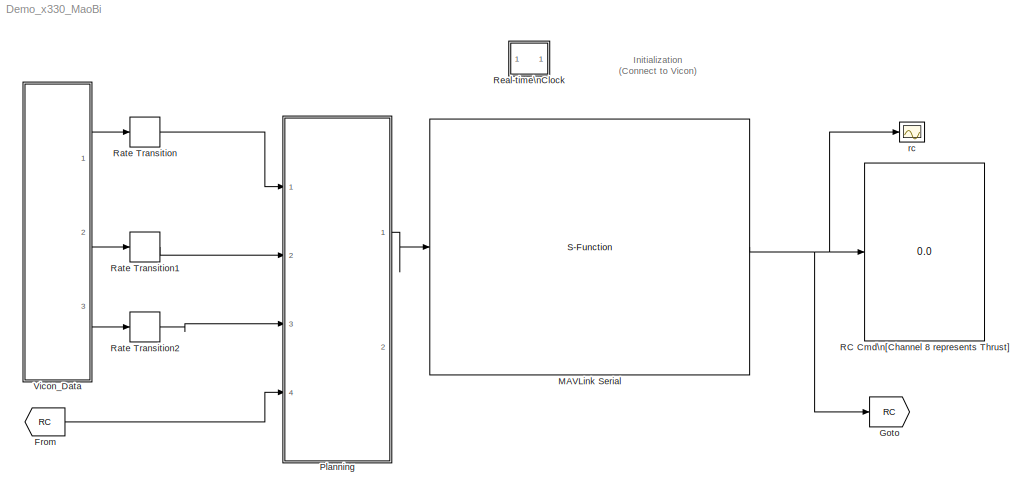
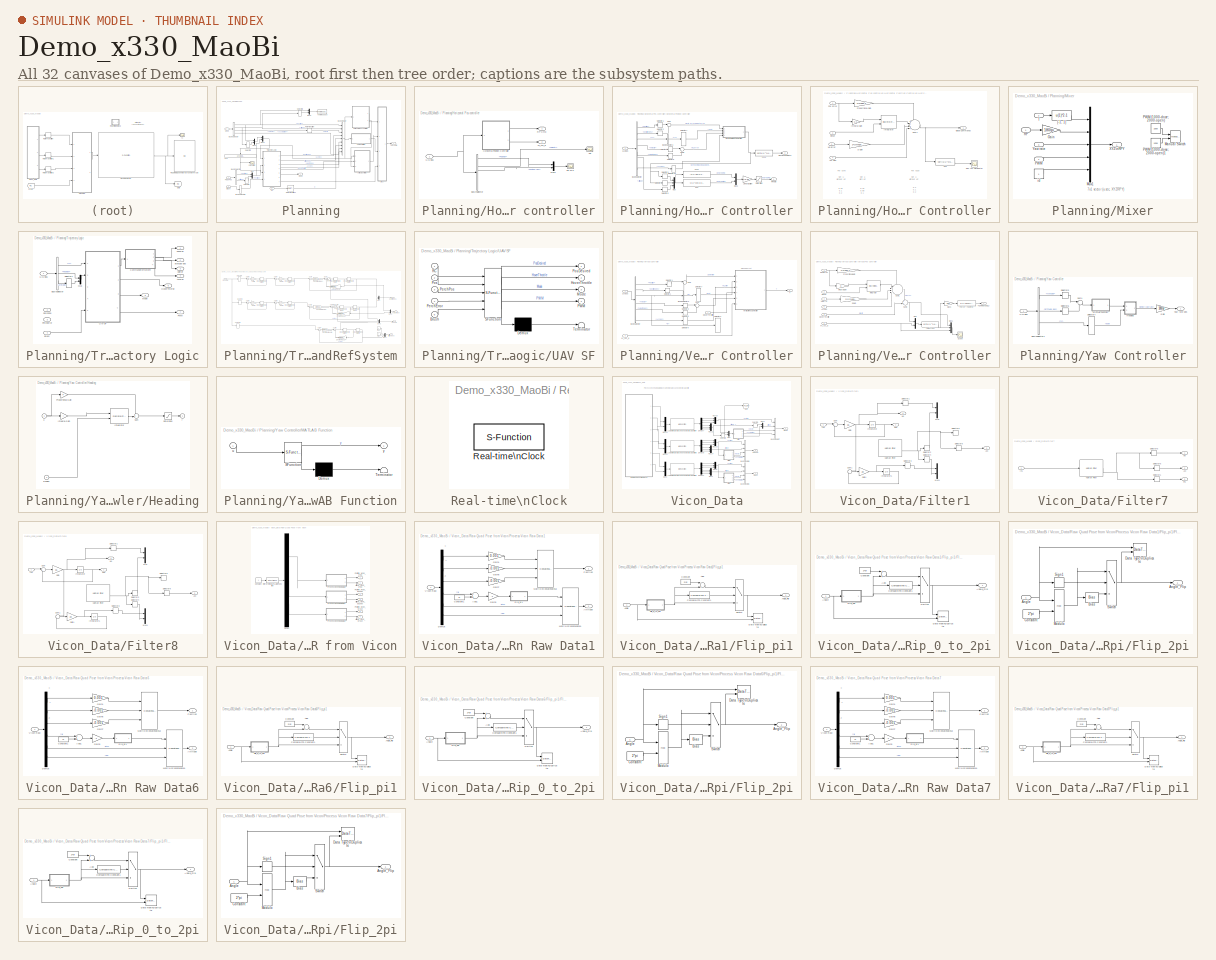
[diagram: thumbnail index - all 32 canvases of the model, root first then tree order]
MODEL Demo_x330_MaoBi
KIND model
CONFIG InitFcn = sample_time=0.005;%0.004;%0.0025;%0.02;\nDeltaT = 0.02;\ng = 9.81;\nH0 = g%0.3165;\nKl = 1;\n\nOmega_r = 2.3;%for Horizontal reference\nZeta_r = 0.7; %for Horizontal reference\nOmega = 2.3;%for Horizontal Control\nZeta = 0.5;    %for Horizontal Control\n\nOmega_h_r = 3; %for vertical reference\nZeta_h_r = 0.7;  %for vertical reference\nOmega_h = 3.2;    %for vertical control\nZeta_h = 0.7;        ...<+34ch>
BLOCK [From] From
  GotoTag = RC
  SID = 4
  TagVisibility = global
BLOCK [Goto] Goto
  GotoTag = RC
  SID = 5
  TagVisibility = global
BLOCK [S-Function] MAVLink Serial
  EnableBusSupport = off
  FunctionName = MAVLink_Interface_MultUAV
  MaskCallbackString = |||||
  MaskDisplay = % Block image\nimage(imread('10-inch Quad Heat Map.png'));\n\n%Label block\nfprintf('MAVLink Serial\\n%s\\n%dbps', COM_Port,  Baud_Rate)\n\n\n%Label input ports\n\nin = 1;\nif (Quad_1 == 1)\n    port_label('input', in, 'Quad 1');\n    in = in + 1;\nend\nif (Quad_2 == 1)\n    port_label('input', in, 'Quad 2');\n    in = in + 1;\nend\n\nif (Quad_3 == 1)\n    port_label('input', in, 'Quad 3');\n    i...<+141ch>
  MaskEnableString = on,on,on,on,on,on
  MaskIconFrame = on
  MaskIconOpaque = off
  MaskIconRotate = none
  MaskIconUnits = autoscale
  MaskInitialization = MSG_ID_NUM_INPUT = [uint8(196) uint8(197) uint8(198)];\nMSG_ID_NAME_INPUT = [Quad_1 Quad_2 Quad_3];\n\nMSG_ID_NUM_OUTPUT = [uint8(34)];\nMSG_ID_NAME_OUTPUT = [RC_SCALED];\n\nidx_input = find(MSG_ID_NAME_INPUT);\nMSG_INPUT = MSG_ID_NUM_INPUT(idx_input);\n\nidx_output = find(MSG_ID_NAME_OUTPUT);\nMSG_OUTPUT = MSG_ID_NUM_OUTPUT(idx_output);
  MaskPortRotate = default
  MaskPromptString = COM Port|Baud Rate|RC CHANNELS SCALED|Quad No 1|Quad No 2|Quad No 3
  MaskStyleString = edit,edit,checkbox,checkbox,checkbox,checkbox
  MaskTabNameString = Setting,Setting,Output Message,Input Message,Input Message,Input Message
  MaskToolTipString = on,on,on,on,on,on
  MaskTunableValueString = on,on,on,on,on,on
  MaskValueString = 'COM7'|57600|on|on|off|off
  MaskVariables = COM_Port=@1;Baud_Rate=@2;RC_SCALED=@3;Quad_1=@4;Quad_2=@5;Quad_3=@6;
  MaskVisibilityString = on,on,on,on,on,on
  Parameters = COM_Port,Baud_Rate,MSG_INPUT,MSG_OUTPUT
  Ports = [1, 1]
  SID = 54
BLOCK [SubSystem] Planning
  FunctionWithSeparateData = off
  MaskHideContents = off
  MinAlgLoopOccurrences = off
  Opaque = off
  Ports = [4, 2]
  PropExecContextOutsideSubsystem = off
  RTWSystemCode = Auto
  RequestExecContextInheritance = off
  SID = 1084
BLOCK [Inport] Planning/Brush
  IconDisplay = Port number
  Port = 3
  SID = 1752
BLOCK [BusCreator] Planning/Bus\nCreator
  DisplayOption = bar
  Inputs = 9
  Ports = [9, 1]
  SID = 2
BLOCK [BusSelector] Planning/Bus\nSelector
  OutputSignals = Position,Attitude,Velocity,Acceleration
  Ports = [1, 4]
  SID = 1083
BLOCK [BusSelector] Planning/Bus\nSelector1
  OutputSignals = Position,Attitude
  Ports = [1, 2]
  SID = 1508
BLOCK [BusSelector] Planning/Bus\nSelector2
  OutputSignals = Position,Attitude
  Ports = [1, 2]
  SID = 1754
BLOCK [Fcn] Planning/Fcn
  Expr = abs((u(6) - u(2))*cos(u(8)) - (u(5) - u(1))*sin(u(8)))
  SID = 1515
BLOCK [SubSystem] Planning/Horizontal Pos controller
  FunctionWithSeparateData = off
  MaskHideContents = off
  MinAlgLoopOccurrences = off
  Opaque = off
  Ports = [1, 2]
  PropExecContextOutsideSubsystem = off
  RTWSystemCode = Auto
  RequestExecContextInheritance = off
  SID = 6
BLOCK [BusSelector] Planning/Horizontal Pos controller/Bus\nSelector
  OutputSignals = Position,Attitude,velocity,position des,attitude des,velocity des,rc,Acc des
  Ports = [1, 8]
  SID = 8
BLOCK [SubSystem] Planning/Horizontal Pos controller/Horizontal Position Controller
  FunctionWithSeparateData = off
  MaskHideContents = off
  MinAlgLoopOccurrences = off
  Opaque = off
  Ports = [1, 2]
  PropExecContextOutsideSubsystem = off
  RTWSystemCode = Auto
  RequestExecContextInheritance = off
  SID = 9
BLOCK [BusSelector] Planning/Horizontal Pos controller/Horizontal Position Controller/Bus\nSelector
  OutputSignals = Position,position des,rc,velocity,velocity des,Attitude,Acceleration,Acc des
  Ports = [1, 8]
  SID = 11
BLOCK [BusSelector] Planning/Horizontal Pos controller/Horizontal Position Controller/Bus\nSelector3
  OutputSignals = rc
  Ports = [1, 1]
  SID = 14
BLOCK [Outport] Planning/Horizontal Pos controller/Horizontal Position Controller/Des Horizontal Acc
  IconDisplay = Port number
  Port = 2
  SID = 1669
BLOCK [Fcn] Planning/Horizontal Pos controller/Horizontal Position Controller/Fcn
  Expr = -u(1)*cos(u(3)) - u(2)*sin(u(3))
  SID = 15
BLOCK [Fcn] Planning/Horizontal Pos controller/Horizontal Position Controller/Fcn1
  Expr = -u(1)*sin(u(3)) + u(2)*cos(u(3))
  SID = 16
BLOCK [Fcn] Planning/Horizontal Pos controller/Horizontal Position Controller/Fcn2
  Expr = sqrt(u(1)^2+u(1)^2)
  SID = 1671
BLOCK [SubSystem] Planning/Horizontal Pos controller/Horizontal Position Controller/Horizontal Pos Controller
  FunctionWithSeparateData = off
  MaskHideContents = off
  MinAlgLoopOccurrences = off
  Opaque = off
  Ports = [4, 1]
  PropExecContextOutsideSubsystem = off
  RTWSystemCode = Auto
  RequestExecContextInheritance = off
  SID = 18
BLOCK [Inport] Planning/Horizontal Pos controller/Horizontal Position Controller/Horizontal Pos Controller/Acc des
  IconDisplay = Port number
  Port = 4
  SID = 454
BLOCK [Gain] Planning/Horizontal Pos controller/Horizontal Position Controller/Horizontal Pos Controller/D Gain
  Gain = 2*Omega*Zeta
  OutDataTypeStr = double
  ParamDataTypeStr = Inherit: Inherit via internal rule
  SID = 22
  SaturateOnIntegerOverflow = off
BLOCK [Fcn] Planning/Horizontal Pos controller/Horizontal Position Controller/Horizontal Pos Controller/Fcn
  Expr = sqrt(u(1)^2+u(1)^2)
  SID = 1680
BLOCK [Outport] Planning/Horizontal Pos controller/Horizontal Position Controller/Horizontal Pos Controller/Global Commands
  IconDisplay = Port number
  SID = 28
BLOCK [Gain] Planning/Horizontal Pos controller/Horizontal Position Controller/Horizontal Pos Controller/Integral Gain
  DisableCoverage = on
  Gain = 0.5
  OutDataTypeStr = double
  ParamDataTypeStr = double
  SID = 23
  SaturateOnIntegerOverflow = off
BLOCK [DiscreteIntegrator] Planning/Horizontal Pos controller/Horizontal Position Controller/Horizontal Pos Controller/Integrator
  DisableCoverage = on
  ExternalReset = rising
  ICPrevOutput = DiscIntNeverNeededParam
  ICPrevScaledInput = DiscIntNeverNeededParam
  InitialConditionMode = State only (most efficient)
  InitialConditionSource = internal
  IntegratorMethod = Integration: Trapezoidal
  LowerSaturationLimit = -10*pi/180
  OutDataTypeStr = double
  Ports = [2, 1]
  SID = 24
  SampleTime = 0.02
  UpperSaturationLimit = 10*pi/180
BLOCK [Inport] Planning/Horizontal Pos controller/Horizontal Position Controller/Horizontal Pos Controller/Pos Error
  IconDisplay = Port number
  SID = 19
BLOCK [Gain] Planning/Horizontal Pos controller/Horizontal Position Controller/Horizontal Pos Controller/Proportional Gain
  DisableCoverage = on
  Gain = Omega^2
  OutDataTypeStr = double
  ParamDataTypeStr = double
  SID = 25
  SaturateOnIntegerOverflow = off
BLOCK [Inport] Planning/Horizontal Pos controller/Horizontal Position Controller/Horizontal Pos Controller/Reset
  IconDisplay = Port number
  Port = 2
  SID = 20
BLOCK [Sum] Planning/Horizontal Pos controller/Horizontal Position Controller/Horizontal Pos Controller/Sum1
  AccumDataTypeStr = double
  DisableCoverage = on
  IconShape = round
  InputSameDT = off
  Inputs = ++++|
  OutDataTypeStr = double
  Ports = [4, 1]
  SID = 27
  SampleTime = 0.02
  SaturateOnIntegerOverflow = off
BLOCK [Inport] Planning/Horizontal Pos controller/Horizontal Position Controller/Horizontal Pos Controller/Vel Error
  IconDisplay = Port number
  Port = 3
  SID = 21
BLOCK [Scope] Planning/Horizontal Pos controller/Horizontal Position Controller/Horizontal Pos Controller/des Acc Horizontal
  DataFormat = StructureWithTime
  Floating = off
  LimitDataPoints = off
  NumInputPorts = 1
  Ports = [1]
  SID = 1681
  SampleTime = 0
  SaveName = ScopeData7
BLOCK [Gain] Planning/Horizontal Pos controller/Horizontal Position Controller/Linearization
  Gain = 1/9.81
  OutDataTypeStr = double
  ParamDataTypeStr = Inherit: Inherit via internal rule
  SID = 1543
  SaturateOnIntegerOverflow = off
BLOCK [Mux] Planning/Horizontal Pos controller/Horizontal Position Controller/Mux
  DisplayOption = bar
  Inputs = 3
  Ports = [3, 1]
  SID = 29
BLOCK [Mux] Planning/Horizontal Pos controller/Horizontal Position Controller/Mux1
  DisplayOption = bar
  Inputs = 2
  Ports = [2, 1]
  SID = 30
BLOCK [Outport] Planning/Horizontal Pos controller/Horizontal Position Controller/RP Cmd
  IconDisplay = Port number
  SID = 43
BLOCK [Saturate] Planning/Horizontal Pos controller/Horizontal Position Controller/Saturation
  InputPortMap = u0
  LowerLimit = -60*pi/180
  Ports = [1, 1]
  SID = 31
  UpperLimit = 60*pi/180
BLOCK [Selector] Planning/Horizontal Pos controller/Horizontal Position Controller/Selector1
  IndexOptions = Index vector (dialog)
  Indices = [1 2]
  InputPortWidth = 3
  OutputSizes = 1
  Ports = [1, 1]
  SID = 33
BLOCK [Selector] Planning/Horizontal Pos controller/Horizontal Position Controller/Selector10
  IndexOptions = Index vector (dialog)
  Indices = [1 2]
  InputPortWidth = 4
  OutputSizes = 1
  Ports = [1, 1]
  SID = 1533
BLOCK [Selector] Planning/Horizontal Pos controller/Horizontal Position Controller/Selector2
  IndexOptions = Index vector (dialog)
  Indices = [1 2]
  InputPortWidth = 3
  OutputSizes = 1
  Ports = [1, 1]
  SID = 34
BLOCK [Selector] Planning/Horizontal Pos controller/Horizontal Position Controller/Selector3
  IndexOptions = Index vector (dialog)
  Indices = [1]
  InputPortWidth = 2
  OutputSizes = 1
  Ports = [1, 1]
  SID = 35
BLOCK [Selector] Planning/Horizontal Pos controller/Horizontal Position Controller/Selector4
  IndexOptions = Index vector (dialog)
  Indices = [2]
  InputPortWidth = 2
  OutputSizes = 1
  Ports = [1, 1]
  SID = 36
BLOCK [Selector] Planning/Horizontal Pos controller/Horizontal Position Controller/Selector5
  IndexOptions = Index vector (dialog)
  Indices = [3]
  InputPortWidth = 3
  OutputSizes = 1
  Ports = [1, 1]
  SID = 37
BLOCK [Selector] Planning/Horizontal Pos controller/Horizontal Position Controller/Selector6
  IndexOptions = Index vector (dialog)
  Indices = [1 2]
  InputPortWidth = 3
  OutputSizes = 1
  Ports = [1, 1]
  SID = 38
BLOCK [Selector] Planning/Horizontal Pos controller/Horizontal Position Controller/Selector7
  IndexOptions = Index vector (dialog)
  Indices = [7]
  InputPortWidth = 8
  OutputSizes = 1
  Ports = [1, 1]
  SID = 39
BLOCK [Selector] Planning/Horizontal Pos controller/Horizontal Position Controller/Selector8
  IndexOptions = Index vector (dialog)
  Indices = [1 2]
  InputPortWidth = 3
  OutputSizes = 1
  Ports = [1, 1]
  SID = 40
BLOCK [Sum] Planning/Horizontal Pos controller/Horizontal Position Controller/Sum
  IconShape = round
  InputSameDT = off
  Inputs = |-+
  OutDataTypeStr = Inherit: Inherit via internal rule
  Ports = [2, 1]
  SID = 41
  SaturateOnIntegerOverflow = off
BLOCK [Sum] Planning/Horizontal Pos controller/Horizontal Position Controller/Sum1
  IconShape = round
  InputSameDT = off
  Inputs = |-+
  OutDataTypeStr = Inherit: Inherit via internal rule
  Ports = [2, 1]
  SID = 42
  SaturateOnIntegerOverflow = off
BLOCK [Inport] Planning/Horizontal Pos controller/Horizontal Position Controller/UAV Bus
  IconDisplay = Port number
  SID = 10
BLOCK [Mux] Planning/Horizontal Pos controller/Mux1
  DisplayOption = bar
  Inputs = 2
  Ports = [2, 1]
  SID = 531
BLOCK [Scope] Planning/Horizontal Pos controller/Pd VS P
  DataFormat = StructureWithTime
  Floating = off
  LimitDataPoints = off
  NumInputPorts = 1
  Ports = [1]
  SID = 532
  SampleTime = 0
  SaveName = ScopeData16
  TimeRange = 10
  YMax = 3.5
  YMin = -1.5
BLOCK [Outport] Planning/Horizontal Pos controller/RP Cmd
  IconDisplay = Port number
  SID = 53
BLOCK [Inport] Planning/Horizontal Pos controller/UAV Bus
  IconDisplay = Port number
  SID = 7
BLOCK [Scope] Planning/Horizontal Pos controller/Vel
  DataFormat = StructureWithTime
  Floating = off
  LimitDataPoints = off
  NumInputPorts = 1
  Ports = [1]
  SID = 1546
  SampleTime = 0
  SaveName = ScopeData5
  TimeRange = 10
  YMax = 3
  YMin = -3.5
BLOCK [Outport] Planning/Horizontal Pos controller/XY_Acc_d
  IconDisplay = Port number
  Port = 2
  SID = 1672
BLOCK [SubSystem] Planning/Mixer
  FunctionWithSeparateData = off
  MaskHideContents = off
  MinAlgLoopOccurrences = off
  Opaque = off
  Ports = [4, 1]
  PropExecContextOutsideSubsystem = off
  RTWSystemCode = Auto
  RequestExecContextInheritance = off
  SID = 60
BLOCK [Gain] Planning/Mixer/Gain
  Gain = 180/pi
  OutDataTypeStr = Inherit: Inherit via internal rule
  ParamDataTypeStr = Inherit: Inherit via internal rule
  SID = 1540
  SaturateOnIntegerOverflow = off
BLOCK [Reference] Planning/Mixer/Manual Switch  REF=simulink/Signal\nRouting/Manual Switch
  FunctionWithSeparateData = off
  GeneratePreprocessorConditionals = off
  Ports = [2, 1]
  RTWMemSecDataConstants = Inherit from model
  RTWMemSecDataInternal = Inherit from model
  RTWMemSecDataParameters = Inherit from model
  RTWMemSecFuncExecute = Inherit from model
  RTWMemSecFuncInitTerm = Inherit from model
  SID = 1434
  ShowPortLabels = FromPortIcon
  SourceBlock = simulink/Signal\nRouting/Manual Switch
  SourceType = Manual Switch
  SystemSampleTime = -1
  action = 0
  sw = 1
  varsize = off
BLOCK [Mux] Planning/Mixer/Mux1
  DisplayOption = bar
  Inputs = 5
  Ports = [5, 1]
  SID = 64
BLOCK [Inport] Planning/Mixer/PWM
  IconDisplay = Port number
  Port = 4
  SID = 1437
BLOCK [Constant] Planning/Mixer/PWM (1000-close; 2000-open)
  SID = 621
  SampleTime = 0.02
  Value = 1600
BLOCK [Constant] Planning/Mixer/PWM (1000-close; 2000-open)1
  SID = 1435
  SampleTime = 0.02
  Value = 1200
BLOCK [Inport] Planning/Mixer/RP
  IconDisplay = Port number
  SID = 61
BLOCK [Inport] Planning/Mixer/T
  IconDisplay = Port number
  Port = 2
  SID = 62
BLOCK [Outport] Planning/Mixer/XYZ\nRPY
  IconDisplay = Port number
  SID = 68
BLOCK [Inport] Planning/Mixer/Yaw rate
  IconDisplay = Port number
  Port = 3
  SID = 63
BLOCK [Fcn] Planning/Mixer/[-1, 1]
  Expr = u(1)*2-1
  SID = 1612
BLOCK [Constant] Planning/Mixer/id
  SID = 67
  SampleTime = 0.02
BLOCK [Outport] Planning/Mode
  IconDisplay = Port number
  Port = 2
  SID = 1089
BLOCK [Mux] Planning/Mux
  DisplayOption = bar
  Inputs = 2
  Ports = [2, 1]
  SID = 1509
BLOCK [Mux] Planning/Mux1
  DisplayOption = bar
  Inputs = 2
  Ports = [2, 1]
  SID = 1512
BLOCK [Mux] Planning/Mux2
  DisplayOption = bar
  Inputs = 2
  Ports = [2, 1]
  SID = 1514
BLOCK [Mux] Planning/Mux3
  DisplayOption = bar
  Inputs = 2
  Ports = [2, 1]
  SID = 1759
BLOCK [Scope] Planning/Perch Error
  DataFormat = StructureWithTime
  Floating = off
  LimitDataPoints = off
  NumInputPorts = 1
  Ports = [1]
  SID = 1516
  SampleTime = 0
  SaveName = ScopeData2
  TimeRange = 10
  YMax = 0.3
  YMin = 1.38778e-017
  ZoomMode = yonly
BLOCK [Inport] Planning/Perch Pos
  IconDisplay = Port number
  Port = 2
  SID = 1088
BLOCK [Inport] Planning/RC
  IconDisplay = Port number
  Port = 4
  SID = 1090
BLOCK [RateTransition] Planning/Rate Transition
  OutPortSampleTime = 0.02
  SID = 56
BLOCK [RateTransition] Planning/Rate Transition1
  OutPortSampleTime = 0.02
  SID = 57
BLOCK [Selector] Planning/Selector1
  IndexOptions = Index vector (dialog)
  Indices = [3]
  InputPortWidth = 3
  OutputSizes = 1
  Ports = [1, 1]
  SID = 1510
BLOCK [Selector] Planning/Selector2
  IndexOptions = Index vector (dialog)
  Indices = [3]
  InputPortWidth = 3
  OutputSizes = 1
  Ports = [1, 1]
  SID = 1513
BLOCK [Selector] Planning/Selector3
  IndexOptions = Index vector (dialog)
  Indices = [3]
  InputPortWidth = 3
  OutputSizes = 1
  Ports = [1, 1]
  SID = 1760
BLOCK [Outport] Planning/TRPY Cmd
  IconDisplay = Port number
  SID = 1086
BLOCK [ToWorkspace] Planning/To Workspace
  MaxDataPoints = inf
  Ports = [1]
  SID = 1761
  SampleTime = 0.02
  SaveFormat = Structure With Time
  VariableName = MB
BLOCK [SubSystem] Planning/Trajectory Logic
  FunctionWithSeparateData = off
  MaskHideContents = off
  MinAlgLoopOccurrences = off
  Opaque = off
  Ports = [4, 7]
  PropExecContextOutsideSubsystem = off
  RTWSystemCode = Auto
  RequestExecContextInheritance = off
  SID = 573
BLOCK [Outport] Planning/Trajectory Logic/AccRef
  IconDisplay = Port number
  Port = 4
  SID = 577
BLOCK [Inport] Planning/Trajectory Logic/Brush
  IconDisplay = Port number
  Port = 4
  SID = 1683
BLOCK [BusSelector] Planning/Trajectory Logic/Bus\nSelector
  OutputSignals = rc,Position,Attitude
  Ports = [1, 3]
  SID = 583
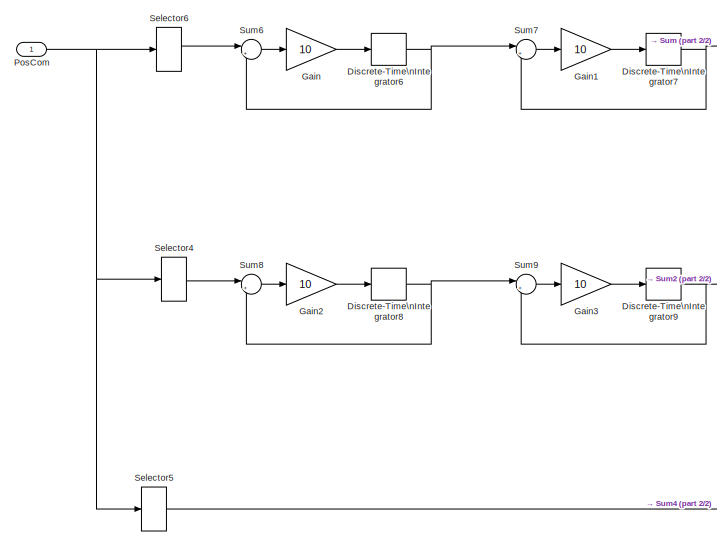
[diagram: Planning/Trajectory Logic/CommandRefSystem - part 1/2, left side, full height]
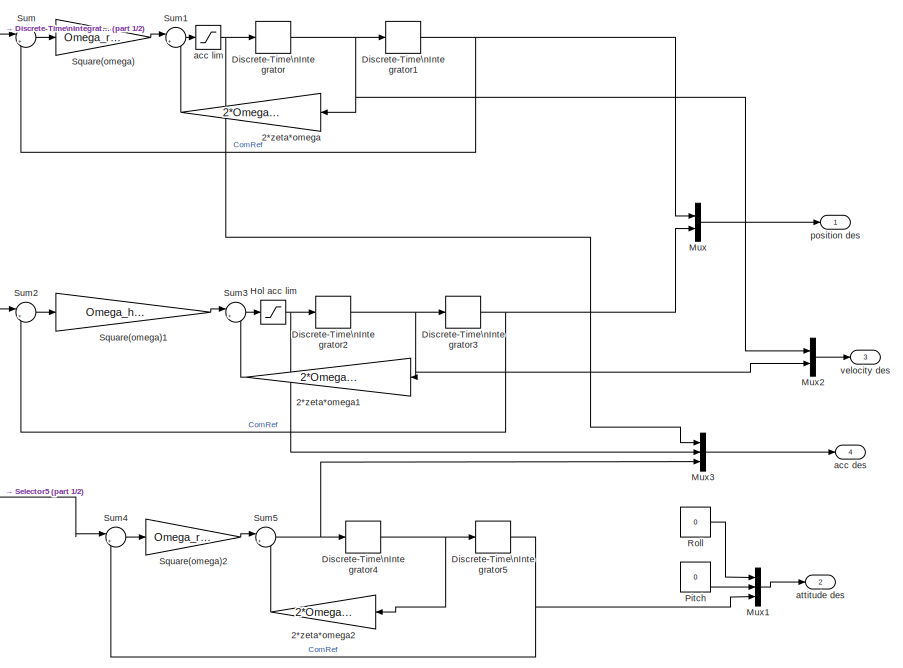
[diagram: Planning/Trajectory Logic/CommandRefSystem - part 2/2, right side, full height]
BLOCK [SubSystem] Planning/Trajectory Logic/CommandRefSystem
  FunctionWithSeparateData = off
  MaskHideContents = off
  MinAlgLoopOccurrences = off
  Opaque = off
  Ports = [1, 4]
  PropExecContextOutsideSubsystem = off
  RTWSystemCode = Auto
  RequestExecContextInheritance = off
  SID = 561
BLOCK [Gain] Planning/Trajectory Logic/CommandRefSystem/2*zeta*omega
  Gain = 2*Omega_r*Zeta_r
  OutDataTypeStr = Inherit: Inherit via internal rule
  ParamDataTypeStr = Inherit: Inherit via internal rule
  SID = 563
  SaturateOnIntegerOverflow = off
BLOCK [Gain] Planning/Trajectory Logic/CommandRefSystem/2*zeta*omega1
  Gain = 2*Omega_h_r*Zeta_h_r
  OutDataTypeStr = Inherit: Inherit via internal rule
  ParamDataTypeStr = Inherit: Inherit via internal rule
  SID = 1624
  SaturateOnIntegerOverflow = off
BLOCK [Gain] Planning/Trajectory Logic/CommandRefSystem/2*zeta*omega2
  Gain = 2*Omega_r
  OutDataTypeStr = Inherit: Inherit via internal rule
  ParamDataTypeStr = Inherit: Inherit via internal rule
  SID = 1632
  SaturateOnIntegerOverflow = off
BLOCK [DiscreteIntegrator] Planning/Trajectory Logic/CommandRefSystem/Discrete-Time\nIntegrator
  ExternalReset = none
  ICPrevOutput = DiscIntNeverNeededParam
  ICPrevScaledInput = DiscIntNeverNeededParam
  InitialConditionSource = internal
  IntegratorMethod = Integration: Forward Euler
  Ports = [1, 1]
  SID = 601
  SampleTime = 0.02
BLOCK [DiscreteIntegrator] Planning/Trajectory Logic/CommandRefSystem/Discrete-Time\nIntegrator1
  ExternalReset = none
  ICPrevOutput = DiscIntNeverNeededParam
  ICPrevScaledInput = DiscIntNeverNeededParam
  InitialConditionSource = internal
  IntegratorMethod = Integration: Forward Euler
  Ports = [1, 1]
  SID = 602
  SampleTime = 0.02
BLOCK [DiscreteIntegrator] Planning/Trajectory Logic/CommandRefSystem/Discrete-Time\nIntegrator2
  ExternalReset = none
  ICPrevOutput = DiscIntNeverNeededParam
  ICPrevScaledInput = DiscIntNeverNeededParam
  InitialConditionSource = internal
  IntegratorMethod = Integration: Forward Euler
  Ports = [1, 1]
  SID = 1625
  SampleTime = 0.02
BLOCK [DiscreteIntegrator] Planning/Trajectory Logic/CommandRefSystem/Discrete-Time\nIntegrator3
  ExternalReset = none
  ICPrevOutput = DiscIntNeverNeededParam
  ICPrevScaledInput = DiscIntNeverNeededParam
  InitialConditionSource = internal
  IntegratorMethod = Integration: Forward Euler
  Ports = [1, 1]
  SID = 1626
  SampleTime = 0.02
BLOCK [DiscreteIntegrator] Planning/Trajectory Logic/CommandRefSystem/Discrete-Time\nIntegrator4
  ExternalReset = none
  ICPrevOutput = DiscIntNeverNeededParam
  ICPrevScaledInput = DiscIntNeverNeededParam
  InitialConditionSource = internal
  IntegratorMethod = Integration: Forward Euler
  Ports = [1, 1]
  SID = 1633
  SampleTime = 0.02
BLOCK [DiscreteIntegrator] Planning/Trajectory Logic/CommandRefSystem/Discrete-Time\nIntegrator5
  ExternalReset = none
  ICPrevOutput = DiscIntNeverNeededParam
  ICPrevScaledInput = DiscIntNeverNeededParam
  InitialConditionSource = internal
  IntegratorMethod = Integration: Forward Euler
  Ports = [1, 1]
  SID = 1634
  SampleTime = 0.02
BLOCK [DiscreteIntegrator] Planning/Trajectory Logic/CommandRefSystem/Discrete-Time\nIntegrator6
  ExternalReset = none
  ICPrevOutput = DiscIntNeverNeededParam
  ICPrevScaledInput = DiscIntNeverNeededParam
  InitialConditionSource = internal
  IntegratorMethod = Integration: Forward Euler
  Ports = [1, 1]
  SID = 1659
  SampleTime = 0.02
BLOCK [DiscreteIntegrator] Planning/Trajectory Logic/CommandRefSystem/Discrete-Time\nIntegrator7
  ExternalReset = none
  ICPrevOutput = DiscIntNeverNeededParam
  ICPrevScaledInput = DiscIntNeverNeededParam
  InitialConditionSource = internal
  IntegratorMethod = Integration: Forward Euler
  Ports = [1, 1]
  SID = 1660
  SampleTime = 0.02
BLOCK [DiscreteIntegrator] Planning/Trajectory Logic/CommandRefSystem/Discrete-Time\nIntegrator8
  ExternalReset = none
  ICPrevOutput = DiscIntNeverNeededParam
  ICPrevScaledInput = DiscIntNeverNeededParam
  InitialConditionSource = internal
  IntegratorMethod = Integration: Forward Euler
  Ports = [1, 1]
  SID = 1663
  SampleTime = 0.02
BLOCK [DiscreteIntegrator] Planning/Trajectory Logic/CommandRefSystem/Discrete-Time\nIntegrator9
  ExternalReset = none
  ICPrevOutput = DiscIntNeverNeededParam
  ICPrevScaledInput = DiscIntNeverNeededParam
  InitialConditionSource = internal
  IntegratorMethod = Integration: Forward Euler
  Ports = [1, 1]
  SID = 1664
  SampleTime = 0.02
BLOCK [Gain] Planning/Trajectory Logic/CommandRefSystem/Gain
  Gain = 10
  OutDataTypeStr = Inherit: Inherit via internal rule
  ParamDataTypeStr = Inherit: Inherit via internal rule
  SID = 1656
  SaturateOnIntegerOverflow = off
BLOCK [Gain] Planning/Trajectory Logic/CommandRefSystem/Gain1
  Gain = 10
  OutDataTypeStr = Inherit: Inherit via internal rule
  ParamDataTypeStr = Inherit: Inherit via internal rule
  SID = 1661
  SaturateOnIntegerOverflow = off
BLOCK [Gain] Planning/Trajectory Logic/CommandRefSystem/Gain2
  Gain = 10
  OutDataTypeStr = Inherit: Inherit via internal rule
  ParamDataTypeStr = Inherit: Inherit via internal rule
  SID = 1665
  SaturateOnIntegerOverflow = off
BLOCK [Gain] Planning/Trajectory Logic/CommandRefSystem/Gain3
  Gain = 10
  OutDataTypeStr = Inherit: Inherit via internal rule
  ParamDataTypeStr = Inherit: Inherit via internal rule
  SID = 1666
  SaturateOnIntegerOverflow = off
BLOCK [Saturate] Planning/Trajectory Logic/CommandRefSystem/Hol acc lim
  InputPortMap = u0
  LowerLimit = -4
  Ports = [1, 1]
  SID = 1631
  UpperLimit = 4
BLOCK [Mux] Planning/Trajectory Logic/CommandRefSystem/Mux
  DisplayOption = bar
  Inputs = 2
  Ports = [2, 1]
  SID = 1642
BLOCK [Mux] Planning/Trajectory Logic/CommandRefSystem/Mux1
  DisplayOption = bar
  Inputs = 3
  Ports = [3, 1]
  SID = 1646
BLOCK [Mux] Planning/Trajectory Logic/CommandRefSystem/Mux2
  DisplayOption = bar
  Inputs = 2
  Ports = [2, 1]
  SID = 1649
BLOCK [Mux] Planning/Trajectory Logic/CommandRefSystem/Mux3
  DisplayOption = bar
  Inputs = 3
  Ports = [3, 1]
  SID = 1650
BLOCK [Constant] Planning/Trajectory Logic/CommandRefSystem/Pitch
  SID = 1647
  SampleTime = 0.02
  Value = 0
BLOCK [Inport] Planning/Trajectory Logic/CommandRefSystem/PosCom
  IconDisplay = Port number
  SID = 562
BLOCK [Constant] Planning/Trajectory Logic/CommandRefSystem/Roll
  SID = 1648
  SampleTime = 0.02
  Value = 0
BLOCK [Selector] Planning/Trajectory Logic/CommandRefSystem/Selector4
  IndexOptions = Index vector (dialog)
  Indices = [3]
  InputPortWidth = 4
  OutputSizes = 1
  Ports = [1, 1]
  SID = 1615
BLOCK [Selector] Planning/Trajectory Logic/CommandRefSystem/Selector5
  IndexOptions = Index vector (dialog)
  Indices = [4]
  InputPortWidth = 4
  OutputSizes = 1
  Ports = [1, 1]
  SID = 1636
BLOCK [Selector] Planning/Trajectory Logic/CommandRefSystem/Selector6
  IndexOptions = Index vector (dialog)
  Indices = [1 2]
  InputPortWidth = 4
  OutputSizes = 1
  Ports = [1, 1]
  SID = 1641
BLOCK [Gain] Planning/Trajectory Logic/CommandRefSystem/Square(omega)
  Gain = Omega_r^2
  OutDataTypeStr = Inherit: Inherit via internal rule
  ParamDataTypeStr = Inherit: Inherit via internal rule
  SID = 566
  SaturateOnIntegerOverflow = off
BLOCK [Gain] Planning/Trajectory Logic/CommandRefSystem/Square(omega)1
  Gain = Omega_h_r^2
  OutDataTypeStr = Inherit: Inherit via internal rule
  ParamDataTypeStr = Inherit: Inherit via internal rule
  SID = 1627
  SaturateOnIntegerOverflow = off
BLOCK [Gain] Planning/Trajectory Logic/CommandRefSystem/Square(omega)2
  Gain = Omega_r^2
  OutDataTypeStr = Inherit: Inherit via internal rule
  ParamDataTypeStr = Inherit: Inherit via internal rule
  SID = 1637
  SaturateOnIntegerOverflow = off
BLOCK [Sum] Planning/Trajectory Logic/CommandRefSystem/Sum
  IconShape = round
  InputSameDT = off
  Inputs = |+-
  OutDataTypeStr = Inherit: Inherit via internal rule
  Ports = [2, 1]
  SID = 567
  SaturateOnIntegerOverflow = off
BLOCK [Sum] Planning/Trajectory Logic/CommandRefSystem/Sum1
  IconShape = round
  InputSameDT = off
  Inputs = |+-
  OutDataTypeStr = Inherit: Inherit via internal rule
  Ports = [2, 1]
  SID = 568
  SaturateOnIntegerOverflow = off
BLOCK [Sum] Planning/Trajectory Logic/CommandRefSystem/Sum2
  IconShape = round
  InputSameDT = off
  Inputs = |+-
  OutDataTypeStr = Inherit: Inherit via internal rule
  Ports = [2, 1]
  SID = 1628
  SaturateOnIntegerOverflow = off
BLOCK [Sum] Planning/Trajectory Logic/CommandRefSystem/Sum3
  IconShape = round
  InputSameDT = off
  Inputs = |+-
  OutDataTypeStr = Inherit: Inherit via internal rule
  Ports = [2, 1]
  SID = 1629
  SaturateOnIntegerOverflow = off
BLOCK [Sum] Planning/Trajectory Logic/CommandRefSystem/Sum4
  IconShape = round
  InputSameDT = off
  Inputs = |+-
  OutDataTypeStr = Inherit: Inherit via internal rule
  Ports = [2, 1]
  SID = 1638
  SaturateOnIntegerOverflow = off
BLOCK [Sum] Planning/Trajectory Logic/CommandRefSystem/Sum5
  IconShape = round
  InputSameDT = off
  Inputs = |+-
  OutDataTypeStr = Inherit: Inherit via internal rule
  Ports = [2, 1]
  SID = 1639
  SaturateOnIntegerOverflow = off
BLOCK [Sum] Planning/Trajectory Logic/CommandRefSystem/Sum6
  IconShape = round
  InputSameDT = off
  Inputs = |+-
  OutDataTypeStr = Inherit: Inherit via internal rule
  Ports = [2, 1]
  SID = 1658
  SaturateOnIntegerOverflow = off
BLOCK [Sum] Planning/Trajectory Logic/CommandRefSystem/Sum7
  IconShape = round
  InputSameDT = off
  Inputs = |+-
  OutDataTypeStr = Inherit: Inherit via internal rule
  Ports = [2, 1]
  SID = 1662
  SaturateOnIntegerOverflow = off
BLOCK [Sum] Planning/Trajectory Logic/CommandRefSystem/Sum8
  IconShape = round
  InputSameDT = off
  Inputs = |+-
  OutDataTypeStr = Inherit: Inherit via internal rule
  Ports = [2, 1]
  SID = 1667
  SaturateOnIntegerOverflow = off
BLOCK [Sum] Planning/Trajectory Logic/CommandRefSystem/Sum9
  IconShape = round
  InputSameDT = off
  Inputs = |+-
  OutDataTypeStr = Inherit: Inherit via internal rule
  Ports = [2, 1]
  SID = 1668
  SaturateOnIntegerOverflow = off
BLOCK [Outport] Planning/Trajectory Logic/CommandRefSystem/acc des
  IconDisplay = Port number
  Port = 4
  SID = 571
BLOCK [Saturate] Planning/Trajectory Logic/CommandRefSystem/acc lim
  InputPortMap = u0
  LowerLimit = -5
  Ports = [1, 1]
  SID = 1548
  UpperLimit = 5
BLOCK [Outport] Planning/Trajectory Logic/CommandRefSystem/attitude des
  IconDisplay = Port number
  Port = 2
  SID = 589
BLOCK [Outport] Planning/Trajectory Logic/CommandRefSystem/position des
  IconDisplay = Port number
  SID = 569
BLOCK [Outport] Planning/Trajectory Logic/CommandRefSystem/velocity des
  IconDisplay = Port number
  Port = 3
  SID = 570
BLOCK [Outport] Planning/Trajectory Logic/HoverThrottle
  IconDisplay = Port number
  Port = 5
  SID = 579
BLOCK [Outport] Planning/Trajectory Logic/Mode
  IconDisplay = Port number
  Port = 6
  SID = 581
BLOCK [Mux] Planning/Trajectory Logic/Mux
  DisplayOption = bar
  Inputs = 2
  Ports = [2, 1]
  SID = 593
BLOCK [Outport] Planning/Trajectory Logic/PWM
  IconDisplay = Port number
  Port = 7
  SID = 1436
BLOCK [Inport] Planning/Trajectory Logic/PerchError
  IconDisplay = Port number
  Port = 3
  SID = 1517
BLOCK [Inport] Planning/Trajectory Logic/PerchPos
  IconDisplay = Port number
  Port = 2
  SID = 580
BLOCK [Outport] Planning/Trajectory Logic/PosRef
  IconDisplay = Port number
  SID = 574
BLOCK [Selector] Planning/Trajectory Logic/Selector1
  IndexOptions = Index vector (dialog)
  Indices = [3]
  InputPortWidth = 3
  OutputSizes = 1
  Ports = [1, 1]
  SID = 592
BLOCK [Inport] Planning/Trajectory Logic/UAV Bus
  IconDisplay = Port number
  SID = 582
BLOCK [SubSystem] Planning/Trajectory Logic/UAV SF
  ErrorFcn = Stateflow.Translate.translate
  FunctionWithSeparateData = off
  MaskDescription = Stateflow diagram
  MaskDisplay = plot(sf('Private','sfblk','xIcon'),sf('Private','sfblk','yIcon'));text(0.5,0,sf('Private', 'sfblk', 'tIcon'),'HorizontalAl','Center','VerticalAl','Bottom');
  MaskHideContents = off
  MaskIconFrame = off
  MaskIconOpaque = off
  MaskIconRotate = none
  MaskIconUnits = autoscale
  MaskPortRotate = default
  MaskSelfModifiable = on
  MaskType = Stateflow
  MinAlgLoopOccurrences = off
  Opaque = off
  PermitHierarchicalResolution = ExplicitOnly
  Ports = [5, 4]
  PropExecContextOutsideSubsystem = off
  RTWSystemCode = Auto
  RequestExecContextInheritance = off
  SID = 572
  TreatAsAtomicUnit = on
BLOCK [Demux] Planning/Trajectory Logic/UAV SF/ Demux 
  Outputs = 1
  Ports = [1, 1]
  SID = 572::8
BLOCK [S-Function] Planning/Trajectory Logic/UAV SF/ SFunction 
  EnableBusSupport = on
  FunctionName = sf_sfun
  Parameters = DeltaT,H0,Kl,PI
  PortCounts = [5 5]
  Ports = [5, 5]
  SID = 572::7
  Tag = Stateflow S-Function Demo_x330_MaoBi 3
BLOCK [Terminator] Planning/Trajectory Logic/UAV SF/ Terminator 
  SID = 572::37
BLOCK [Inport] Planning/Trajectory Logic/UAV SF/Brush
  IconDisplay = Port number
  Port = 5
  SID = 572::41
BLOCK [Outport] Planning/Trajectory Logic/UAV SF/HoverThrottle
  IconDisplay = Port number
  Port = 2
  SID = 572::17
BLOCK [Outport] Planning/Trajectory Logic/UAV SF/Mode
  IconDisplay = Port number
  Port = 3
  SID = 572::18
BLOCK [Outport] Planning/Trajectory Logic/UAV SF/PWM
  IconDisplay = Port number
  Port = 4
  SID = 572::35
BLOCK [Inport] Planning/Trajectory Logic/UAV SF/PerchError
  IconDisplay = Port number
  Port = 4
  SID = 572::36
BLOCK [Inport] Planning/Trajectory Logic/UAV SF/PerchPos
  IconDisplay = Port number
  Port = 3
  SID = 572::23
BLOCK [Inport] Planning/Trajectory Logic/UAV SF/Pos
  IconDisplay = Port number
  Port = 2
  SID = 572::20
BLOCK [Outport] Planning/Trajectory Logic/UAV SF/PosDesired
  IconDisplay = Port number
  SID = 572::16
BLOCK [Inport] Planning/Trajectory Logic/UAV SF/RC
  IconDisplay = Port number
  SID = 572::19
BLOCK [Outport] Planning/Trajectory Logic/VelRef
  IconDisplay = Port number
  Port = 3
  SID = 575
BLOCK [Outport] Planning/Trajectory Logic/attitude des
  IconDisplay = Port number
  Port = 2
  SID = 591
BLOCK [SubSystem] Planning/Vertical Controller
  FunctionWithSeparateData = off
  MaskHideContents = off
  MinAlgLoopOccurrences = off
  Opaque = off
  Ports = [3, 1]
  PropExecContextOutsideSubsystem = off
  RTWSystemCode = Auto
  RequestExecContextInheritance = off
  SID = 124
BLOCK [BusSelector] Planning/Vertical Controller/Bus\nSelector
  OutputSignals = Position,position des,rc,velocity,velocity des,Acc des
  Ports = [1, 6]
  SID = 126
BLOCK [BusSelector] Planning/Vertical Controller/Bus\nSelector3
  OutputSignals = rc
  Ports = [1, 1]
  SID = 411
BLOCK [Inport] Planning/Vertical Controller/Hover Throttle
  IconDisplay = Port number
  Port = 2
  SID = 598
BLOCK [Selector] Planning/Vertical Controller/Selector1
  IndexOptions = Index vector (dialog)
  Indices = [3]
  InputPortWidth = 3
  OutputSizes = 1
  Ports = [1, 1]
  SID = 430
BLOCK [Selector] Planning/Vertical Controller/Selector2
  IndexOptions = Index vector (dialog)
  Indices = [1]
  InputPortWidth = 8
  OutputSizes = 1
  Ports = [1, 1]
  SID = 127
BLOCK [Selector] Planning/Vertical Controller/Selector3
  IndexOptions = Index vector (dialog)
  Indices = [3]
  InputPortWidth = 3
  OutputSizes = 1
  Ports = [1, 1]
  SID = 431
BLOCK [Selector] Planning/Vertical Controller/Selector4
  IndexOptions = Index vector (dialog)
  Indices = [3]
  InputPortWidth = 3
  OutputSizes = 1
  Ports = [1, 1]
  SID = 423
BLOCK [Selector] Planning/Vertical Controller/Selector5
  IndexOptions = Index vector (dialog)
  Indices = [3]
  InputPortWidth = 3
  OutputSizes = 1
  Ports = [1, 1]
  SID = 432
BLOCK [Selector] Planning/Vertical Controller/Selector6
  IndexOptions = Index vector (dialog)
  Indices = [3]
  InputPortWidth = 4
  OutputSizes = 1
  Ports = [1, 1]
  SID = 1614
BLOCK [Selector] Planning/Vertical Controller/Selector7
  IndexOptions = Index vector (dialog)
  Indices = [7]
  InputPortWidth = 8
  OutputSizes = 1
  Ports = [1, 1]
  SID = 426
BLOCK [Sum] Planning/Vertical Controller/Sum
  IconShape = round
  InputSameDT = off
  Inputs = |-+
  OutDataTypeStr = Inherit: Inherit via internal rule
  Ports = [2, 1]
  SID = 428
  SaturateOnIntegerOverflow = off
BLOCK [Sum] Planning/Vertical Controller/Sum1
  IconShape = round
  InputSameDT = off
  Inputs = |-+
  OutDataTypeStr = Inherit: Inherit via internal rule
  Ports = [2, 1]
  SID = 429
  SaturateOnIntegerOverflow = off
BLOCK [Outport] Planning/Vertical Controller/T
  IconDisplay = Port number
  SID = 128
BLOCK [Inport] Planning/Vertical Controller/UAV bus
  IconDisplay = Port number
  SID = 125
BLOCK [SubSystem] Planning/Vertical Controller/Verticall Pos Controller
  FunctionWithSeparateData = off
  MaskHideContents = off
  MinAlgLoopOccurrences = off
  Opaque = off
  Ports = [6, 1]
  PropExecContextOutsideSubsystem = off
  RTWSystemCode = Auto
  RequestExecContextInheritance = off
  SID = 412
BLOCK [Inport] Planning/Vertical Controller/Verticall Pos Controller/Acc des
  IconDisplay = Port number
  Port = 5
  SID = 1613
BLOCK [Gain] Planning/Vertical Controller/Verticall Pos Controller/D Gain
  Gain = 2*Omega_h*Zeta_h
  OutDataTypeStr = double
  ParamDataTypeStr = Inherit: Inherit via internal rule
  SID = 416
  SaturateOnIntegerOverflow = off
BLOCK [Fcn] Planning/Vertical Controller/Verticall Pos Controller/Force --> Control
  Expr = u(1)*0.0297 + 0.1485
  SID = 1674
BLOCK [Inport] Planning/Vertical Controller/Verticall Pos Controller/Hover Throttle
  IconDisplay = Port number
  Port = 4
  SID = 597
BLOCK [Gain] Planning/Vertical Controller/Verticall Pos Controller/Integral Gain
  DisableCoverage = on
  OutDataTypeStr = double
  ParamDataTypeStr = double
  SID = 417
  SaturateOnIntegerOverflow = off
BLOCK [DiscreteIntegrator] Planning/Vertical Controller/Verticall Pos Controller/Integrator
  DisableCoverage = on
  ExternalReset = rising
  ICPrevOutput = DiscIntNeverNeededParam
  ICPrevScaledInput = DiscIntNeverNeededParam
  InitialConditionMode = State only (most efficient)
  InitialConditionSource = internal
  IntegratorMethod = Integration: Trapezoidal
  LowerSaturationLimit = -0.3
  OutDataTypeStr = double
  Ports = [2, 1]
  SID = 418
  SampleTime = -1
  UpperSaturationLimit = 0.3
BLOCK [Gain] Planning/Vertical Controller/Verticall Pos Controller/Mass
  DisableCoverage = on
  Gain = 0.65
  OutDataTypeStr = double
  ParamDataTypeStr = double
  SID = 1654
  SaturateOnIntegerOverflow = off
BLOCK [Mux] Planning/Vertical Controller/Verticall Pos Controller/Mux
  DisplayOption = bar
  Inputs = 2
  Ports = [2, 1]
  SID = 1677
BLOCK [Mux] Planning/Vertical Controller/Verticall Pos Controller/Mux1
  DisplayOption = bar
  Inputs = 3
  Ports = [3, 1]
  SID = 1682
BLOCK [Inport] Planning/Vertical Controller/Verticall Pos Controller/Pos Error
  IconDisplay = Port number
  SID = 413
BLOCK [Gain] Planning/Vertical Controller/Verticall Pos Controller/Proportional Gain
  DisableCoverage = on
  Gain = Omega_h^2
  OutDataTypeStr = double
  ParamDataTypeStr = double
  SID = 419
  SaturateOnIntegerOverflow = off
BLOCK [Inport] Planning/Vertical Controller/Verticall Pos Controller/Reset
  IconDisplay = Port number
  Port = 2
  SID = 414
BLOCK [Scope] Planning/Vertical Controller/Verticall Pos Controller/Scope
  DataFormat = StructureWithTime
  Floating = off
  LimitDataPoints = off
  NumInputPorts = 1
  Ports = [1]
  SID = 1679
  SampleTime = 0
  SaveName = ScopeData6
  YMax = 20
  YMin = -15
BLOCK [Sum] Planning/Vertical Controller/Verticall Pos Controller/Sum1
  AccumDataTypeStr = double
  DisableCoverage = on
  IconShape = round
  InputSameDT = off
  Inputs = ----|
  OutDataTypeStr = double
  Ports = [4, 1]
  SID = 421
  SampleTime = 0.02
  SaturateOnIntegerOverflow = off
BLOCK [Sum] Planning/Vertical Controller/Verticall Pos Controller/Sum2
  AccumDataTypeStr = double
  DisableCoverage = on
  IconShape = round
  InputSameDT = off
  Inputs = ++|
  OutDataTypeStr = double
  Ports = [2, 1]
  SID = 524
  SampleTime = 0.02
  SaturateOnIntegerOverflow = off
BLOCK [Outport] Planning/Vertical Controller/Verticall Pos Controller/T  Commands [0, 1]
  IconDisplay = Port number
  SID = 422
BLOCK [Fcn] Planning/Vertical Controller/Verticall Pos Controller/Total Acc des
  Expr = sqrt(u(1)^2+u(2)^2)
  SID = 1678
BLOCK [Inport] Planning/Vertical Controller/Verticall Pos Controller/Vel Error
  IconDisplay = Port number
  Port = 3
  SID = 415
BLOCK [Inport] Planning/Vertical Controller/Verticall Pos Controller/XY_Acc_d
  IconDisplay = Port number
  Port = 6
  SID = 1673
BLOCK [Inport] Planning/Vertical Controller/XY_Acc_d
  IconDisplay = Port number
  Port = 3
  SID = 1539
BLOCK [Inport] Planning/Vicon
  IconDisplay = Port number
  SID = 1085
BLOCK [SubSystem] Planning/Yaw Controller
  FunctionWithSeparateData = off
  MaskHideContents = off
  MinAlgLoopOccurrences = off
  Opaque = off
  Ports = [1, 1]
  PropExecContextOutsideSubsystem = off
  RTWSystemCode = Auto
  RequestExecContextInheritance = off
  SID = 328
BLOCK [BusSelector] Planning/Yaw Controller/Bus\nSelector1
  OutputSignals = Attitude,attitude des,rc
  Ports = [1, 3]
  SID = 330
BLOCK [Gain] Planning/Yaw Controller/Gain
  Gain = 180/pi
  OutDataTypeStr = Inherit: Inherit via internal rule
  ParamDataTypeStr = Inherit: Inherit via internal rule
  SID = 333
  SaturateOnIntegerOverflow = off
BLOCK [SubSystem] Planning/Yaw Controller/Heading
  AncestorBlock = simulink/Continuous/PID Controller
  DeleteFcn = pidpack.PIDConfig.closeTuner(gcbh)
  DialogController = pidpack.PIDConfig.pidDDGCreate
  DialogControllerArgs = DataTag0
  FunctionWithSeparateData = off
  MaskCallbackString = |||||||||||||||||||||||||||||||||||||||||||||||||||||||||||||||||||||||||||||||||||||||||||||||||||||
  MaskCapabilities = slmaskedcaps(gcbh)
  MaskDescription = This block implements continuous- and discrete-time PID control algorithms and includes advanced features such as anti-windup, external reset, and signal tracking. You can tune the PID gains automatically using the 'Tune...' button (requires Simulink Control Design).
  MaskDisplay = disp('PI(z)')\nport_label('input',1, '');\nport_label('output',1, '');plot([0 4 4 7]+2,[0 0 8 8]+8);\nplot([1 4 6]+2,[3 6 3]+8);\nplot([0 4 6 10]+32,[0 0 8 8]+18);\n
  MaskEnableString = on,on,on,on,on,on,on,on,on,on,on,on,on,on,on,on,on,off,off,off,off,off,on,off,on,on,on,on,on,on,on,on,on,on,on,on,on,on,on,on,on,on,on,on,on,on,on,on,on,on,on,on,on,on,on,on,on,on,on,on,on,on,on,on,on,on,on,on,on,on,on,on,on,on,on,on,on,on,on,on,on,on,on,on,on,on,on,on,on,on,on,on,on,on,off,off,off,on,on,off,off,off
  MaskHideContents = off
  MaskIconFrame = on
  MaskIconOpaque = on
  MaskIconRotate = none
  MaskIconUnits = pixels
  MaskInitialization = pidpack.PIDConfig.configPID(gcbh);
  MaskPortRotate = default
  MaskPromptString = Controller:|Time domain:|Sample time (-1 for inherited):|Integrator method:|Filter method:|Form:|Proportional (P):|Integral (I):|Derivative (D):|Filter coefficient (N):|Source:|Integrator:|Filter:|External reset:|Ignore reset when linearizing|Enable zero-crossing detection|Limit output|Upper saturation limit:|Lower saturation limit:|Ignore saturation when linearizing|Anti-windup method:|Back-calcu...<+1875ch>
  MaskRunInitForIconRedraw = on
  MaskSelfModifiable = on
  MaskStyleString = popup(PID|PI|PD|P|I),popup(Continuous-time|Discrete-time),edit,popup(Forward Euler|Backward Euler|Trapezoidal),popup(Forward Euler|Backward Euler|Trapezoidal),popup(Ideal|Parallel),edit,edit,edit,edit,popup(internal|external),edit,edit,popup(none|rising|falling|either|level),checkbox,checkbox,checkbox,edit,edit,checkbox,popup(none|back-calculation|clamping),edit,checkbox,edit,popup(Ceiling|Converg...<+6354ch>
  MaskToolTipString = on,on,on,on,on,on,on,on,on,on,on,on,on,on,on,on,on,on,on,on,on,on,on,on,on,on,on,on,on,on,on,on,on,on,on,on,on,on,on,on,on,on,on,on,on,on,on,on,on,on,on,on,on,on,on,on,on,on,on,on,on,on,on,on,on,on,on,on,on,on,on,on,on,on,on,on,on,on,on,on,on,on,on,on,on,on,on,on,on,on,on,on,on,on,on,on,on,on,on,on,on,on
  MaskTunableValueString = off,off,off,off,off,off,on,on,on,on,off,off,off,off,off,off,off,off,off,off,off,on,off,on,off,off,off,off,off,off,off,off,off,off,off,off,off,off,off,off,off,off,off,off,off,off,off,off,off,off,off,off,off,off,off,off,off,off,off,off,off,off,off,off,off,off,off,off,off,off,off,off,off,off,off,off,off,off,off,off,off,off,off,off,off,off,off,off,off,off,off,off,off,off,off,off,off,off,off,off,off,of...<+1ch>
  MaskType = PID 1dof
  MaskValueString = PI|Discrete-time|0.02|Trapezoidal|Trapezoidal|Parallel|3|1|0|100|internal|0|0|rising|off|on|on|300*pi/180|-300*pi/180|off|none|1|off|1|Floor|off|off|[]|[]|Inherit: Inherit via internal rule|[]|[]|Inherit: Inherit via internal rule|[]|[]|Inherit: Inherit via internal rule|[]|[]|Inherit: Inherit via internal rule|[]|[]|Inherit: Inherit via internal rule|[]|[]|Inherit: Inherit via internal rule|[]|[]...<+759ch>
  MaskVariables = Controller=&1;TimeDomain=&2;SampleTime=@3;IntegratorMethod=&4;FilterMethod=&5;Form=&6;P=@7;I=@8;D=@9;N=@10;InitialConditionSource=&11;InitialConditionForIntegrator=@12;InitialConditionForFilter=@13;ExternalReset=&14;IgnoreLimit=&15;ZeroCross=&16;LimitOutput=&17;UpperSaturationLimit=@18;LowerSaturationLimit=@19;LinearizeAsGain=&20;AntiWindupMode=&21;Kb=@22;TrackingMode=&23;Kt=@24;RndMeth=&25;Satura...<+1582ch>
  MaskVisibilityString = on,on,off,off,off,on,on,on,on,on,on,on,on,on,on,on,on,on,on,on,on,off,on,on,on,on,on,on,on,on,on,on,on,on,on,on,on,on,on,off,off,off,off,off,off,on,on,on,on,on,on,on,on,on,on,on,on,off,off,off,off,off,off,off,off,off,off,off,off,on,on,on,off,off,off,off,off,off,off,off,off,on,on,on,on,off,off,off,on,off,off,off,on,off,off,off,off,on,off,off,off,off
  MinAlgLoopOccurrences = off
  ModelCloseFcn = pidpack.PIDConfig.closeTuner(gcbh)
  NameChangeFcn = pidpack.PIDConfig.updateTunerName(gcbh)
  Opaque = off
  Ports = [2, 1]
  PropExecContextOutsideSubsystem = off
  RTWSystemCode = Auto
  RequestExecContextInheritance = off
  SID = 334
BLOCK [Gain] Planning/Yaw Controller/Heading/Integral Gain
  DisableCoverage = on
  Gain = I
  OutDataTypeStr = IOutDataTypeStr
  OutMax = IOutMax
  OutMin = IOutMin
  ParamDataTypeStr = IParamDataTypeStr
  ParamMax = IParamMax
  ParamMin = IParamMin
  SID = 334:1680
  SaturateOnIntegerOverflow = off
BLOCK [DiscreteIntegrator] Planning/Yaw Controller/Heading/Integrator
  DisableCoverage = on
  ExternalReset = rising
  ICPrevOutput = DiscIntNeverNeededParam
  ICPrevScaledInput = DiscIntNeverNeededParam
  InitialCondition = InitialConditionForIntegrator
  InitialConditionMode = State only (most efficient)
  InitialConditionSource = internal
  IntegratorMethod = Integration: Trapezoidal
  OutDataTypeStr = IntegratorOutDataTypeStr
  OutMax = IntegratorOutMax
  OutMin = IntegratorOutMin
  Ports = [2, 1]
  SID = 334:1681
  SampleTime = -1
BLOCK [Gain] Planning/Yaw Controller/Heading/Proportional Gain
  DisableCoverage = on
  Gain = P
  OutDataTypeStr = POutDataTypeStr
  OutMax = POutMax
  OutMin = POutMin
  ParamDataTypeStr = PParamDataTypeStr
  ParamMax = PParamMax
  ParamMin = PParamMin
  SID = 334:1679
  SaturateOnIntegerOverflow = off
BLOCK [Inport] Planning/Yaw Controller/Heading/RESET
  IconDisplay = Port number
  Port = 2
  SID = 334:1677
  SampleTime = SampleTime
BLOCK [Saturate] Planning/Yaw Controller/Heading/Saturation
  InputPortMap = u0
  LinearizeAsGain = off
  LowerLimit = LowerSaturationLimit
  OutDataTypeStr = SaturationOutDataTypeStr
  OutMax = SaturationOutMax
  OutMin = SaturationOutMin
  Ports = [1, 1]
  SID = 334:1682
  UpperLimit = UpperSaturationLimit
BLOCK [Sum] Planning/Yaw Controller/Heading/Sum
  AccumDataTypeStr = SumAccumDataTypeStr
  DisableCoverage = on
  IconShape = round
  InputSameDT = off
  Inputs = ++|
  OutDataTypeStr = SumOutDataTypeStr
  OutMax = SumOutMax
  OutMin = SumOutMin
  Ports = [2, 1]
  SID = 334:1678
  SaturateOnIntegerOverflow = off
BLOCK [Inport] Planning/Yaw Controller/Heading/u
  IconDisplay = Port number
  SID = 334:1
  SampleTime = SampleTime
BLOCK [Outport] Planning/Yaw Controller/Heading/y
  IconDisplay = Port number
  InitialOutput = 0
  SID = 334:10
BLOCK [SubSystem] Planning/Yaw Controller/MATLAB Function
  ErrorFcn = Stateflow.Translate.translate
  FunctionWithSeparateData = off
  MaskDescription = Embedded MATLAB block
  MaskDisplay = bgColor = Simulink.Root.ColorString2Rgb(get_param(gcbh, 'BackgroundColor')); image(imread('private/eml_membrane_16.png','png','BackgroundColor',bgColor(1:3)),'center'); disp([10 10 'fcn']);
  MaskHideContents = off
  MaskIconFrame = on
  MaskIconOpaque = off
  MaskIconRotate = none
  MaskIconUnits = normalized
  MaskPortRotate = default
  MaskSelfModifiable = on
  MaskType = Stateflow
  MinAlgLoopOccurrences = off
  Opaque = off
  PermitHierarchicalResolution = ExplicitOnly
  Ports = [1, 1]
  PropExecContextOutsideSubsystem = off
  RTWSystemCode = Auto
  RequestExecContextInheritance = off
  SID = 335
  TreatAsAtomicUnit = on
BLOCK [Demux] Planning/Yaw Controller/MATLAB Function/ Demux 
  Outputs = 1
  Ports = [1, 1]
  SID = 335::15
BLOCK [S-Function] Planning/Yaw Controller/MATLAB Function/ SFunction 
  EnableBusSupport = on
  FunctionName = sf_sfun
  PortCounts = [1 2]
  Ports = [1, 2]
  SID = 335::14
  Tag = Stateflow S-Function Demo_x330_MaoBi 1
BLOCK [Terminator] Planning/Yaw Controller/MATLAB Function/ Terminator 
  SID = 335::17
BLOCK [Inport] Planning/Yaw Controller/MATLAB Function/u
  IconDisplay = Port number
  SID = 335::1
BLOCK [Outport] Planning/Yaw Controller/MATLAB Function/y
  IconDisplay = Port number
  SID = 335::5
BLOCK [Selector] Planning/Yaw Controller/Selector5
  IndexOptions = Index vector (dialog)
  Indices = [3]
  InputPortWidth = 3
  OutputSizes = 1
  Ports = [1, 1]
  SID = 336
BLOCK [Selector] Planning/Yaw Controller/Selector6
  IndexOptions = Index vector (dialog)
  Indices = [3]
  InputPortWidth = 3
  OutputSizes = 1
  Ports = [1, 1]
  SID = 337
BLOCK [Selector] Planning/Yaw Controller/Selector7
  IndexOptions = Index vector (dialog)
  Indices = [5]
  InputPortWidth = 8
  OutputSizes = 1
  Ports = [1, 1]
  SID = 338
BLOCK [Sum] Planning/Yaw Controller/Sum1
  IconShape = round
  InputSameDT = off
  Inputs = |-+
  OutDataTypeStr = Inherit: Inherit via internal rule
  Ports = [2, 1]
  SID = 339
  SaturateOnIntegerOverflow = off
BLOCK [Inport] Planning/Yaw Controller/UAV Bus
  IconDisplay = Port number
  SID = 329
BLOCK [Outport] Planning/Yaw Controller/Yaw rate des
  IconDisplay = Port number
  SID = 340
BLOCK [Display] RC Cmd\n[Channel 8 represents Thrust]
  Decimation = 1
  Lockdown = off
  Ports = [1]
  SID = 55
BLOCK [RateTransition] Rate Transition
  OutPortSampleTime = 0.02
  SID = 1518
BLOCK [RateTransition] Rate Transition1
  OutPortSampleTime = 0.02
  SID = 1519
BLOCK [RateTransition] Rate Transition2
  OutPortSampleTime = 0.02
  SID = 1751
BLOCK [SubSystem] Real-time\nClock
  FunctionWithSeparateData = off
  MaskCallbackString = |
  MaskDescription = Real-time Synchronization Block
  MaskDisplay = plot(0,0,100,100,[40,60,60,54,54,64,69,76,82,77,81,83,83,81,78,74,70,64,57,49,41,35,32,30,30,31,34,40,47,47,40,40],[90,90,85,85,80,79,76,87,80,70,64,57,49,41,33,28,24,22,21,23,25,31,37,46,56,65,73,78,80,85,85,90],[69,53,53],[64,50,73])
  MaskEnableString = on,on
  MaskHelp = This block synchronizes simulation time with the PC real-time clock or UNIX system clock. The first dialog entry is the period at which the clock is checked to insure real-time synchronization. The second dialog entry is the number of seconds that the simulation time must be within real-time before a warning is printed.
  MaskHideContents = off
  MaskIconFrame = on
  MaskIconOpaque = on
  MaskIconRotate = none
  MaskIconUnits = autoscale
  MaskPortRotate = default
  MaskPromptString = Synchronize with real-time every n seconds:|Real-time warning tolerance (seconds):
  MaskStyleString = edit,edit
  MaskToolTipString = on,on
  MaskTunableValueString = on,on
  MaskType = Real-time Clock
  MaskValueString = 0.02|1
  MaskVariables = sample_time=@1;tolerance=@2;
  MaskVisibilityString = on,on
  MinAlgLoopOccurrences = off
  Opaque = off
  Ports = []
  PropExecContextOutsideSubsystem = off
  RTWSystemCode = Auto
  RequestExecContextInheritance = off
  SID = 607
  ShowPortLabels = none
BLOCK [S-Function] Real-time\nClock/Real-time\nClock
  EnableBusSupport = off
  FunctionName = rtclock
  Parameters = sample_time, tolerance
  Ports = []
  SID = 608
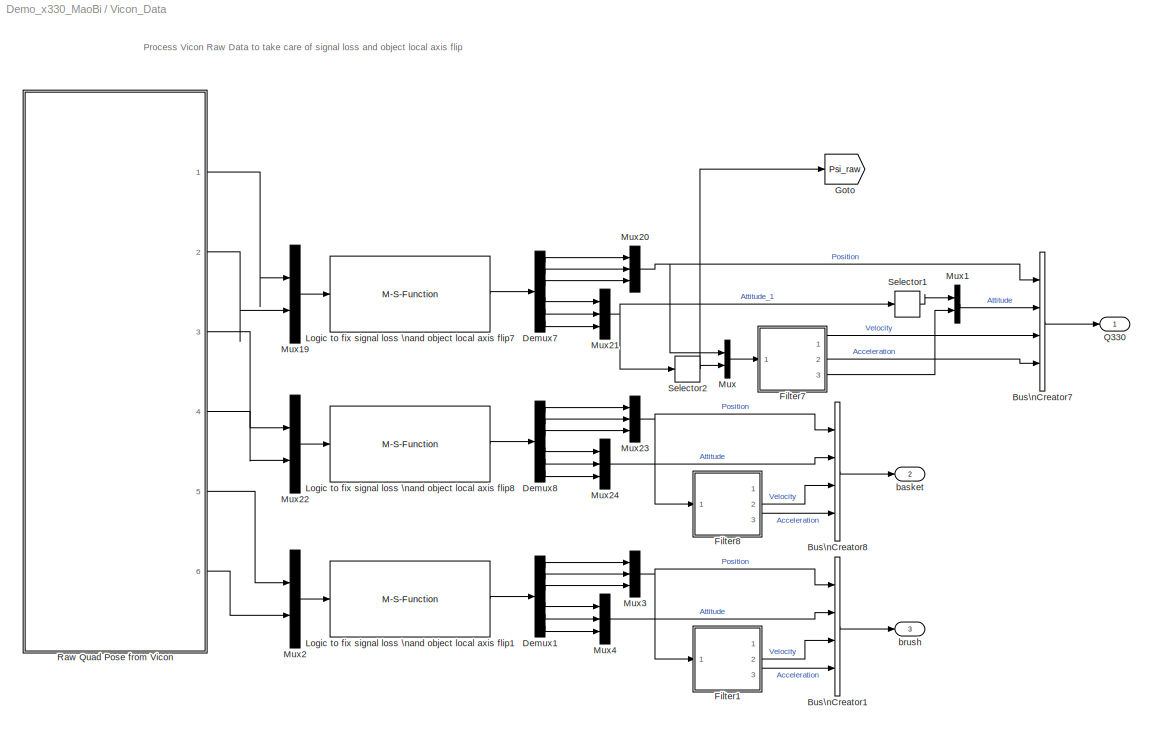
BLOCK [SubSystem] Vicon_Data
  FunctionWithSeparateData = off
  MaskHideContents = off
  MinAlgLoopOccurrences = off
  Opaque = off
  Ports = [0, 3]
  PropExecContextOutsideSubsystem = off
  RTWSystemCode = Auto
  RequestExecContextInheritance = off
  SID = 622
BLOCK [BusCreator] Vicon_Data/Bus\nCreator1
  DisplayOption = bar
  Ports = [4, 1]
  SID = 1724
BLOCK [BusCreator] Vicon_Data/Bus\nCreator7
  DisplayOption = bar
  Ports = [4, 1]
  SID = 1404
BLOCK [BusCreator] Vicon_Data/Bus\nCreator8
  DisplayOption = bar
  Ports = [4, 1]
  SID = 1479
BLOCK [Demux] Vicon_Data/Demux1
  DisplayOption = bar
  Outputs = 6
  Ports = [1, 6]
  SID = 1725
BLOCK [Demux] Vicon_Data/Demux7
  DisplayOption = bar
  Outputs = 6
  Ports = [1, 6]
  SID = 1405
BLOCK [Demux] Vicon_Data/Demux8
  DisplayOption = bar
  Outputs = 6
  Ports = [1, 6]
  SID = 1480
BLOCK [SubSystem] Vicon_Data/Filter1
  FunctionWithSeparateData = off
  MaskHideContents = off
  MinAlgLoopOccurrences = off
  Opaque = off
  Ports = [1, 3]
  PropExecContextOutsideSubsystem = off
  RTWSystemCode = Auto
  RequestExecContextInheritance = off
  SID = 1726
BLOCK [Outport] Vicon_Data/Filter1/Acc
  IconDisplay = Port number
  Port = 3
  SID = 1745
BLOCK [Gain] Vicon_Data/Filter1/Gain
  Gain = 15
  OutDataTypeStr = Inherit: Inherit via internal rule
  ParamDataTypeStr = Inherit: Inherit via internal rule
  SID = 1728
  SaturateOnIntegerOverflow = off
BLOCK [Gain] Vicon_Data/Filter1/Gain1
  Gain = 20
  OutDataTypeStr = Inherit: Inherit via internal rule
  ParamDataTypeStr = Inherit: Inherit via internal rule
  SID = 1729
  SaturateOnIntegerOverflow = off
BLOCK [Inport] Vicon_Data/Filter1/In1
  IconDisplay = Port number
  SID = 1727
BLOCK [Integrator] Vicon_Data/Filter1/Integrator
  Ports = [1, 1]
  SID = 1730
BLOCK [Integrator] Vicon_Data/Filter1/Integrator1
  Ports = [1, 1]
  SID = 1731
BLOCK [Reference] Vicon_Data/Filter1/Kalman Filter  REF=dspadpt3/Kalman Filter
  A = [1 sample_time sample_time*sample_time/2 zeros(1,6);0 1 sample_time zeros(1,6);0 0 1 zeros(1,6);0 0 0 1 sample_time sample_time*sample_time/2 0 0 0;zeros(1,4) 1 sample_time zeros(1,3);zeros(1,5) 1 zeros(1,3);zeros(1,6) 1 sample_time sample_time*sample_time/2;zeros(1,7) 1 sample_time;zeros(1,8) 1]
  FunctionWithSeparateData = off
  GeneratePreprocessorConditionals = off
  H = [1 zeros(1,8); zeros(1,3) 1 zeros(1,5);zeros(1,6) 1 0 0]
  P = zeros(9)
  Ports = [1, 2]
  Q = diag([0 0.001 0.001 0 0.001 0.001 0 0.001 0.001])
  R = 0.001*eye(3)
  RTWMemSecDataConstants = Inherit from model
  RTWMemSecDataInternal = Inherit from model
  RTWMemSecDataParameters = Inherit from model
  RTWMemSecFuncExecute = Inherit from model
  RTWMemSecFuncInitTerm = Inherit from model
  SID = 1732
  ShowPortLabels = FromPortIcon
  SourceBlock = dspadpt3/Kalman Filter
  SourceType = Kalman Filter
  SystemSampleTime = -1
  X = zeros([9, 1])
  isOutputEstError = off
  isOutputEstMeasure = on
  isOutputEstState = on
  isOutputPrdError = off
  isOutputPrdMeasure = off
  isOutputPrdState = off
  isReset = on
  num_targets = 1
  sourceEnable = Always
  sourceMeasure = Specify via Dialog
BLOCK [Mux] Vicon_Data/Filter1/Mux
  DisplayOption = bar
  Inputs = 2
  Ports = [2, 1]
  SID = 1733
BLOCK [Mux] Vicon_Data/Filter1/Mux1
  DisplayOption = bar
  Inputs = 2
  Ports = [2, 1]
  SID = 1734
BLOCK [Outport] Vicon_Data/Filter1/Pos
  IconDisplay = Port number
  SID = 1743
BLOCK [Selector] Vicon_Data/Filter1/Selector1
  IndexOptions = Index vector (dialog)
  Indices = [2]
  InputPortWidth = 3
  OutputSizes = 1
  Ports = [1, 1]
  SID = 1735
BLOCK [Selector] Vicon_Data/Filter1/Selector2
  IndexOptions = Index vector (dialog)
  Indices = [5]
  InputPortWidth = 9
  OutputSizes = 1
  Ports = [1, 1]
  SID = 1736
BLOCK [Selector] Vicon_Data/Filter1/Selector3
  IndexOptions = Index vector (dialog)
  Indices = [2]
  InputPortWidth = 3
  OutputSizes = 1
  Ports = [1, 1]
  SID = 1737
BLOCK [Selector] Vicon_Data/Filter1/Selector4
  IndexOptions = Index vector (dialog)
  Indices = [6]
  InputPortWidth = 9
  OutputSizes = 1
  Ports = [1, 1]
  SID = 1738
BLOCK [Selector] Vicon_Data/Filter1/Selector5
  IndexOptions = Index vector (dialog)
  Indices = [2 5 8]
  InputPortWidth = 9
  OutputSizes = 1
  Ports = [1, 1]
  SID = 1739
BLOCK [Selector] Vicon_Data/Filter1/Selector6
  IndexOptions = Index vector (dialog)
  Indices = [3 6 9]
  InputPortWidth = 9
  OutputSizes = 1
  Ports = [1, 1]
  SID = 1740
BLOCK [Sum] Vicon_Data/Filter1/Sum
  IconShape = round
  InputSameDT = off
  Inputs = |+-
  OutDataTypeStr = Inherit: Inherit via internal rule
  Ports = [2, 1]
  SID = 1741
  SaturateOnIntegerOverflow = off
BLOCK [Sum] Vicon_Data/Filter1/Sum1
  IconShape = round
  InputSameDT = off
  Inputs = |+-
  OutDataTypeStr = Inherit: Inherit via internal rule
  Ports = [2, 1]
  SID = 1742
  SaturateOnIntegerOverflow = off
BLOCK [Outport] Vicon_Data/Filter1/Vel
  IconDisplay = Port number
  Port = 2
  SID = 1744
BLOCK [SubSystem] Vicon_Data/Filter7
  FunctionWithSeparateData = off
  MaskHideContents = off
  MinAlgLoopOccurrences = off
  Opaque = off
  Ports = [1, 3]
  PropExecContextOutsideSubsystem = off
  RTWSystemCode = Auto
  RequestExecContextInheritance = off
  SID = 1406
BLOCK [Outport] Vicon_Data/Filter7/Acc
  IconDisplay = Port number
  Port = 2
  SID = 1425
BLOCK [Inport] Vicon_Data/Filter7/In1
  IconDisplay = Port number
  SID = 1407
BLOCK [Reference] Vicon_Data/Filter7/Kalman Filter  REF=dspadpt3/Kalman Filter
  A = [1 sample_time sample_time*sample_time/2 zeros(1,9);0 1 sample_time zeros(1,9);0 0 1 zeros(1,9);0 0 0 1 sample_time sample_time*sample_time/2 zeros(1,6);zeros(1,4) 1 sample_time zeros(1,6);zeros(1,5) 1 zeros(1,6);zeros(1,6) 1 sample_time sample_time*sample_time/2 zeros(1,3);zeros(1,7) 1 sample_time zeros(1,3);zeros(1,8) 1 zeros(1,3);zeros(1,9) 1 sample_time sample_time*sample_time/2;zeros(1,10) 1 ...<+27ch>
  FunctionWithSeparateData = off
  GeneratePreprocessorConditionals = off
  H = [1 zeros(1,11); zeros(1,3) 1 zeros(1,8);zeros(1,6) 1 zeros(1,5);zeros(1,9) 1 0 0]
  P = zeros(12)
  Ports = [1, 1]
  Q = diag([0 0.001 0.001 0 0.001 0.001 0 0.001 0.001 0 0.001 0.001]);
  R = diag([0.001 0.001 0.001 0.05])
  RTWMemSecDataConstants = Inherit from model
  RTWMemSecDataInternal = Inherit from model
  RTWMemSecDataParameters = Inherit from model
  RTWMemSecFuncExecute = Inherit from model
  RTWMemSecFuncInitTerm = Inherit from model
  SID = 1412
  ShowPortLabels = FromPortIcon
  SourceBlock = dspadpt3/Kalman Filter
  SourceType = Kalman Filter
  SystemSampleTime = -1
  X = zeros([12, 1])
  isOutputEstError = off
  isOutputEstMeasure = off
  isOutputEstState = on
  isOutputPrdError = off
  isOutputPrdMeasure = off
  isOutputPrdState = off
  isReset = on
  num_targets = 1
  sourceEnable = Always
  sourceMeasure = Specify via Dialog
BLOCK [Outport] Vicon_Data/Filter7/Psi
  IconDisplay = Port number
  Port = 3
  SID = 1580
BLOCK [Selector] Vicon_Data/Filter7/Selector1
  IndexOptions = Index vector (dialog)
  Indices = [10]
  InputPortWidth = 12
  OutputSizes = 1
  Ports = [1, 1]
  SID = 1579
BLOCK [Selector] Vicon_Data/Filter7/Selector5
  IndexOptions = Index vector (dialog)
  Indices = [2 5 8]
  InputPortWidth = 12
  OutputSizes = 1
  Ports = [1, 1]
  SID = 1419
BLOCK [Selector] Vicon_Data/Filter7/Selector6
  IndexOptions = Index vector (dialog)
  Indices = [3 6 9]
  InputPortWidth = 12
  OutputSizes = 1
  Ports = [1, 1]
  SID = 1420
BLOCK [Outport] Vicon_Data/Filter7/Vel
  IconDisplay = Port number
  SID = 1424
BLOCK [SubSystem] Vicon_Data/Filter8
  FunctionWithSeparateData = off
  MaskHideContents = off
  MinAlgLoopOccurrences = off
  Opaque = off
  Ports = [1, 3]
  PropExecContextOutsideSubsystem = off
  RTWSystemCode = Auto
  RequestExecContextInheritance = off
  SID = 1481
BLOCK [Outport] Vicon_Data/Filter8/Acc
  IconDisplay = Port number
  Port = 3
  SID = 1500
BLOCK [Gain] Vicon_Data/Filter8/Gain
  Gain = 15
  OutDataTypeStr = Inherit: Inherit via internal rule
  ParamDataTypeStr = Inherit: Inherit via internal rule
  SID = 1483
  SaturateOnIntegerOverflow = off
BLOCK [Gain] Vicon_Data/Filter8/Gain1
  Gain = 20
  OutDataTypeStr = Inherit: Inherit via internal rule
  ParamDataTypeStr = Inherit: Inherit via internal rule
  SID = 1484
  SaturateOnIntegerOverflow = off
BLOCK [Inport] Vicon_Data/Filter8/In1
  IconDisplay = Port number
  SID = 1482
BLOCK [Integrator] Vicon_Data/Filter8/Integrator
  Ports = [1, 1]
  SID = 1485
BLOCK [Integrator] Vicon_Data/Filter8/Integrator1
  Ports = [1, 1]
  SID = 1486
BLOCK [Reference] Vicon_Data/Filter8/Kalman Filter  REF=dspadpt3/Kalman Filter
  A = [1 sample_time sample_time*sample_time/2 zeros(1,6);0 1 sample_time zeros(1,6);0 0 1 zeros(1,6);0 0 0 1 sample_time sample_time*sample_time/2 0 0 0;zeros(1,4) 1 sample_time zeros(1,3);zeros(1,5) 1 zeros(1,3);zeros(1,6) 1 sample_time sample_time*sample_time/2;zeros(1,7) 1 sample_time;zeros(1,8) 1]
  FunctionWithSeparateData = off
  GeneratePreprocessorConditionals = off
  H = [1 zeros(1,8); zeros(1,3) 1 zeros(1,5);zeros(1,6) 1 0 0]
  P = zeros(9)
  Ports = [1, 2]
  Q = diag([0 0.001 0.001 0 0.001 0.001 0 0.001 0.001])
  R = 0.001*eye(3)
  RTWMemSecDataConstants = Inherit from model
  RTWMemSecDataInternal = Inherit from model
  RTWMemSecDataParameters = Inherit from model
  RTWMemSecFuncExecute = Inherit from model
  RTWMemSecFuncInitTerm = Inherit from model
  SID = 1487
  ShowPortLabels = FromPortIcon
  SourceBlock = dspadpt3/Kalman Filter
  SourceType = Kalman Filter
  SystemSampleTime = -1
  X = zeros([9, 1])
  isOutputEstError = off
  isOutputEstMeasure = on
  isOutputEstState = on
  isOutputPrdError = off
  isOutputPrdMeasure = off
  isOutputPrdState = off
  isReset = on
  num_targets = 1
  sourceEnable = Always
  sourceMeasure = Specify via Dialog
BLOCK [Mux] Vicon_Data/Filter8/Mux
  DisplayOption = bar
  Inputs = 2
  Ports = [2, 1]
  SID = 1488
BLOCK [Mux] Vicon_Data/Filter8/Mux1
  DisplayOption = bar
  Inputs = 2
  Ports = [2, 1]
  SID = 1489
BLOCK [Outport] Vicon_Data/Filter8/Pos
  IconDisplay = Port number
  SID = 1498
BLOCK [Selector] Vicon_Data/Filter8/Selector1
  IndexOptions = Index vector (dialog)
  Indices = [2]
  InputPortWidth = 3
  OutputSizes = 1
  Ports = [1, 1]
  SID = 1490
BLOCK [Selector] Vicon_Data/Filter8/Selector2
  IndexOptions = Index vector (dialog)
  Indices = [5]
  InputPortWidth = 9
  OutputSizes = 1
  Ports = [1, 1]
  SID = 1491
BLOCK [Selector] Vicon_Data/Filter8/Selector3
  IndexOptions = Index vector (dialog)
  Indices = [2]
  InputPortWidth = 3
  OutputSizes = 1
  Ports = [1, 1]
  SID = 1492
BLOCK [Selector] Vicon_Data/Filter8/Selector4
  IndexOptions = Index vector (dialog)
  Indices = [6]
  InputPortWidth = 9
  OutputSizes = 1
  Ports = [1, 1]
  SID = 1493
BLOCK [Selector] Vicon_Data/Filter8/Selector5
  IndexOptions = Index vector (dialog)
  Indices = [2 5 8]
  InputPortWidth = 9
  OutputSizes = 1
  Ports = [1, 1]
  SID = 1494
BLOCK [Selector] Vicon_Data/Filter8/Selector6
  IndexOptions = Index vector (dialog)
  Indices = [3 6 9]
  InputPortWidth = 9
  OutputSizes = 1
  Ports = [1, 1]
  SID = 1495
BLOCK [Sum] Vicon_Data/Filter8/Sum
  IconShape = round
  InputSameDT = off
  Inputs = |+-
  OutDataTypeStr = Inherit: Inherit via internal rule
  Ports = [2, 1]
  SID = 1496
  SaturateOnIntegerOverflow = off
BLOCK [Sum] Vicon_Data/Filter8/Sum1
  IconShape = round
  InputSameDT = off
  Inputs = |+-
  OutDataTypeStr = Inherit: Inherit via internal rule
  Ports = [2, 1]
  SID = 1497
  SaturateOnIntegerOverflow = off
BLOCK [Outport] Vicon_Data/Filter8/Vel
  IconDisplay = Port number
  Port = 2
  SID = 1499
BLOCK [Goto] Vicon_Data/Goto
  GotoTag = Psi_raw
  SID = 1606
  TagVisibility = global
BLOCK [M-S-Function] Vicon_Data/Logic to fix signal loss \nand object local axis flip1
  FunctionName = Vicon_Filter
  Ports = [1, 1]
  SID = 1746
BLOCK [M-S-Function] Vicon_Data/Logic to fix signal loss \nand object local axis flip7
  FunctionName = Vicon_Filter
  Ports = [1, 1]
  SID = 1426
BLOCK [M-S-Function] Vicon_Data/Logic to fix signal loss \nand object local axis flip8
  FunctionName = Vicon_Filter
  Ports = [1, 1]
  SID = 1501
BLOCK [Mux] Vicon_Data/Mux
  DisplayOption = bar
  Inputs = 2
  Ports = [2, 1]
  SID = 1578
BLOCK [Mux] Vicon_Data/Mux1
  DisplayOption = bar
  Inputs = 2
  Ports = [2, 1]
  SID = 1582
BLOCK [Mux] Vicon_Data/Mux19
  DisplayOption = bar
  Inputs = 2
  Ports = [2, 1]
  SID = 1427
BLOCK [Mux] Vicon_Data/Mux2
  DisplayOption = bar
  Inputs = 2
  Ports = [2, 1]
  SID = 1747
BLOCK [Mux] Vicon_Data/Mux20
  DisplayOption = bar
  Inputs = 3
  Ports = [3, 1]
  SID = 1428
BLOCK [Mux] Vicon_Data/Mux21
  DisplayOption = bar
  Inputs = 3
  Ports = [3, 1]
  SID = 1429
BLOCK [Mux] Vicon_Data/Mux22
  DisplayOption = bar
  Inputs = 2
  Ports = [2, 1]
  SID = 1502
BLOCK [Mux] Vicon_Data/Mux23
  DisplayOption = bar
  Inputs = 3
  Ports = [3, 1]
  SID = 1503
BLOCK [Mux] Vicon_Data/Mux24
  DisplayOption = bar
  Inputs = 3
  Ports = [3, 1]
  SID = 1504
BLOCK [Mux] Vicon_Data/Mux3
  DisplayOption = bar
  Inputs = 3
  Ports = [3, 1]
  SID = 1748
BLOCK [Mux] Vicon_Data/Mux4
  DisplayOption = bar
  Inputs = 3
  Ports = [3, 1]
  SID = 1749
BLOCK [Outport] Vicon_Data/Q330
  IconDisplay = Port number
  SID = 1430
BLOCK [SubSystem] Vicon_Data/Raw Quad Pose from Vicon
  FunctionWithSeparateData = off
  MaskHideContents = off
  MinAlgLoopOccurrences = off
  Opaque = off
  Ports = [0, 6]
  PropExecContextOutsideSubsystem = off
  RTWSystemCode = Auto
  RequestExecContextInheritance = off
  SID = 675
BLOCK [Outport] Vicon_Data/Raw Quad Pose from Vicon/Attitude_Vicon_basket
  IconDisplay = Port number
  Port = 4
  SID = 1478
BLOCK [Outport] Vicon_Data/Raw Quad Pose from Vicon/Attitude_Vicon_brush
  IconDisplay = Port number
  Port = 6
  SID = 1723
BLOCK [Outport] Vicon_Data/Raw Quad Pose from Vicon/Attitude_Vicon_x400
  IconDisplay = Port number
  Port = 2
  SID = 1403
BLOCK [Constant] Vicon_Data/Raw Quad Pose from Vicon/Constant
  SID = 1431
BLOCK [Demux] Vicon_Data/Raw Quad Pose from Vicon/Demux
  DisplayOption = bar
  Outputs = 3
  Ports = [1, 3]
  SID = 677
BLOCK [MATLABFcn] Vicon_Data/Raw Quad Pose from Vicon/Interpreted MATLAB\nFunction
  MATLABFcn = GetViconPose_brush
  Ports = [1, 1]
  SID = 678
BLOCK [Outport] Vicon_Data/Raw Quad Pose from Vicon/Position_Vicon_basket
  IconDisplay = Port number
  Port = 3
  SID = 1477
BLOCK [Outport] Vicon_Data/Raw Quad Pose from Vicon/Position_Vicon_brush
  IconDisplay = Port number
  Port = 5
  SID = 1722
BLOCK [Outport] Vicon_Data/Raw Quad Pose from Vicon/Position_Vicon_x400
  IconDisplay = Port number
  SID = 1402
BLOCK [SubSystem] Vicon_Data/Raw Quad Pose from Vicon/Process Vicon Raw Data1
  FunctionWithSeparateData = off
  MaskHideContents = off
  MinAlgLoopOccurrences = off
  Opaque = off
  Ports = [1, 2]
  PropExecContextOutsideSubsystem = off
  RTWSystemCode = Auto
  RequestExecContextInheritance = off
  SID = 1684
BLOCK [Sum] Vicon_Data/Raw Quad Pose from Vicon/Process Vicon Raw Data1/Add1
  InputSameDT = off
  Inputs = -+
  OutDataTypeStr = Inherit: Inherit via internal rule
  Ports = [2, 1]
  SID = 1686
  SaturateOnIntegerOverflow = off
BLOCK [Outport] Vicon_Data/Raw Quad Pose from Vicon/Process Vicon Raw Data1/Attitude
  IconDisplay = Port number
  Port = 2
  SID = 1721
BLOCK [Constant] Vicon_Data/Raw Quad Pose from Vicon/Process Vicon Raw Data1/Constant1
  OutDataTypeStr = double
  SID = 1687
  Value = pi
BLOCK [Demux] Vicon_Data/Raw Quad Pose from Vicon/Process Vicon Raw Data1/Demux
  DisplayOption = bar
  Outputs = 6
  Ports = [1, 6]
  SID = 1688
BLOCK [SubSystem] Vicon_Data/Raw Quad Pose from Vicon/Process Vicon Raw Data1/Flip_pi1
  FunctionWithSeparateData = off
  MaskDescription = Flips the inputs into the range -pi to pi
  MaskDisplay = disp('Flip_pi')
  MaskHelp = Flips the inputs into the range -pi to pi
  MaskHideContents = off
  MaskIconFrame = on
  MaskIconOpaque = on
  MaskIconRotate = none
  MaskIconUnits = autoscale
  MaskPortRotate = default
  MaskType = Flip -pi to pi
  MinAlgLoopOccurrences = off
  Opaque = off
  Ports = [1, 1]
  PropExecContextOutsideSubsystem = off
  RTWSystemCode = Auto
  RequestExecContextInheritance = off
  SID = 1689
BLOCK [Sum] Vicon_Data/Raw Quad Pose from Vicon/Process Vicon Raw Data1/Flip_pi1/Add
  InputSameDT = off
  Inputs = -+
  OutDataTypeStr = Inherit: Inherit via internal rule
  Ports = [2, 1]
  SID = 1691
  SaturateOnIntegerOverflow = off
BLOCK [Inport] Vicon_Data/Raw Quad Pose from Vicon/Process Vicon Raw Data1/Flip_pi1/Angle
  IconDisplay = Port number
  SID = 1690
BLOCK [Outport] Vicon_Data/Raw Quad Pose from Vicon/Process Vicon Raw Data1/Flip_pi1/Angle_Flip
  IconDisplay = Port number
  SID = 1713
BLOCK [Reference] Vicon_Data/Raw Quad Pose from Vicon/Process Vicon Raw Data1/Flip_pi1/Compare\nTo Constant1  REF=simulink/Logic and Bit\nOperations/Compare\nTo Constant
  FunctionWithSeparateData = off
  GeneratePreprocessorConditionals = off
  LogicOutDataTypeMode = uint8
  Ports = [1, 1]
  RTWMemSecDataConstants = Inherit from model
  RTWMemSecDataInternal = Inherit from model
  RTWMemSecDataParameters = Inherit from model
  RTWMemSecFuncExecute = Inherit from model
  RTWMemSecFuncInitTerm = Inherit from model
  SID = 1692
  ShowPortLabels = FromPortIcon
  SourceBlock = simulink/Logic and Bit\nOperations/Compare\nTo Constant
  SourceType = Compare To Constant
  SystemSampleTime = -1
  ZeroCross = off
  const = pi
  relop = >
BLOCK [Constant] Vicon_Data/Raw Quad Pose from Vicon/Process Vicon Raw Data1/Flip_pi1/Constant
  SID = 1693
  Value = 2*pi
BLOCK [DataTypeDuplicate] Vicon_Data/Raw Quad Pose from Vicon/Process Vicon Raw Data1/Flip_pi1/Data Type\nDuplicate
  Ports = [2]
  SID = 1694
BLOCK [SubSystem] Vicon_Data/Raw Quad Pose from Vicon/Process Vicon Raw Data1/Flip_pi1/Flip_0_to_2pi
  FunctionWithSeparateData = off
  MaskDescription = Flips the inputs into the range zero to +2pi
  MaskDisplay = disp('Flip_0_2pi')
  MaskHelp = Flips the inputs into the range zero to +2pi
  MaskHideContents = off
  MaskIconFrame = on
  MaskIconOpaque = on
  MaskIconRotate = none
  MaskIconUnits = autoscale
  MaskPortRotate = default
  MaskType = Flip zero to 2pi
  MinAlgLoopOccurrences = off
  Opaque = off
  Ports = [1, 1]
  PropExecContextOutsideSubsystem = off
  RTWSystemCode = Auto
  RequestExecContextInheritance = off
  SID = 1695
BLOCK [Sum] Vicon_Data/Raw Quad Pose from Vicon/Process Vicon Raw Data1/Flip_pi1/Flip_0_to_2pi/Add
  InputSameDT = off
  OutDataTypeStr = Inherit: Inherit via internal rule
  Ports = [2, 1]
  SID = 1697
  SaturateOnIntegerOverflow = off
BLOCK [Inport] Vicon_Data/Raw Quad Pose from Vicon/Process Vicon Raw Data1/Flip_pi1/Flip_0_to_2pi/Angle
  IconDisplay = Port number
  SID = 1696
BLOCK [Outport] Vicon_Data/Raw Quad Pose from Vicon/Process Vicon Raw Data1/Flip_pi1/Flip_0_to_2pi/Angle_Flip
  IconDisplay = Port number
  SID = 1711
BLOCK [Reference] Vicon_Data/Raw Quad Pose from Vicon/Process Vicon Raw Data1/Flip_pi1/Flip_0_to_2pi/Compare\nTo Constant1  REF=simulink/Logic and Bit\nOperations/Compare\nTo Constant
  FunctionWithSeparateData = off
  GeneratePreprocessorConditionals = off
  LogicOutDataTypeMode = uint8
  Ports = [1, 1]
  RTWMemSecDataConstants = Inherit from model
  RTWMemSecDataInternal = Inherit from model
  RTWMemSecDataParameters = Inherit from model
  RTWMemSecFuncExecute = Inherit from model
  RTWMemSecFuncInitTerm = Inherit from model
  SID = 1698
  ShowPortLabels = FromPortIcon
  SourceBlock = simulink/Logic and Bit\nOperations/Compare\nTo Constant
  SourceType = Compare To Constant
  SystemSampleTime = -1
  ZeroCross = off
  const = 0
  relop = <
BLOCK [Constant] Vicon_Data/Raw Quad Pose from Vicon/Process Vicon Raw Data1/Flip_pi1/Flip_0_to_2pi/Constant
  SID = 1699
  Value = 2*pi
BLOCK [DataTypeDuplicate] Vicon_Data/Raw Quad Pose from Vicon/Process Vicon Raw Data1/Flip_pi1/Flip_0_to_2pi/Data Type\nDuplicate
  Ports = [2]
  SID = 1700
BLOCK [SubSystem] Vicon_Data/Raw Quad Pose from Vicon/Process Vicon Raw Data1/Flip_pi1/Flip_0_to_2pi/Flip_2pi
  FunctionWithSeparateData = off
  MaskDescription = Flips the inputs into the range -2pi to +2pi
  MaskDisplay = disp('Flip_2pi')
  MaskHelp = Flips the inputs into the range -2pi to +2pi
  MaskHideContents = off
  MaskIconFrame = on
  MaskIconOpaque = on
  MaskIconRotate = none
  MaskIconUnits = autoscale
  MaskPortRotate = default
  MaskType = Flip -2pi to 2pi
  MinAlgLoopOccurrences = off
  Opaque = off
  Ports = [1, 1]
  PropExecContextOutsideSubsystem = off
  RTWSystemCode = Auto
  RequestExecContextInheritance = off
  SID = 1701
BLOCK [Inport] Vicon_Data/Raw Quad Pose from Vicon/Process Vicon Raw Data1/Flip_pi1/Flip_0_to_2pi/Flip_2pi/Angle
  IconDisplay = Port number
  SID = 1702
BLOCK [Outport] Vicon_Data/Raw Quad Pose from Vicon/Process Vicon Raw Data1/Flip_pi1/Flip_0_to_2pi/Flip_2pi/Angle_Flip
  IconDisplay = Port number
  SID = 1709
BLOCK [Bias] Vicon_Data/Raw Quad Pose from Vicon/Process Vicon Raw Data1/Flip_pi1/Flip_0_to_2pi/Flip_2pi/Bias
  Bias = -2*pi
  SID = 1703
  SaturateOnIntegerOverflow = off
BLOCK [Constant] Vicon_Data/Raw Quad Pose from Vicon/Process Vicon Raw Data1/Flip_pi1/Flip_0_to_2pi/Flip_2pi/Constant
  SID = 1704
  Value = 2*pi
BLOCK [DataTypeDuplicate] Vicon_Data/Raw Quad Pose from Vicon/Process Vicon Raw Data1/Flip_pi1/Flip_0_to_2pi/Flip_2pi/Data Type\nDuplicate
  Ports = [2]
  SID = 1705
BLOCK [Math] Vicon_Data/Raw Quad Pose from Vicon/Process Vicon Raw Data1/Flip_pi1/Flip_0_to_2pi/Flip_2pi/Modulo
  Operator = mod
  Ports = [2, 1]
  SID = 1706
BLOCK [Signum] Vicon_Data/Raw Quad Pose from Vicon/Process Vicon Raw Data1/Flip_pi1/Flip_0_to_2pi/Flip_2pi/Sign1
  SID = 1707
BLOCK [Switch] Vicon_Data/Raw Quad Pose from Vicon/Process Vicon Raw Data1/Flip_pi1/Flip_0_to_2pi/Flip_2pi/Switch
  InputSameDT = off
  SID = 1708
  SaturateOnIntegerOverflow = off
BLOCK [Switch] Vicon_Data/Raw Quad Pose from Vicon/Process Vicon Raw Data1/Flip_pi1/Flip_0_to_2pi/Switch
  Criteria = u2 ~= 0
  InputSameDT = off
  SID = 1710
  SaturateOnIntegerOverflow = off
BLOCK [Switch] Vicon_Data/Raw Quad Pose from Vicon/Process Vicon Raw Data1/Flip_pi1/Switch
  Criteria = u2 ~= 0
  InputSameDT = off
  SID = 1712
  SaturateOnIntegerOverflow = off
BLOCK [Gain] Vicon_Data/Raw Quad Pose from Vicon/Process Vicon Raw Data1/Gain1
  Gain = 0.001
  OutDataTypeStr = Inherit: Inherit via internal rule
  ParamDataTypeStr = Inherit: Inherit via internal rule
  SID = 1714
  SaturateOnIntegerOverflow = off
BLOCK [Gain] Vicon_Data/Raw Quad Pose from Vicon/Process Vicon Raw Data1/Gain3
  Gain = -1
  OutDataTypeStr = Inherit: Inherit via internal rule
  ParamDataTypeStr = Inherit: Inherit via internal rule
  SID = 1715
  SaturateOnIntegerOverflow = off
BLOCK [Gain] Vicon_Data/Raw Quad Pose from Vicon/Process Vicon Raw Data1/Gain6
  Gain = -0.001
  OutDataTypeStr = Inherit: Inherit via internal rule
  ParamDataTypeStr = Inherit: Inherit via internal rule
  SID = 1716
  SaturateOnIntegerOverflow = off
BLOCK [Gain] Vicon_Data/Raw Quad Pose from Vicon/Process Vicon Raw Data1/Gain7
  Gain = -0.001
  OutDataTypeStr = Inherit: Inherit via internal rule
  ParamDataTypeStr = Inherit: Inherit via internal rule
  SID = 1717
  SaturateOnIntegerOverflow = off
BLOCK [Concatenate] Vicon_Data/Raw Quad Pose from Vicon/Process Vicon Raw Data1/Matrix\nConcatenate1
  Mode = Multidimensional array
  NumInputs = 3
  Ports = [3, 1]
  SID = 1718
BLOCK [Concatenate] Vicon_Data/Raw Quad Pose from Vicon/Process Vicon Raw Data1/Matrix\nConcatenate13
  Mode = Multidimensional array
  NumInputs = 3
  Ports = [3, 1]
  SID = 1719
BLOCK [Outport] Vicon_Data/Raw Quad Pose from Vicon/Process Vicon Raw Data1/Position
  IconDisplay = Port number
  SID = 1720
BLOCK [Inport] Vicon_Data/Raw Quad Pose from Vicon/Process Vicon Raw Data1/Vicon Raw
  IconDisplay = Port number
  SID = 1685
BLOCK [SubSystem] Vicon_Data/Raw Quad Pose from Vicon/Process Vicon Raw Data6
  FunctionWithSeparateData = off
  MaskHideContents = off
  MinAlgLoopOccurrences = off
  Opaque = off
  Ports = [1, 2]
  PropExecContextOutsideSubsystem = off
  RTWSystemCode = Auto
  RequestExecContextInheritance = off
  SID = 1364
BLOCK [Sum] Vicon_Data/Raw Quad Pose from Vicon/Process Vicon Raw Data6/Add1
  InputSameDT = off
  Inputs = -+
  OutDataTypeStr = Inherit: Inherit via internal rule
  Ports = [2, 1]
  SID = 1366
  SaturateOnIntegerOverflow = off
BLOCK [Outport] Vicon_Data/Raw Quad Pose from Vicon/Process Vicon Raw Data6/Attitude
  IconDisplay = Port number
  Port = 2
  SID = 1401
BLOCK [Constant] Vicon_Data/Raw Quad Pose from Vicon/Process Vicon Raw Data6/Constant1
  OutDataTypeStr = double
  SID = 1367
  Value = pi
BLOCK [Demux] Vicon_Data/Raw Quad Pose from Vicon/Process Vicon Raw Data6/Demux
  DisplayOption = bar
  Outputs = 6
  Ports = [1, 6]
  SID = 1368
BLOCK [SubSystem] Vicon_Data/Raw Quad Pose from Vicon/Process Vicon Raw Data6/Flip_pi1
  FunctionWithSeparateData = off
  MaskDescription = Flips the inputs into the range -pi to pi
  MaskDisplay = disp('Flip_pi')
  MaskHelp = Flips the inputs into the range -pi to pi
  MaskHideContents = off
  MaskIconFrame = on
  MaskIconOpaque = on
  MaskIconRotate = none
  MaskIconUnits = autoscale
  MaskPortRotate = default
  MaskType = Flip -pi to pi
  MinAlgLoopOccurrences = off
  Opaque = off
  Ports = [1, 1]
  PropExecContextOutsideSubsystem = off
  RTWSystemCode = Auto
  RequestExecContextInheritance = off
  SID = 1369
BLOCK [Sum] Vicon_Data/Raw Quad Pose from Vicon/Process Vicon Raw Data6/Flip_pi1/Add
  InputSameDT = off
  Inputs = -+
  OutDataTypeStr = Inherit: Inherit via internal rule
  Ports = [2, 1]
  SID = 1371
  SaturateOnIntegerOverflow = off
BLOCK [Inport] Vicon_Data/Raw Quad Pose from Vicon/Process Vicon Raw Data6/Flip_pi1/Angle
  IconDisplay = Port number
  SID = 1370
BLOCK [Outport] Vicon_Data/Raw Quad Pose from Vicon/Process Vicon Raw Data6/Flip_pi1/Angle_Flip
  IconDisplay = Port number
  SID = 1393
BLOCK [Reference] Vicon_Data/Raw Quad Pose from Vicon/Process Vicon Raw Data6/Flip_pi1/Compare\nTo Constant1  REF=simulink/Logic and Bit\nOperations/Compare\nTo Constant
  FunctionWithSeparateData = off
  GeneratePreprocessorConditionals = off
  LogicOutDataTypeMode = uint8
  Ports = [1, 1]
  RTWMemSecDataConstants = Inherit from model
  RTWMemSecDataInternal = Inherit from model
  RTWMemSecDataParameters = Inherit from model
  RTWMemSecFuncExecute = Inherit from model
  RTWMemSecFuncInitTerm = Inherit from model
  SID = 1372
  ShowPortLabels = FromPortIcon
  SourceBlock = simulink/Logic and Bit\nOperations/Compare\nTo Constant
  SourceType = Compare To Constant
  SystemSampleTime = -1
  ZeroCross = off
  const = pi
  relop = >
BLOCK [Constant] Vicon_Data/Raw Quad Pose from Vicon/Process Vicon Raw Data6/Flip_pi1/Constant
  SID = 1373
  Value = 2*pi
BLOCK [DataTypeDuplicate] Vicon_Data/Raw Quad Pose from Vicon/Process Vicon Raw Data6/Flip_pi1/Data Type\nDuplicate
  Ports = [2]
  SID = 1374
BLOCK [SubSystem] Vicon_Data/Raw Quad Pose from Vicon/Process Vicon Raw Data6/Flip_pi1/Flip_0_to_2pi
  FunctionWithSeparateData = off
  MaskDescription = Flips the inputs into the range zero to +2pi
  MaskDisplay = disp('Flip_0_2pi')
  MaskHelp = Flips the inputs into the range zero to +2pi
  MaskHideContents = off
  MaskIconFrame = on
  MaskIconOpaque = on
  MaskIconRotate = none
  MaskIconUnits = autoscale
  MaskPortRotate = default
  MaskType = Flip zero to 2pi
  MinAlgLoopOccurrences = off
  Opaque = off
  Ports = [1, 1]
  PropExecContextOutsideSubsystem = off
  RTWSystemCode = Auto
  RequestExecContextInheritance = off
  SID = 1375
BLOCK [Sum] Vicon_Data/Raw Quad Pose from Vicon/Process Vicon Raw Data6/Flip_pi1/Flip_0_to_2pi/Add
  InputSameDT = off
  OutDataTypeStr = Inherit: Inherit via internal rule
  Ports = [2, 1]
  SID = 1377
  SaturateOnIntegerOverflow = off
BLOCK [Inport] Vicon_Data/Raw Quad Pose from Vicon/Process Vicon Raw Data6/Flip_pi1/Flip_0_to_2pi/Angle
  IconDisplay = Port number
  SID = 1376
BLOCK [Outport] Vicon_Data/Raw Quad Pose from Vicon/Process Vicon Raw Data6/Flip_pi1/Flip_0_to_2pi/Angle_Flip
  IconDisplay = Port number
  SID = 1391
BLOCK [Reference] Vicon_Data/Raw Quad Pose from Vicon/Process Vicon Raw Data6/Flip_pi1/Flip_0_to_2pi/Compare\nTo Constant1  REF=simulink/Logic and Bit\nOperations/Compare\nTo Constant
  FunctionWithSeparateData = off
  GeneratePreprocessorConditionals = off
  LogicOutDataTypeMode = uint8
  Ports = [1, 1]
  RTWMemSecDataConstants = Inherit from model
  RTWMemSecDataInternal = Inherit from model
  RTWMemSecDataParameters = Inherit from model
  RTWMemSecFuncExecute = Inherit from model
  RTWMemSecFuncInitTerm = Inherit from model
  SID = 1378
  ShowPortLabels = FromPortIcon
  SourceBlock = simulink/Logic and Bit\nOperations/Compare\nTo Constant
  SourceType = Compare To Constant
  SystemSampleTime = -1
  ZeroCross = off
  const = 0
  relop = <
BLOCK [Constant] Vicon_Data/Raw Quad Pose from Vicon/Process Vicon Raw Data6/Flip_pi1/Flip_0_to_2pi/Constant
  SID = 1379
  Value = 2*pi
BLOCK [DataTypeDuplicate] Vicon_Data/Raw Quad Pose from Vicon/Process Vicon Raw Data6/Flip_pi1/Flip_0_to_2pi/Data Type\nDuplicate
  Ports = [2]
  SID = 1380
BLOCK [SubSystem] Vicon_Data/Raw Quad Pose from Vicon/Process Vicon Raw Data6/Flip_pi1/Flip_0_to_2pi/Flip_2pi
  FunctionWithSeparateData = off
  MaskDescription = Flips the inputs into the range -2pi to +2pi
  MaskDisplay = disp('Flip_2pi')
  MaskHelp = Flips the inputs into the range -2pi to +2pi
  MaskHideContents = off
  MaskIconFrame = on
  MaskIconOpaque = on
  MaskIconRotate = none
  MaskIconUnits = autoscale
  MaskPortRotate = default
  MaskType = Flip -2pi to 2pi
  MinAlgLoopOccurrences = off
  Opaque = off
  Ports = [1, 1]
  PropExecContextOutsideSubsystem = off
  RTWSystemCode = Auto
  RequestExecContextInheritance = off
  SID = 1381
BLOCK [Inport] Vicon_Data/Raw Quad Pose from Vicon/Process Vicon Raw Data6/Flip_pi1/Flip_0_to_2pi/Flip_2pi/Angle
  IconDisplay = Port number
  SID = 1382
BLOCK [Outport] Vicon_Data/Raw Quad Pose from Vicon/Process Vicon Raw Data6/Flip_pi1/Flip_0_to_2pi/Flip_2pi/Angle_Flip
  IconDisplay = Port number
  SID = 1389
BLOCK [Bias] Vicon_Data/Raw Quad Pose from Vicon/Process Vicon Raw Data6/Flip_pi1/Flip_0_to_2pi/Flip_2pi/Bias
  Bias = -2*pi
  SID = 1383
  SaturateOnIntegerOverflow = off
BLOCK [Constant] Vicon_Data/Raw Quad Pose from Vicon/Process Vicon Raw Data6/Flip_pi1/Flip_0_to_2pi/Flip_2pi/Constant
  SID = 1384
  Value = 2*pi
BLOCK [DataTypeDuplicate] Vicon_Data/Raw Quad Pose from Vicon/Process Vicon Raw Data6/Flip_pi1/Flip_0_to_2pi/Flip_2pi/Data Type\nDuplicate
  Ports = [2]
  SID = 1385
BLOCK [Math] Vicon_Data/Raw Quad Pose from Vicon/Process Vicon Raw Data6/Flip_pi1/Flip_0_to_2pi/Flip_2pi/Modulo
  Operator = mod
  Ports = [2, 1]
  SID = 1386
BLOCK [Signum] Vicon_Data/Raw Quad Pose from Vicon/Process Vicon Raw Data6/Flip_pi1/Flip_0_to_2pi/Flip_2pi/Sign1
  SID = 1387
BLOCK [Switch] Vicon_Data/Raw Quad Pose from Vicon/Process Vicon Raw Data6/Flip_pi1/Flip_0_to_2pi/Flip_2pi/Switch
  InputSameDT = off
  SID = 1388
  SaturateOnIntegerOverflow = off
BLOCK [Switch] Vicon_Data/Raw Quad Pose from Vicon/Process Vicon Raw Data6/Flip_pi1/Flip_0_to_2pi/Switch
  Criteria = u2 ~= 0
  InputSameDT = off
  SID = 1390
  SaturateOnIntegerOverflow = off
BLOCK [Switch] Vicon_Data/Raw Quad Pose from Vicon/Process Vicon Raw Data6/Flip_pi1/Switch
  Criteria = u2 ~= 0
  InputSameDT = off
  SID = 1392
  SaturateOnIntegerOverflow = off
BLOCK [Gain] Vicon_Data/Raw Quad Pose from Vicon/Process Vicon Raw Data6/Gain1
  Gain = 0.001
  OutDataTypeStr = Inherit: Inherit via internal rule
  ParamDataTypeStr = Inherit: Inherit via internal rule
  SID = 1394
  SaturateOnIntegerOverflow = off
BLOCK [Gain] Vicon_Data/Raw Quad Pose from Vicon/Process Vicon Raw Data6/Gain3
  Gain = -1
  OutDataTypeStr = Inherit: Inherit via internal rule
  ParamDataTypeStr = Inherit: Inherit via internal rule
  SID = 1395
  SaturateOnIntegerOverflow = off
BLOCK [Gain] Vicon_Data/Raw Quad Pose from Vicon/Process Vicon Raw Data6/Gain6
  Gain = -0.001
  OutDataTypeStr = Inherit: Inherit via internal rule
  ParamDataTypeStr = Inherit: Inherit via internal rule
  SID = 1396
  SaturateOnIntegerOverflow = off
BLOCK [Gain] Vicon_Data/Raw Quad Pose from Vicon/Process Vicon Raw Data6/Gain7
  Gain = -0.001
  OutDataTypeStr = Inherit: Inherit via internal rule
  ParamDataTypeStr = Inherit: Inherit via internal rule
  SID = 1397
  SaturateOnIntegerOverflow = off
BLOCK [Concatenate] Vicon_Data/Raw Quad Pose from Vicon/Process Vicon Raw Data6/Matrix\nConcatenate1
  Mode = Multidimensional array
  NumInputs = 3
  Ports = [3, 1]
  SID = 1398
BLOCK [Concatenate] Vicon_Data/Raw Quad Pose from Vicon/Process Vicon Raw Data6/Matrix\nConcatenate13
  Mode = Multidimensional array
  NumInputs = 3
  Ports = [3, 1]
  SID = 1399
BLOCK [Outport] Vicon_Data/Raw Quad Pose from Vicon/Process Vicon Raw Data6/Position
  IconDisplay = Port number
  SID = 1400
BLOCK [Inport] Vicon_Data/Raw Quad Pose from Vicon/Process Vicon Raw Data6/Vicon Raw
  IconDisplay = Port number
  SID = 1365
BLOCK [SubSystem] Vicon_Data/Raw Quad Pose from Vicon/Process Vicon Raw Data7
  FunctionWithSeparateData = off
  MaskHideContents = off
  MinAlgLoopOccurrences = off
  Opaque = off
  Ports = [1, 2]
  PropExecContextOutsideSubsystem = off
  RTWSystemCode = Auto
  RequestExecContextInheritance = off
  SID = 1439
BLOCK [Sum] Vicon_Data/Raw Quad Pose from Vicon/Process Vicon Raw Data7/Add1
  InputSameDT = off
  Inputs = -+
  OutDataTypeStr = Inherit: Inherit via internal rule
  Ports = [2, 1]
  SID = 1441
  SaturateOnIntegerOverflow = off
BLOCK [Outport] Vicon_Data/Raw Quad Pose from Vicon/Process Vicon Raw Data7/Attitude
  IconDisplay = Port number
  Port = 2
  SID = 1476
BLOCK [Constant] Vicon_Data/Raw Quad Pose from Vicon/Process Vicon Raw Data7/Constant1
  OutDataTypeStr = double
  SID = 1442
  Value = pi
BLOCK [Demux] Vicon_Data/Raw Quad Pose from Vicon/Process Vicon Raw Data7/Demux
  DisplayOption = bar
  Outputs = 6
  Ports = [1, 6]
  SID = 1443
BLOCK [SubSystem] Vicon_Data/Raw Quad Pose from Vicon/Process Vicon Raw Data7/Flip_pi1
  FunctionWithSeparateData = off
  MaskDescription = Flips the inputs into the range -pi to pi
  MaskDisplay = disp('Flip_pi')
  MaskHelp = Flips the inputs into the range -pi to pi
  MaskHideContents = off
  MaskIconFrame = on
  MaskIconOpaque = on
  MaskIconRotate = none
  MaskIconUnits = autoscale
  MaskPortRotate = default
  MaskType = Flip -pi to pi
  MinAlgLoopOccurrences = off
  Opaque = off
  Ports = [1, 1]
  PropExecContextOutsideSubsystem = off
  RTWSystemCode = Auto
  RequestExecContextInheritance = off
  SID = 1444
BLOCK [Sum] Vicon_Data/Raw Quad Pose from Vicon/Process Vicon Raw Data7/Flip_pi1/Add
  InputSameDT = off
  Inputs = -+
  OutDataTypeStr = Inherit: Inherit via internal rule
  Ports = [2, 1]
  SID = 1446
  SaturateOnIntegerOverflow = off
BLOCK [Inport] Vicon_Data/Raw Quad Pose from Vicon/Process Vicon Raw Data7/Flip_pi1/Angle
  IconDisplay = Port number
  SID = 1445
BLOCK [Outport] Vicon_Data/Raw Quad Pose from Vicon/Process Vicon Raw Data7/Flip_pi1/Angle_Flip
  IconDisplay = Port number
  SID = 1468
BLOCK [Reference] Vicon_Data/Raw Quad Pose from Vicon/Process Vicon Raw Data7/Flip_pi1/Compare\nTo Constant1  REF=simulink/Logic and Bit\nOperations/Compare\nTo Constant
  FunctionWithSeparateData = off
  GeneratePreprocessorConditionals = off
  LogicOutDataTypeMode = uint8
  Ports = [1, 1]
  RTWMemSecDataConstants = Inherit from model
  RTWMemSecDataInternal = Inherit from model
  RTWMemSecDataParameters = Inherit from model
  RTWMemSecFuncExecute = Inherit from model
  RTWMemSecFuncInitTerm = Inherit from model
  SID = 1447
  ShowPortLabels = FromPortIcon
  SourceBlock = simulink/Logic and Bit\nOperations/Compare\nTo Constant
  SourceType = Compare To Constant
  SystemSampleTime = -1
  ZeroCross = off
  const = pi
  relop = >
BLOCK [Constant] Vicon_Data/Raw Quad Pose from Vicon/Process Vicon Raw Data7/Flip_pi1/Constant
  SID = 1448
  Value = 2*pi
BLOCK [DataTypeDuplicate] Vicon_Data/Raw Quad Pose from Vicon/Process Vicon Raw Data7/Flip_pi1/Data Type\nDuplicate
  Ports = [2]
  SID = 1449
BLOCK [SubSystem] Vicon_Data/Raw Quad Pose from Vicon/Process Vicon Raw Data7/Flip_pi1/Flip_0_to_2pi
  FunctionWithSeparateData = off
  MaskDescription = Flips the inputs into the range zero to +2pi
  MaskDisplay = disp('Flip_0_2pi')
  MaskHelp = Flips the inputs into the range zero to +2pi
  MaskHideContents = off
  MaskIconFrame = on
  MaskIconOpaque = on
  MaskIconRotate = none
  MaskIconUnits = autoscale
  MaskPortRotate = default
  MaskType = Flip zero to 2pi
  MinAlgLoopOccurrences = off
  Opaque = off
  Ports = [1, 1]
  PropExecContextOutsideSubsystem = off
  RTWSystemCode = Auto
  RequestExecContextInheritance = off
  SID = 1450
BLOCK [Sum] Vicon_Data/Raw Quad Pose from Vicon/Process Vicon Raw Data7/Flip_pi1/Flip_0_to_2pi/Add
  InputSameDT = off
  OutDataTypeStr = Inherit: Inherit via internal rule
  Ports = [2, 1]
  SID = 1452
  SaturateOnIntegerOverflow = off
BLOCK [Inport] Vicon_Data/Raw Quad Pose from Vicon/Process Vicon Raw Data7/Flip_pi1/Flip_0_to_2pi/Angle
  IconDisplay = Port number
  SID = 1451
BLOCK [Outport] Vicon_Data/Raw Quad Pose from Vicon/Process Vicon Raw Data7/Flip_pi1/Flip_0_to_2pi/Angle_Flip
  IconDisplay = Port number
  SID = 1466
BLOCK [Reference] Vicon_Data/Raw Quad Pose from Vicon/Process Vicon Raw Data7/Flip_pi1/Flip_0_to_2pi/Compare\nTo Constant1  REF=simulink/Logic and Bit\nOperations/Compare\nTo Constant
  FunctionWithSeparateData = off
  GeneratePreprocessorConditionals = off
  LogicOutDataTypeMode = uint8
  Ports = [1, 1]
  RTWMemSecDataConstants = Inherit from model
  RTWMemSecDataInternal = Inherit from model
  RTWMemSecDataParameters = Inherit from model
  RTWMemSecFuncExecute = Inherit from model
  RTWMemSecFuncInitTerm = Inherit from model
  SID = 1453
  ShowPortLabels = FromPortIcon
  SourceBlock = simulink/Logic and Bit\nOperations/Compare\nTo Constant
  SourceType = Compare To Constant
  SystemSampleTime = -1
  ZeroCross = off
  const = 0
  relop = <
BLOCK [Constant] Vicon_Data/Raw Quad Pose from Vicon/Process Vicon Raw Data7/Flip_pi1/Flip_0_to_2pi/Constant
  SID = 1454
  Value = 2*pi
BLOCK [DataTypeDuplicate] Vicon_Data/Raw Quad Pose from Vicon/Process Vicon Raw Data7/Flip_pi1/Flip_0_to_2pi/Data Type\nDuplicate
  Ports = [2]
  SID = 1455
BLOCK [SubSystem] Vicon_Data/Raw Quad Pose from Vicon/Process Vicon Raw Data7/Flip_pi1/Flip_0_to_2pi/Flip_2pi
  FunctionWithSeparateData = off
  MaskDescription = Flips the inputs into the range -2pi to +2pi
  MaskDisplay = disp('Flip_2pi')
  MaskHelp = Flips the inputs into the range -2pi to +2pi
  MaskHideContents = off
  MaskIconFrame = on
  MaskIconOpaque = on
  MaskIconRotate = none
  MaskIconUnits = autoscale
  MaskPortRotate = default
  MaskType = Flip -2pi to 2pi
  MinAlgLoopOccurrences = off
  Opaque = off
  Ports = [1, 1]
  PropExecContextOutsideSubsystem = off
  RTWSystemCode = Auto
  RequestExecContextInheritance = off
  SID = 1456
BLOCK [Inport] Vicon_Data/Raw Quad Pose from Vicon/Process Vicon Raw Data7/Flip_pi1/Flip_0_to_2pi/Flip_2pi/Angle
  IconDisplay = Port number
  SID = 1457
BLOCK [Outport] Vicon_Data/Raw Quad Pose from Vicon/Process Vicon Raw Data7/Flip_pi1/Flip_0_to_2pi/Flip_2pi/Angle_Flip
  IconDisplay = Port number
  SID = 1464
BLOCK [Bias] Vicon_Data/Raw Quad Pose from Vicon/Process Vicon Raw Data7/Flip_pi1/Flip_0_to_2pi/Flip_2pi/Bias
  Bias = -2*pi
  SID = 1458
  SaturateOnIntegerOverflow = off
BLOCK [Constant] Vicon_Data/Raw Quad Pose from Vicon/Process Vicon Raw Data7/Flip_pi1/Flip_0_to_2pi/Flip_2pi/Constant
  SID = 1459
  Value = 2*pi
BLOCK [DataTypeDuplicate] Vicon_Data/Raw Quad Pose from Vicon/Process Vicon Raw Data7/Flip_pi1/Flip_0_to_2pi/Flip_2pi/Data Type\nDuplicate
  Ports = [2]
  SID = 1460
BLOCK [Math] Vicon_Data/Raw Quad Pose from Vicon/Process Vicon Raw Data7/Flip_pi1/Flip_0_to_2pi/Flip_2pi/Modulo
  Operator = mod
  Ports = [2, 1]
  SID = 1461
BLOCK [Signum] Vicon_Data/Raw Quad Pose from Vicon/Process Vicon Raw Data7/Flip_pi1/Flip_0_to_2pi/Flip_2pi/Sign1
  SID = 1462
BLOCK [Switch] Vicon_Data/Raw Quad Pose from Vicon/Process Vicon Raw Data7/Flip_pi1/Flip_0_to_2pi/Flip_2pi/Switch
  InputSameDT = off
  SID = 1463
  SaturateOnIntegerOverflow = off
BLOCK [Switch] Vicon_Data/Raw Quad Pose from Vicon/Process Vicon Raw Data7/Flip_pi1/Flip_0_to_2pi/Switch
  Criteria = u2 ~= 0
  InputSameDT = off
  SID = 1465
  SaturateOnIntegerOverflow = off
BLOCK [Switch] Vicon_Data/Raw Quad Pose from Vicon/Process Vicon Raw Data7/Flip_pi1/Switch
  Criteria = u2 ~= 0
  InputSameDT = off
  SID = 1467
  SaturateOnIntegerOverflow = off
BLOCK [Gain] Vicon_Data/Raw Quad Pose from Vicon/Process Vicon Raw Data7/Gain1
  Gain = 0.001
  OutDataTypeStr = Inherit: Inherit via internal rule
  ParamDataTypeStr = Inherit: Inherit via internal rule
  SID = 1469
  SaturateOnIntegerOverflow = off
BLOCK [Gain] Vicon_Data/Raw Quad Pose from Vicon/Process Vicon Raw Data7/Gain3
  Gain = -1
  OutDataTypeStr = Inherit: Inherit via internal rule
  ParamDataTypeStr = Inherit: Inherit via internal rule
  SID = 1470
  SaturateOnIntegerOverflow = off
BLOCK [Gain] Vicon_Data/Raw Quad Pose from Vicon/Process Vicon Raw Data7/Gain6
  Gain = -0.001
  OutDataTypeStr = Inherit: Inherit via internal rule
  ParamDataTypeStr = Inherit: Inherit via internal rule
  SID = 1471
  SaturateOnIntegerOverflow = off
BLOCK [Gain] Vicon_Data/Raw Quad Pose from Vicon/Process Vicon Raw Data7/Gain7
  Gain = -0.001
  OutDataTypeStr = Inherit: Inherit via internal rule
  ParamDataTypeStr = Inherit: Inherit via internal rule
  SID = 1472
  SaturateOnIntegerOverflow = off
BLOCK [Concatenate] Vicon_Data/Raw Quad Pose from Vicon/Process Vicon Raw Data7/Matrix\nConcatenate1
  Mode = Multidimensional array
  NumInputs = 3
  Ports = [3, 1]
  SID = 1473
BLOCK [Concatenate] Vicon_Data/Raw Quad Pose from Vicon/Process Vicon Raw Data7/Matrix\nConcatenate13
  Mode = Multidimensional array
  NumInputs = 3
  Ports = [3, 1]
  SID = 1474
BLOCK [Outport] Vicon_Data/Raw Quad Pose from Vicon/Process Vicon Raw Data7/Position
  IconDisplay = Port number
  SID = 1475
BLOCK [Inport] Vicon_Data/Raw Quad Pose from Vicon/Process Vicon Raw Data7/Vicon Raw
  IconDisplay = Port number
  SID = 1440
BLOCK [Selector] Vicon_Data/Selector1
  IndexOptions = Index vector (dialog)
  Indices = [1 2]
  InputPortWidth = 3
  OutputSizes = 1
  Ports = [1, 1]
  SID = 1581
BLOCK [Selector] Vicon_Data/Selector2
  IndexOptions = Index vector (dialog)
  Indices = [3]
  InputPortWidth = 3
  OutputSizes = 1
  Ports = [1, 1]
  SID = 1577
BLOCK [Outport] Vicon_Data/basket
  IconDisplay = Port number
  Port = 2
  SID = 1505
BLOCK [Outport] Vicon_Data/brush
  IconDisplay = Port number
  Port = 3
  SID = 1750
BLOCK [Scope] rc
  DataFormat = StructureWithTime
  Floating = off
  LimitDataPoints = off
  NumInputPorts = 1
  Ports = [1]
  SID = 1363
  SampleTime = 0
  SaveName = ScopeData1
  TimeRange = 10
  YMax = 0.1
  YMin = -1
ANNOTATION (root): Initialization\n(Connect to Vicon)
ANNOTATION Planning/Horizontal Pos controller/Horizontal Position Controller/Horizontal Pos Controller: 0.15\n0.08\n0.1
ANNOTATION Planning/Horizontal Pos controller/Horizontal Position Controller/Horizontal Pos Controller: 0.25\n0.1\n0.2
ANNOTATION Planning/Horizontal Pos controller/Horizontal Position Controller/Horizontal Pos Controller: 0.2\n0.1\n0.2
ANNOTATION Planning/Horizontal Pos controller/Horizontal Position Controller/Horizontal Pos Controller: For X240
ANNOTATION Planning/Horizontal Pos controller/Horizontal Position Controller/Horizontal Pos Controller: For X330
ANNOTATION Planning/Horizontal Pos controller/Horizontal Position Controller/Horizontal Pos Controller: Set 1:\nwith KF
ANNOTATION Planning/Horizontal Pos controller/Horizontal Position Controller/Horizontal Pos Controller: Set 1:\nwithout KF
ANNOTATION Planning/Mixer: 7x1 vector (usec, XYZRPY)
ANNOTATION Planning/Vertical Controller: Manual Thrust
ANNOTATION Vicon_Data: Process Vicon Raw Data to take care of signal loss and object local axis flip
ANNOTATION Vicon_Data/Raw Quad Pose from Vicon/Process Vicon Raw Data1: X
ANNOTATION Vicon_Data/Raw Quad Pose from Vicon/Process Vicon Raw Data1: Y
ANNOTATION Vicon_Data/Raw Quad Pose from Vicon/Process Vicon Raw Data1: Z
ANNOTATION Vicon_Data/Raw Quad Pose from Vicon/Process Vicon Raw Data6: X
ANNOTATION Vicon_Data/Raw Quad Pose from Vicon/Process Vicon Raw Data6: Y
ANNOTATION Vicon_Data/Raw Quad Pose from Vicon/Process Vicon Raw Data6: Z
ANNOTATION Vicon_Data/Raw Quad Pose from Vicon/Process Vicon Raw Data7: X
ANNOTATION Vicon_Data/Raw Quad Pose from Vicon/Process Vicon Raw Data7: Y
ANNOTATION Vicon_Data/Raw Quad Pose from Vicon/Process Vicon Raw Data7: Z
LINE From:1 -> Planning:4
NET MAVLink Serial:1 -> Goto:1, RC Cmd\n[Channel 8 represents Thrust]:1, rc:1
LINE Planning/Brush:1 -> Planning/Bus\nSelector2:1
NET Planning/Bus\nCreator:1 -> Planning/Horizontal Pos controller:1, Planning/Trajectory Logic:1, Planning/Vertical Controller:1, Planning/Yaw Controller:1
LINE Planning/Bus\nSelector1:1 -> Planning/Mux:1
LINE Planning/Bus\nSelector1:2 -> Planning/Selector1:1
LINE Planning/Bus\nSelector2:1 -> Planning/Trajectory Logic:4
NET Planning/Bus\nSelector:1 -> Planning/Bus\nCreator:1, Planning/Mux1:1, Planning/Mux3:1
NET Planning/Bus\nSelector:2 -> Planning/Bus\nCreator:2, Planning/Selector2:1, Planning/Selector3:1
LINE Planning/Bus\nSelector:3 -> Planning/Rate Transition:1
LINE Planning/Bus\nSelector:4 -> Planning/Bus\nCreator:8
NET Planning/Fcn:1 -> Planning/Perch Error:1, Planning/Trajectory Logic:3
LINE Planning/Horizontal Pos controller/Bus\nSelector:1 -> Planning/Horizontal Pos controller/Mux1:1
LINE Planning/Horizontal Pos controller/Bus\nSelector:3 -> Planning/Horizontal Pos controller/Vel:1
LINE Planning/Horizontal Pos controller/Bus\nSelector:4 -> Planning/Horizontal Pos controller/Mux1:2
LINE Planning/Horizontal Pos controller/Horizontal Position Controller/Bus\nSelector3:1 -> Planning/Horizontal Pos controller/Horizontal Position Controller/Selector7:1
LINE Planning/Horizontal Pos controller/Horizontal Position Controller/Bus\nSelector:1 -> Planning/Horizontal Pos controller/Horizontal Position Controller/Selector1:1
LINE Planning/Horizontal Pos controller/Horizontal Position Controller/Bus\nSelector:2 -> Planning/Horizontal Pos controller/Horizontal Position Controller/Selector2:1
LINE Planning/Horizontal Pos controller/Horizontal Position Controller/Bus\nSelector:3 -> Planning/Horizontal Pos controller/Horizontal Position Controller/Bus\nSelector3:1
LINE Planning/Horizontal Pos controller/Horizontal Position Controller/Bus\nSelector:4 -> Planning/Horizontal Pos controller/Horizontal Position Controller/Selector6:1
LINE Planning/Horizontal Pos controller/Horizontal Position Controller/Bus\nSelector:5 -> Planning/Horizontal Pos controller/Horizontal Position Controller/Selector8:1
LINE Planning/Horizontal Pos controller/Horizontal Position Controller/Bus\nSelector:6 -> Planning/Horizontal Pos controller/Horizontal Position Controller/Selector5:1
LINE Planning/Horizontal Pos controller/Horizontal Position Controller/Bus\nSelector:8 -> Planning/Horizontal Pos controller/Horizontal Position Controller/Selector10:1
LINE Planning/Horizontal Pos controller/Horizontal Position Controller/Fcn1:1 -> Planning/Horizontal Pos controller/Horizontal Position Controller/Mux1:1
LINE Planning/Horizontal Pos controller/Horizontal Position Controller/Fcn2:1 -> Planning/Horizontal Pos controller/Horizontal Position Controller/Des Horizontal Acc:1
LINE Planning/Horizontal Pos controller/Horizontal Position Controller/Fcn:1 -> Planning/Horizontal Pos controller/Horizontal Position Controller/Mux1:2
LINE Planning/Horizontal Pos controller/Horizontal Position Controller/Horizontal Pos Controller/Acc des:1 -> Planning/Horizontal Pos controller/Horizontal Position Controller/Horizontal Pos Controller/Sum1:4
LINE Planning/Horizontal Pos controller/Horizontal Position Controller/Horizontal Pos Controller/D Gain:1 -> Planning/Horizontal Pos controller/Horizontal Position Controller/Horizontal Pos Controller/Sum1:3
LINE Planning/Horizontal Pos controller/Horizontal Position Controller/Horizontal Pos Controller/Fcn:1 -> Planning/Horizontal Pos controller/Horizontal Position Controller/Horizontal Pos Controller/des Acc Horizontal:1
LINE Planning/Horizontal Pos controller/Horizontal Position Controller/Horizontal Pos Controller/Integral Gain:1 -> Planning/Horizontal Pos controller/Horizontal Position Controller/Horizontal Pos Controller/Integrator:1
LINE Planning/Horizontal Pos controller/Horizontal Position Controller/Horizontal Pos Controller/Integrator:1 -> Planning/Horizontal Pos controller/Horizontal Position Controller/Horizontal Pos Controller/Sum1:2
NET Planning/Horizontal Pos controller/Horizontal Position Controller/Horizontal Pos Controller/Pos Error:1 -> Planning/Horizontal Pos controller/Horizontal Position Controller/Horizontal Pos Controller/Integral Gain:1, Planning/Horizontal Pos controller/Horizontal Position Controller/Horizontal Pos Controller/Proportional Gain:1
LINE Planning/Horizontal Pos controller/Horizontal Position Controller/Horizontal Pos Controller/Proportional Gain:1 -> Planning/Horizontal Pos controller/Horizontal Position Controller/Horizontal Pos Controller/Sum1:1
LINE Planning/Horizontal Pos controller/Horizontal Position Controller/Horizontal Pos Controller/Reset:1 -> Planning/Horizontal Pos controller/Horizontal Position Controller/Horizontal Pos Controller/Integrator:2
NET Planning/Horizontal Pos controller/Horizontal Position Controller/Horizontal Pos Controller/Sum1:1 -> Planning/Horizontal Pos controller/Horizontal Position Controller/Horizontal Pos Controller/Fcn:1, Planning/Horizontal Pos controller/Horizontal Position Controller/Horizontal Pos Controller/Global Commands:1
LINE Planning/Horizontal Pos controller/Horizontal Position Controller/Horizontal Pos Controller/Vel Error:1 -> Planning/Horizontal Pos controller/Horizontal Position Controller/Horizontal Pos Controller/D Gain:1
NET Planning/Horizontal Pos controller/Horizontal Position Controller/Horizontal Pos Controller:1 -> Planning/Horizontal Pos controller/Horizontal Position Controller/Fcn2:1, Planning/Horizontal Pos controller/Horizontal Position Controller/Selector3:1, Planning/Horizontal Pos controller/Horizontal Position Controller/Selector4:1
LINE Planning/Horizontal Pos controller/Horizontal Position Controller/Linearization:1 -> Planning/Horizontal Pos controller/Horizontal Position Controller/Saturation:1
LINE Planning/Horizontal Pos controller/Horizontal Position Controller/Mux1:1 -> Planning/Horizontal Pos controller/Horizontal Position Controller/Linearization:1
NET Planning/Horizontal Pos controller/Horizontal Position Controller/Mux:1 -> Planning/Horizontal Pos controller/Horizontal Position Controller/Fcn1:1, Planning/Horizontal Pos controller/Horizontal Position Controller/Fcn:1
LINE Planning/Horizontal Pos controller/Horizontal Position Controller/Saturation:1 -> Planning/Horizontal Pos controller/Horizontal Position Controller/RP Cmd:1
LINE Planning/Horizontal Pos controller/Horizontal Position Controller/Selector10:1 -> Planning/Horizontal Pos controller/Horizontal Position Controller/Horizontal Pos Controller:4
LINE Planning/Horizontal Pos controller/Horizontal Position Controller/Selector1:1 -> Planning/Horizontal Pos controller/Horizontal Position Controller/Sum:1
LINE Planning/Horizontal Pos controller/Horizontal Position Controller/Selector2:1 -> Planning/Horizontal Pos controller/Horizontal Position Controller/Sum:2
LINE Planning/Horizontal Pos controller/Horizontal Position Controller/Selector3:1 -> Planning/Horizontal Pos controller/Horizontal Position Controller/Mux:1
LINE Planning/Horizontal Pos controller/Horizontal Position Controller/Selector4:1 -> Planning/Horizontal Pos controller/Horizontal Position Controller/Mux:2
LINE Planning/Horizontal Pos controller/Horizontal Position Controller/Selector5:1 -> Planning/Horizontal Pos controller/Horizontal Position Controller/Mux:3
LINE Planning/Horizontal Pos controller/Horizontal Position Controller/Selector6:1 -> Planning/Horizontal Pos controller/Horizontal Position Controller/Sum1:1
LINE Planning/Horizontal Pos controller/Horizontal Position Controller/Selector7:1 -> Planning/Horizontal Pos controller/Horizontal Position Controller/Horizontal Pos Controller:2
LINE Planning/Horizontal Pos controller/Horizontal Position Controller/Selector8:1 -> Planning/Horizontal Pos controller/Horizontal Position Controller/Sum1:2
LINE Planning/Horizontal Pos controller/Horizontal Position Controller/Sum1:1 -> Planning/Horizontal Pos controller/Horizontal Position Controller/Horizontal Pos Controller:3
LINE Planning/Horizontal Pos controller/Horizontal Position Controller/Sum:1 -> Planning/Horizontal Pos controller/Horizontal Position Controller/Horizontal Pos Controller:1
LINE Planning/Horizontal Pos controller/Horizontal Position Controller/UAV Bus:1 -> Planning/Horizontal Pos controller/Horizontal Position Controller/Bus\nSelector:1
LINE Planning/Horizontal Pos controller/Horizontal Position Controller:1 -> Planning/Horizontal Pos controller/RP Cmd:1
LINE Planning/Horizontal Pos controller/Horizontal Position Controller:2 -> Planning/Horizontal Pos controller/XY_Acc_d:1
LINE Planning/Horizontal Pos controller/Mux1:1 -> Planning/Horizontal Pos controller/Pd VS P:1
NET Planning/Horizontal Pos controller/UAV Bus:1 -> Planning/Horizontal Pos controller/Bus\nSelector:1, Planning/Horizontal Pos controller/Horizontal Position Controller:1
LINE Planning/Horizontal Pos controller:1 -> Planning/Mixer:1
LINE Planning/Horizontal Pos controller:2 -> Planning/Vertical Controller:3
LINE Planning/Mixer/Gain:1 -> Planning/Mixer/Mux1:2
LINE Planning/Mixer/Mux1:1 -> Planning/Mixer/XYZ\nRPY:1
LINE Planning/Mixer/PWM (1000-close; 2000-open)1:1 -> Planning/Mixer/Manual Switch:2
LINE Planning/Mixer/PWM (1000-close; 2000-open):1 -> Planning/Mixer/Manual Switch:1
LINE Planning/Mixer/PWM:1 -> Planning/Mixer/Mux1:4
LINE Planning/Mixer/RP:1 -> Planning/Mixer/Gain:1
LINE Planning/Mixer/T:1 -> Planning/Mixer/[-1, 1]:1
LINE Planning/Mixer/Yaw rate:1 -> Planning/Mixer/Mux1:3
LINE Planning/Mixer/[-1, 1]:1 -> Planning/Mixer/Mux1:1
LINE Planning/Mixer/id:1 -> Planning/Mixer/Mux1:5
LINE Planning/Mixer:1 -> Planning/TRPY Cmd:1
LINE Planning/Mux1:1 -> Planning/Mux2:1
LINE Planning/Mux2:1 -> Planning/Fcn:1
LINE Planning/Mux3:1 -> Planning/To Workspace:1
NET Planning/Mux:1 -> Planning/Mux2:2, Planning/Trajectory Logic:2
LINE Planning/Perch Pos:1 -> Planning/Bus\nSelector1:1
LINE Planning/RC:1 -> Planning/Rate Transition1:1
LINE Planning/Rate Transition1:1 -> Planning/Bus\nCreator:7
LINE Planning/Rate Transition:1 -> Planning/Bus\nCreator:3
LINE Planning/Selector1:1 -> Planning/Mux:2
LINE Planning/Selector2:1 -> Planning/Mux1:2
LINE Planning/Selector3:1 -> Planning/Mux3:2
LINE Planning/Trajectory Logic/Brush:1 -> Planning/Trajectory Logic/UAV SF:5
LINE Planning/Trajectory Logic/Bus\nSelector:1 -> Planning/Trajectory Logic/UAV SF:1
LINE Planning/Trajectory Logic/Bus\nSelector:2 -> Planning/Trajectory Logic/Mux:1
LINE Planning/Trajectory Logic/Bus\nSelector:3 -> Planning/Trajectory Logic/Selector1:1
LINE Planning/Trajectory Logic/CommandRefSystem/2*zeta*omega1:1 -> Planning/Trajectory Logic/CommandRefSystem/Sum3:2
LINE Planning/Trajectory Logic/CommandRefSystem/2*zeta*omega2:1 -> Planning/Trajectory Logic/CommandRefSystem/Sum5:2
LINE Planning/Trajectory Logic/CommandRefSystem/2*zeta*omega:1 -> Planning/Trajectory Logic/CommandRefSystem/Sum1:2
NET Planning/Trajectory Logic/CommandRefSystem/Discrete-Time\nIntegrator1:1 -> Planning/Trajectory Logic/CommandRefSystem/Mux:1, Planning/Trajectory Logic/CommandRefSystem/Sum:2
NET Planning/Trajectory Logic/CommandRefSystem/Discrete-Time\nIntegrator2:1 -> Planning/Trajectory Logic/CommandRefSystem/2*zeta*omega1:1, Planning/Trajectory Logic/CommandRefSystem/Discrete-Time\nIntegrator3:1, Planning/Trajectory Logic/CommandRefSystem/Mux2:2
NET Planning/Trajectory Logic/CommandRefSystem/Discrete-Time\nIntegrator3:1 -> Planning/Trajectory Logic/CommandRefSystem/Mux:2, Planning/Trajectory Logic/CommandRefSystem/Sum2:2
NET Planning/Trajectory Logic/CommandRefSystem/Discrete-Time\nIntegrator4:1 -> Planning/Trajectory Logic/CommandRefSystem/2*zeta*omega2:1, Planning/Trajectory Logic/CommandRefSystem/Discrete-Time\nIntegrator5:1
NET Planning/Trajectory Logic/CommandRefSystem/Discrete-Time\nIntegrator5:1 -> Planning/Trajectory Logic/CommandRefSystem/Mux1:3, Planning/Trajectory Logic/CommandRefSystem/Sum4:2
NET Planning/Trajectory Logic/CommandRefSystem/Discrete-Time\nIntegrator6:1 -> Planning/Trajectory Logic/CommandRefSystem/Sum6:2, Planning/Trajectory Logic/CommandRefSystem/Sum7:1
NET Planning/Trajectory Logic/CommandRefSystem/Discrete-Time\nIntegrator7:1 -> Planning/Trajectory Logic/CommandRefSystem/Sum7:2, Planning/Trajectory Logic/CommandRefSystem/Sum:1
NET Planning/Trajectory Logic/CommandRefSystem/Discrete-Time\nIntegrator8:1 -> Planning/Trajectory Logic/CommandRefSystem/Sum8:2, Planning/Trajectory Logic/CommandRefSystem/Sum9:1
NET Planning/Trajectory Logic/CommandRefSystem/Discrete-Time\nIntegrator9:1 -> Planning/Trajectory Logic/CommandRefSystem/Sum2:1, Planning/Trajectory Logic/CommandRefSystem/Sum9:2
NET Planning/Trajectory Logic/CommandRefSystem/Discrete-Time\nIntegrator:1 -> Planning/Trajectory Logic/CommandRefSystem/2*zeta*omega:1, Planning/Trajectory Logic/CommandRefSystem/Discrete-Time\nIntegrator1:1, Planning/Trajectory Logic/CommandRefSystem/Mux2:1
LINE Planning/Trajectory Logic/CommandRefSystem/Gain1:1 -> Planning/Trajectory Logic/CommandRefSystem/Discrete-Time\nIntegrator7:1
LINE Planning/Trajectory Logic/CommandRefSystem/Gain2:1 -> Planning/Trajectory Logic/CommandRefSystem/Discrete-Time\nIntegrator8:1
LINE Planning/Trajectory Logic/CommandRefSystem/Gain3:1 -> Planning/Trajectory Logic/CommandRefSystem/Discrete-Time\nIntegrator9:1
LINE Planning/Trajectory Logic/CommandRefSystem/Gain:1 -> Planning/Trajectory Logic/CommandRefSystem/Discrete-Time\nIntegrator6:1
NET Planning/Trajectory Logic/CommandRefSystem/Hol acc lim:1 -> Planning/Trajectory Logic/CommandRefSystem/Discrete-Time\nIntegrator2:1, Planning/Trajectory Logic/CommandRefSystem/Mux3:2
LINE Planning/Trajectory Logic/CommandRefSystem/Mux1:1 -> Planning/Trajectory Logic/CommandRefSystem/attitude des:1
LINE Planning/Trajectory Logic/CommandRefSystem/Mux2:1 -> Planning/Trajectory Logic/CommandRefSystem/velocity des:1
LINE Planning/Trajectory Logic/CommandRefSystem/Mux3:1 -> Planning/Trajectory Logic/CommandRefSystem/acc des:1
LINE Planning/Trajectory Logic/CommandRefSystem/Mux:1 -> Planning/Trajectory Logic/CommandRefSystem/position des:1
LINE Planning/Trajectory Logic/CommandRefSystem/Pitch:1 -> Planning/Trajectory Logic/CommandRefSystem/Mux1:2
NET Planning/Trajectory Logic/CommandRefSystem/PosCom:1 -> Planning/Trajectory Logic/CommandRefSystem/Selector4:1, Planning/Trajectory Logic/CommandRefSystem/Selector5:1, Planning/Trajectory Logic/CommandRefSystem/Selector6:1
LINE Planning/Trajectory Logic/CommandRefSystem/Roll:1 -> Planning/Trajectory Logic/CommandRefSystem/Mux1:1
LINE Planning/Trajectory Logic/CommandRefSystem/Selector4:1 -> Planning/Trajectory Logic/CommandRefSystem/Sum8:1
LINE Planning/Trajectory Logic/CommandRefSystem/Selector5:1 -> Planning/Trajectory Logic/CommandRefSystem/Sum4:1
LINE Planning/Trajectory Logic/CommandRefSystem/Selector6:1 -> Planning/Trajectory Logic/CommandRefSystem/Sum6:1
LINE Planning/Trajectory Logic/CommandRefSystem/Square(omega)1:1 -> Planning/Trajectory Logic/CommandRefSystem/Sum3:1
LINE Planning/Trajectory Logic/CommandRefSystem/Square(omega)2:1 -> Planning/Trajectory Logic/CommandRefSystem/Sum5:1
LINE Planning/Trajectory Logic/CommandRefSystem/Square(omega):1 -> Planning/Trajectory Logic/CommandRefSystem/Sum1:1
LINE Planning/Trajectory Logic/CommandRefSystem/Sum1:1 -> Planning/Trajectory Logic/CommandRefSystem/acc lim:1
LINE Planning/Trajectory Logic/CommandRefSystem/Sum2:1 -> Planning/Trajectory Logic/CommandRefSystem/Square(omega)1:1
LINE Planning/Trajectory Logic/CommandRefSystem/Sum3:1 -> Planning/Trajectory Logic/CommandRefSystem/Hol acc lim:1
LINE Planning/Trajectory Logic/CommandRefSystem/Sum4:1 -> Planning/Trajectory Logic/CommandRefSystem/Square(omega)2:1
NET Planning/Trajectory Logic/CommandRefSystem/Sum5:1 -> Planning/Trajectory Logic/CommandRefSystem/Discrete-Time\nIntegrator4:1, Planning/Trajectory Logic/CommandRefSystem/Mux3:3
LINE Planning/Trajectory Logic/CommandRefSystem/Sum6:1 -> Planning/Trajectory Logic/CommandRefSystem/Gain:1
LINE Planning/Trajectory Logic/CommandRefSystem/Sum7:1 -> Planning/Trajectory Logic/CommandRefSystem/Gain1:1
LINE Planning/Trajectory Logic/CommandRefSystem/Sum8:1 -> Planning/Trajectory Logic/CommandRefSystem/Gain2:1
LINE Planning/Trajectory Logic/CommandRefSystem/Sum9:1 -> Planning/Trajectory Logic/CommandRefSystem/Gain3:1
LINE Planning/Trajectory Logic/CommandRefSystem/Sum:1 -> Planning/Trajectory Logic/CommandRefSystem/Square(omega):1
NET Planning/Trajectory Logic/CommandRefSystem/acc lim:1 -> Planning/Trajectory Logic/CommandRefSystem/Discrete-Time\nIntegrator:1, Planning/Trajectory Logic/CommandRefSystem/Mux3:1
LINE Planning/Trajectory Logic/CommandRefSystem:1 -> Planning/Trajectory Logic/PosRef:1
LINE Planning/Trajectory Logic/CommandRefSystem:2 -> Planning/Trajectory Logic/attitude des:1
LINE Planning/Trajectory Logic/CommandRefSystem:3 -> Planning/Trajectory Logic/VelRef:1
LINE Planning/Trajectory Logic/CommandRefSystem:4 -> Planning/Trajectory Logic/AccRef:1
LINE Planning/Trajectory Logic/Mux:1 -> Planning/Trajectory Logic/UAV SF:2
LINE Planning/Trajectory Logic/Selector1:1 -> Planning/Trajectory Logic/Mux:2
LINE Planning/Trajectory Logic/UAV Bus:1 -> Planning/Trajectory Logic/Bus\nSelector:1
LINE Planning/Trajectory Logic/UAV SF/ Demux :1 -> Planning/Trajectory Logic/UAV SF/ Terminator :1
LINE Planning/Trajectory Logic/UAV SF/ SFunction :1 -> Planning/Trajectory Logic/UAV SF/ Demux :1
LINE Planning/Trajectory Logic/UAV SF/ SFunction :2 -> Planning/Trajectory Logic/UAV SF/PosDesired:1
LINE Planning/Trajectory Logic/UAV SF/ SFunction :3 -> Planning/Trajectory Logic/UAV SF/HoverThrottle:1
LINE Planning/Trajectory Logic/UAV SF/ SFunction :4 -> Planning/Trajectory Logic/UAV SF/Mode:1
LINE Planning/Trajectory Logic/UAV SF/ SFunction :5 -> Planning/Trajectory Logic/UAV SF/PWM:1
LINE Planning/Trajectory Logic/UAV SF/Brush:1 -> Planning/Trajectory Logic/UAV SF/ SFunction :5
LINE Planning/Trajectory Logic/UAV SF/PerchError:1 -> Planning/Trajectory Logic/UAV SF/ SFunction :4
LINE Planning/Trajectory Logic/UAV SF/PerchPos:1 -> Planning/Trajectory Logic/UAV SF/ SFunction :3
LINE Planning/Trajectory Logic/UAV SF/Pos:1 -> Planning/Trajectory Logic/UAV SF/ SFunction :2
LINE Planning/Trajectory Logic/UAV SF/RC:1 -> Planning/Trajectory Logic/UAV SF/ SFunction :1
LINE Planning/Trajectory Logic/UAV SF:1 -> Planning/Trajectory Logic/CommandRefSystem:1
LINE Planning/Trajectory Logic/UAV SF:2 -> Planning/Trajectory Logic/HoverThrottle:1
LINE Planning/Trajectory Logic/UAV SF:3 -> Planning/Trajectory Logic/Mode:1
LINE Planning/Trajectory Logic/UAV SF:4 -> Planning/Trajectory Logic/PWM:1
LINE Planning/Trajectory Logic:1 -> Planning/Bus\nCreator:4
LINE Planning/Trajectory Logic:2 -> Planning/Bus\nCreator:5
LINE Planning/Trajectory Logic:3 -> Planning/Bus\nCreator:6
LINE Planning/Trajectory Logic:4 -> Planning/Bus\nCreator:9
LINE Planning/Trajectory Logic:5 -> Planning/Vertical Controller:2
LINE Planning/Trajectory Logic:6 -> Planning/Mode:1
LINE Planning/Trajectory Logic:7 -> Planning/Mixer:4
LINE Planning/Vertical Controller/Bus\nSelector3:1 -> Planning/Vertical Controller/Selector7:1
LINE Planning/Vertical Controller/Bus\nSelector:1 -> Planning/Vertical Controller/Selector4:1
LINE Planning/Vertical Controller/Bus\nSelector:2 -> Planning/Vertical Controller/Selector1:1
NET Planning/Vertical Controller/Bus\nSelector:3 -> Planning/Vertical Controller/Bus\nSelector3:1, Planning/Vertical Controller/Selector2:1
LINE Planning/Vertical Controller/Bus\nSelector:4 -> Planning/Vertical Controller/Selector3:1
LINE Planning/Vertical Controller/Bus\nSelector:5 -> Planning/Vertical Controller/Selector5:1
LINE Planning/Vertical Controller/Bus\nSelector:6 -> Planning/Vertical Controller/Selector6:1
LINE Planning/Vertical Controller/Hover Throttle:1 -> Planning/Vertical Controller/Verticall Pos Controller:4
LINE Planning/Vertical Controller/Selector1:1 -> Planning/Vertical Controller/Sum:2
LINE Planning/Vertical Controller/Selector3:1 -> Planning/Vertical Controller/Sum1:1
LINE Planning/Vertical Controller/Selector4:1 -> Planning/Vertical Controller/Sum:1
LINE Planning/Vertical Controller/Selector5:1 -> Planning/Vertical Controller/Sum1:2
LINE Planning/Vertical Controller/Selector6:1 -> Planning/Vertical Controller/Verticall Pos Controller:5
LINE Planning/Vertical Controller/Selector7:1 -> Planning/Vertical Controller/Verticall Pos Controller:2
LINE Planning/Vertical Controller/Sum1:1 -> Planning/Vertical Controller/Verticall Pos Controller:3
LINE Planning/Vertical Controller/Sum:1 -> Planning/Vertical Controller/Verticall Pos Controller:1
LINE Planning/Vertical Controller/UAV bus:1 -> Planning/Vertical Controller/Bus\nSelector:1
LINE Planning/Vertical Controller/Verticall Pos Controller/Acc des:1 -> Planning/Vertical Controller/Verticall Pos Controller/Sum1:4
LINE Planning/Vertical Controller/Verticall Pos Controller/D Gain:1 -> Planning/Vertical Controller/Verticall Pos Controller/Sum1:3
LINE Planning/Vertical Controller/Verticall Pos Controller/Force --> Control:1 -> Planning/Vertical Controller/Verticall Pos Controller/T  Commands [0, 1]:1
LINE Planning/Vertical Controller/Verticall Pos Controller/Hover Throttle:1 -> Planning/Vertical Controller/Verticall Pos Controller/Sum2:2
LINE Planning/Vertical Controller/Verticall Pos Controller/Integral Gain:1 -> Planning/Vertical Controller/Verticall Pos Controller/Integrator:1
LINE Planning/Vertical Controller/Verticall Pos Controller/Integrator:1 -> Planning/Vertical Controller/Verticall Pos Controller/Sum1:2
LINE Planning/Vertical Controller/Verticall Pos Controller/Mass:1 -> Planning/Vertical Controller/Verticall Pos Controller/Force --> Control:1
LINE Planning/Vertical Controller/Verticall Pos Controller/Mux1:1 -> Planning/Vertical Controller/Verticall Pos Controller/Scope:1
LINE Planning/Vertical Controller/Verticall Pos Controller/Mux:1 -> Planning/Vertical Controller/Verticall Pos Controller/Total Acc des:1
NET Planning/Vertical Controller/Verticall Pos Controller/Pos Error:1 -> Planning/Vertical Controller/Verticall Pos Controller/Integral Gain:1, Planning/Vertical Controller/Verticall Pos Controller/Proportional Gain:1
LINE Planning/Vertical Controller/Verticall Pos Controller/Proportional Gain:1 -> Planning/Vertical Controller/Verticall Pos Controller/Sum1:1
LINE Planning/Vertical Controller/Verticall Pos Controller/Reset:1 -> Planning/Vertical Controller/Verticall Pos Controller/Integrator:2
LINE Planning/Vertical Controller/Verticall Pos Controller/Sum1:1 -> Planning/Vertical Controller/Verticall Pos Controller/Sum2:1
NET Planning/Vertical Controller/Verticall Pos Controller/Sum2:1 -> Planning/Vertical Controller/Verticall Pos Controller/Mux1:1, Planning/Vertical Controller/Verticall Pos Controller/Mux:1
NET Planning/Vertical Controller/Verticall Pos Controller/Total Acc des:1 -> Planning/Vertical Controller/Verticall Pos Controller/Mass:1, Planning/Vertical Controller/Verticall Pos Controller/Mux1:2
LINE Planning/Vertical Controller/Verticall Pos Controller/Vel Error:1 -> Planning/Vertical Controller/Verticall Pos Controller/D Gain:1
NET Planning/Vertical Controller/Verticall Pos Controller/XY_Acc_d:1 -> Planning/Vertical Controller/Verticall Pos Controller/Mux1:3, Planning/Vertical Controller/Verticall Pos Controller/Mux:2
LINE Planning/Vertical Controller/Verticall Pos Controller:1 -> Planning/Vertical Controller/T:1
LINE Planning/Vertical Controller/XY_Acc_d:1 -> Planning/Vertical Controller/Verticall Pos Controller:6
LINE Planning/Vertical Controller:1 -> Planning/Mixer:2
LINE Planning/Vicon:1 -> Planning/Bus\nSelector:1
LINE Planning/Yaw Controller/Bus\nSelector1:1 -> Planning/Yaw Controller/Selector5:1
LINE Planning/Yaw Controller/Bus\nSelector1:2 -> Planning/Yaw Controller/Selector6:1
LINE Planning/Yaw Controller/Bus\nSelector1:3 -> Planning/Yaw Controller/Selector7:1
LINE Planning/Yaw Controller/Gain:1 -> Planning/Yaw Controller/Yaw rate des:1
LINE Planning/Yaw Controller/Heading/Integral Gain:1 -> Planning/Yaw Controller/Heading/Integrator:1
LINE Planning/Yaw Controller/Heading/Integrator:1 -> Planning/Yaw Controller/Heading/Sum:2
LINE Planning/Yaw Controller/Heading/Proportional Gain:1 -> Planning/Yaw Controller/Heading/Sum:1
LINE Planning/Yaw Controller/Heading/RESET:1 -> Planning/Yaw Controller/Heading/Integrator:2
LINE Planning/Yaw Controller/Heading/Saturation:1 -> Planning/Yaw Controller/Heading/y:1
LINE Planning/Yaw Controller/Heading/Sum:1 -> Planning/Yaw Controller/Heading/Saturation:1
NET Planning/Yaw Controller/Heading/u:1 -> Planning/Yaw Controller/Heading/Integral Gain:1, Planning/Yaw Controller/Heading/Proportional Gain:1
LINE Planning/Yaw Controller/Heading:1 -> Planning/Yaw Controller/Gain:1
LINE Planning/Yaw Controller/MATLAB Function/ Demux :1 -> Planning/Yaw Controller/MATLAB Function/ Terminator :1
LINE Planning/Yaw Controller/MATLAB Function/ SFunction :1 -> Planning/Yaw Controller/MATLAB Function/ Demux :1
LINE Planning/Yaw Controller/MATLAB Function/ SFunction :2 -> Planning/Yaw Controller/MATLAB Function/y:1
LINE Planning/Yaw Controller/MATLAB Function/u:1 -> Planning/Yaw Controller/MATLAB Function/ SFunction :1
LINE Planning/Yaw Controller/MATLAB Function:1 -> Planning/Yaw Controller/Heading:1
LINE Planning/Yaw Controller/Selector5:1 -> Planning/Yaw Controller/Sum1:1
LINE Planning/Yaw Controller/Selector6:1 -> Planning/Yaw Controller/Sum1:2
LINE Planning/Yaw Controller/Selector7:1 -> Planning/Yaw Controller/Heading:2
LINE Planning/Yaw Controller/Sum1:1 -> Planning/Yaw Controller/MATLAB Function:1
LINE Planning/Yaw Controller/UAV Bus:1 -> Planning/Yaw Controller/Bus\nSelector1:1
LINE Planning/Yaw Controller:1 -> Planning/Mixer:3
LINE Planning:1 -> MAVLink Serial:1
LINE Rate Transition1:1 -> Planning:2
LINE Rate Transition2:1 -> Planning:3
LINE Rate Transition:1 -> Planning:1
LINE Vicon_Data/Bus\nCreator1:1 -> Vicon_Data/brush:1
LINE Vicon_Data/Bus\nCreator7:1 -> Vicon_Data/Q330:1
LINE Vicon_Data/Bus\nCreator8:1 -> Vicon_Data/basket:1
LINE Vicon_Data/Demux1:1 -> Vicon_Data/Mux3:1
LINE Vicon_Data/Demux1:2 -> Vicon_Data/Mux3:2
LINE Vicon_Data/Demux1:3 -> Vicon_Data/Mux3:3
LINE Vicon_Data/Demux1:4 -> Vicon_Data/Mux4:1
LINE Vicon_Data/Demux1:5 -> Vicon_Data/Mux4:2
LINE Vicon_Data/Demux1:6 -> Vicon_Data/Mux4:3
LINE Vicon_Data/Demux7:1 -> Vicon_Data/Mux20:1
LINE Vicon_Data/Demux7:2 -> Vicon_Data/Mux20:2
LINE Vicon_Data/Demux7:3 -> Vicon_Data/Mux20:3
LINE Vicon_Data/Demux7:4 -> Vicon_Data/Mux21:1
LINE Vicon_Data/Demux7:5 -> Vicon_Data/Mux21:2
LINE Vicon_Data/Demux7:6 -> Vicon_Data/Mux21:3
LINE Vicon_Data/Demux8:1 -> Vicon_Data/Mux23:1
LINE Vicon_Data/Demux8:2 -> Vicon_Data/Mux23:2
LINE Vicon_Data/Demux8:3 -> Vicon_Data/Mux23:3
LINE Vicon_Data/Demux8:4 -> Vicon_Data/Mux24:1
LINE Vicon_Data/Demux8:5 -> Vicon_Data/Mux24:2
LINE Vicon_Data/Demux8:6 -> Vicon_Data/Mux24:3
NET Vicon_Data/Filter1/Gain1:1 -> Vicon_Data/Filter1/Integrator1:1, Vicon_Data/Filter1/Selector3:1
NET Vicon_Data/Filter1/Gain:1 -> Vicon_Data/Filter1/Integrator:1, Vicon_Data/Filter1/Selector1:1, Vicon_Data/Filter1/Sum1:1, Vicon_Data/Filter1/Vel:1
LINE Vicon_Data/Filter1/In1:1 -> Vicon_Data/Filter1/Sum:1
LINE Vicon_Data/Filter1/Integrator1:1 -> Vicon_Data/Filter1/Sum1:2
NET Vicon_Data/Filter1/Integrator:1 -> Vicon_Data/Filter1/Pos:1, Vicon_Data/Filter1/Sum:2
NET Vicon_Data/Filter1/Kalman Filter:2 -> Vicon_Data/Filter1/Selector2:1, Vicon_Data/Filter1/Selector4:1, Vicon_Data/Filter1/Selector5:1, Vicon_Data/Filter1/Selector6:1
LINE Vicon_Data/Filter1/Selector1:1 -> Vicon_Data/Filter1/Mux:1
LINE Vicon_Data/Filter1/Selector2:1 -> Vicon_Data/Filter1/Mux:2
LINE Vicon_Data/Filter1/Selector3:1 -> Vicon_Data/Filter1/Mux1:1
LINE Vicon_Data/Filter1/Selector4:1 -> Vicon_Data/Filter1/Mux1:2
LINE Vicon_Data/Filter1/Selector6:1 -> Vicon_Data/Filter1/Acc:1
LINE Vicon_Data/Filter1/Sum1:1 -> Vicon_Data/Filter1/Gain1:1
LINE Vicon_Data/Filter1/Sum:1 -> Vicon_Data/Filter1/Gain:1
LINE Vicon_Data/Filter1:2 -> Vicon_Data/Bus\nCreator1:3
LINE Vicon_Data/Filter1:3 -> Vicon_Data/Bus\nCreator1:4
LINE Vicon_Data/Filter7/In1:1 -> Vicon_Data/Filter7/Kalman Filter:1
NET Vicon_Data/Filter7/Kalman Filter:1 -> Vicon_Data/Filter7/Selector1:1, Vicon_Data/Filter7/Selector5:1, Vicon_Data/Filter7/Selector6:1
LINE Vicon_Data/Filter7/Selector1:1 -> Vicon_Data/Filter7/Psi:1
LINE Vicon_Data/Filter7/Selector5:1 -> Vicon_Data/Filter7/Vel:1
LINE Vicon_Data/Filter7/Selector6:1 -> Vicon_Data/Filter7/Acc:1
LINE Vicon_Data/Filter7:1 -> Vicon_Data/Bus\nCreator7:3
LINE Vicon_Data/Filter7:2 -> Vicon_Data/Bus\nCreator7:4
LINE Vicon_Data/Filter7:3 -> Vicon_Data/Mux1:2
NET Vicon_Data/Filter8/Gain1:1 -> Vicon_Data/Filter8/Integrator1:1, Vicon_Data/Filter8/Selector3:1
NET Vicon_Data/Filter8/Gain:1 -> Vicon_Data/Filter8/Integrator:1, Vicon_Data/Filter8/Selector1:1, Vicon_Data/Filter8/Sum1:1, Vicon_Data/Filter8/Vel:1
LINE Vicon_Data/Filter8/In1:1 -> Vicon_Data/Filter8/Sum:1
LINE Vicon_Data/Filter8/Integrator1:1 -> Vicon_Data/Filter8/Sum1:2
NET Vicon_Data/Filter8/Integrator:1 -> Vicon_Data/Filter8/Pos:1, Vicon_Data/Filter8/Sum:2
NET Vicon_Data/Filter8/Kalman Filter:2 -> Vicon_Data/Filter8/Selector2:1, Vicon_Data/Filter8/Selector4:1, Vicon_Data/Filter8/Selector5:1, Vicon_Data/Filter8/Selector6:1
LINE Vicon_Data/Filter8/Selector1:1 -> Vicon_Data/Filter8/Mux:1
LINE Vicon_Data/Filter8/Selector2:1 -> Vicon_Data/Filter8/Mux:2
LINE Vicon_Data/Filter8/Selector3:1 -> Vicon_Data/Filter8/Mux1:1
LINE Vicon_Data/Filter8/Selector4:1 -> Vicon_Data/Filter8/Mux1:2
LINE Vicon_Data/Filter8/Selector6:1 -> Vicon_Data/Filter8/Acc:1
LINE Vicon_Data/Filter8/Sum1:1 -> Vicon_Data/Filter8/Gain1:1
LINE Vicon_Data/Filter8/Sum:1 -> Vicon_Data/Filter8/Gain:1
LINE Vicon_Data/Filter8:2 -> Vicon_Data/Bus\nCreator8:3
LINE Vicon_Data/Filter8:3 -> Vicon_Data/Bus\nCreator8:4
LINE Vicon_Data/Logic to fix signal loss \nand object local axis flip1:1 -> Vicon_Data/Demux1:1
LINE Vicon_Data/Logic to fix signal loss \nand object local axis flip7:1 -> Vicon_Data/Demux7:1
LINE Vicon_Data/Logic to fix signal loss \nand object local axis flip8:1 -> Vicon_Data/Demux8:1
LINE Vicon_Data/Mux19:1 -> Vicon_Data/Logic to fix signal loss \nand object local axis flip7:1
LINE Vicon_Data/Mux1:1 -> Vicon_Data/Bus\nCreator7:2
NET Vicon_Data/Mux20:1 -> Vicon_Data/Bus\nCreator7:1, Vicon_Data/Mux:1
NET Vicon_Data/Mux21:1 -> Vicon_Data/Selector1:1, Vicon_Data/Selector2:1
LINE Vicon_Data/Mux22:1 -> Vicon_Data/Logic to fix signal loss \nand object local axis flip8:1
NET Vicon_Data/Mux23:1 -> Vicon_Data/Bus\nCreator8:1, Vicon_Data/Filter8:1
LINE Vicon_Data/Mux24:1 -> Vicon_Data/Bus\nCreator8:2
LINE Vicon_Data/Mux2:1 -> Vicon_Data/Logic to fix signal loss \nand object local axis flip1:1
NET Vicon_Data/Mux3:1 -> Vicon_Data/Bus\nCreator1:1, Vicon_Data/Filter1:1
LINE Vicon_Data/Mux4:1 -> Vicon_Data/Bus\nCreator1:2
LINE Vicon_Data/Mux:1 -> Vicon_Data/Filter7:1
LINE Vicon_Data/Raw Quad Pose from Vicon/Constant:1 -> Vicon_Data/Raw Quad Pose from Vicon/Interpreted MATLAB\nFunction:1
LINE Vicon_Data/Raw Quad Pose from Vicon/Demux:1 -> Vicon_Data/Raw Quad Pose from Vicon/Process Vicon Raw Data6:1
LINE Vicon_Data/Raw Quad Pose from Vicon/Demux:2 -> Vicon_Data/Raw Quad Pose from Vicon/Process Vicon Raw Data7:1
LINE Vicon_Data/Raw Quad Pose from Vicon/Demux:3 -> Vicon_Data/Raw Quad Pose from Vicon/Process Vicon Raw Data1:1
LINE Vicon_Data/Raw Quad Pose from Vicon/Interpreted MATLAB\nFunction:1 -> Vicon_Data/Raw Quad Pose from Vicon/Demux:1
LINE Vicon_Data/Raw Quad Pose from Vicon/Process Vicon Raw Data1/Add1:1 -> Vicon_Data/Raw Quad Pose from Vicon/Process Vicon Raw Data1/Gain3:1
LINE Vicon_Data/Raw Quad Pose from Vicon/Process Vicon Raw Data1/Constant1:1 -> Vicon_Data/Raw Quad Pose from Vicon/Process Vicon Raw Data1/Add1:2
LINE Vicon_Data/Raw Quad Pose from Vicon/Process Vicon Raw Data1/Demux:1 -> Vicon_Data/Raw Quad Pose from Vicon/Process Vicon Raw Data1/Gain1:1
LINE Vicon_Data/Raw Quad Pose from Vicon/Process Vicon Raw Data1/Demux:2 -> Vicon_Data/Raw Quad Pose from Vicon/Process Vicon Raw Data1/Gain6:1
LINE Vicon_Data/Raw Quad Pose from Vicon/Process Vicon Raw Data1/Demux:3 -> Vicon_Data/Raw Quad Pose from Vicon/Process Vicon Raw Data1/Gain7:1
LINE Vicon_Data/Raw Quad Pose from Vicon/Process Vicon Raw Data1/Demux:4 -> Vicon_Data/Raw Quad Pose from Vicon/Process Vicon Raw Data1/Add1:1
LINE Vicon_Data/Raw Quad Pose from Vicon/Process Vicon Raw Data1/Demux:5 -> Vicon_Data/Raw Quad Pose from Vicon/Process Vicon Raw Data1/Matrix\nConcatenate1:2
LINE Vicon_Data/Raw Quad Pose from Vicon/Process Vicon Raw Data1/Demux:6 -> Vicon_Data/Raw Quad Pose from Vicon/Process Vicon Raw Data1/Matrix\nConcatenate1:3
LINE Vicon_Data/Raw Quad Pose from Vicon/Process Vicon Raw Data1/Flip_pi1/Add:1 -> Vicon_Data/Raw Quad Pose from Vicon/Process Vicon Raw Data1/Flip_pi1/Switch:1
NET Vicon_Data/Raw Quad Pose from Vicon/Process Vicon Raw Data1/Flip_pi1/Angle:1 -> Vicon_Data/Raw Quad Pose from Vicon/Process Vicon Raw Data1/Flip_pi1/Data Type\nDuplicate:2, Vicon_Data/Raw Quad Pose from Vicon/Process Vicon Raw Data1/Flip_pi1/Flip_0_to_2pi:1
LINE Vicon_Data/Raw Quad Pose from Vicon/Process Vicon Raw Data1/Flip_pi1/Compare\nTo Constant1:1 -> Vicon_Data/Raw Quad Pose from Vicon/Process Vicon Raw Data1/Flip_pi1/Switch:2
LINE Vicon_Data/Raw Quad Pose from Vicon/Process Vicon Raw Data1/Flip_pi1/Constant:1 -> Vicon_Data/Raw Quad Pose from Vicon/Process Vicon Raw Data1/Flip_pi1/Add:1
LINE Vicon_Data/Raw Quad Pose from Vicon/Process Vicon Raw Data1/Flip_pi1/Flip_0_to_2pi/Add:1 -> Vicon_Data/Raw Quad Pose from Vicon/Process Vicon Raw Data1/Flip_pi1/Flip_0_to_2pi/Switch:1
NET Vicon_Data/Raw Quad Pose from Vicon/Process Vicon Raw Data1/Flip_pi1/Flip_0_to_2pi/Angle:1 -> Vicon_Data/Raw Quad Pose from Vicon/Process Vicon Raw Data1/Flip_pi1/Flip_0_to_2pi/Data Type\nDuplicate:2, Vicon_Data/Raw Quad Pose from Vicon/Process Vicon Raw Data1/Flip_pi1/Flip_0_to_2pi/Flip_2pi:1
LINE Vicon_Data/Raw Quad Pose from Vicon/Process Vicon Raw Data1/Flip_pi1/Flip_0_to_2pi/Compare\nTo Constant1:1 -> Vicon_Data/Raw Quad Pose from Vicon/Process Vicon Raw Data1/Flip_pi1/Flip_0_to_2pi/Switch:2
LINE Vicon_Data/Raw Quad Pose from Vicon/Process Vicon Raw Data1/Flip_pi1/Flip_0_to_2pi/Constant:1 -> Vicon_Data/Raw Quad Pose from Vicon/Process Vicon Raw Data1/Flip_pi1/Flip_0_to_2pi/Add:1
NET Vicon_Data/Raw Quad Pose from Vicon/Process Vicon Raw Data1/Flip_pi1/Flip_0_to_2pi/Flip_2pi/Angle:1 -> Vicon_Data/Raw Quad Pose from Vicon/Process Vicon Raw Data1/Flip_pi1/Flip_0_to_2pi/Flip_2pi/Data Type\nDuplicate:1, Vicon_Data/Raw Quad Pose from Vicon/Process Vicon Raw Data1/Flip_pi1/Flip_0_to_2pi/Flip_2pi/Modulo:1, Vicon_Data/Raw Quad Pose from Vicon/Process Vicon Raw Data1/Flip_pi1/Flip_0_to_2pi/Flip_2pi/Sign1:1
LINE Vicon_Data/Raw Quad Pose from Vicon/Process Vicon Raw Data1/Flip_pi1/Flip_0_to_2pi/Flip_2pi/Bias:1 -> Vicon_Data/Raw Quad Pose from Vicon/Process Vicon Raw Data1/Flip_pi1/Flip_0_to_2pi/Flip_2pi/Switch:3
LINE Vicon_Data/Raw Quad Pose from Vicon/Process Vicon Raw Data1/Flip_pi1/Flip_0_to_2pi/Flip_2pi/Constant:1 -> Vicon_Data/Raw Quad Pose from Vicon/Process Vicon Raw Data1/Flip_pi1/Flip_0_to_2pi/Flip_2pi/Modulo:2
NET Vicon_Data/Raw Quad Pose from Vicon/Process Vicon Raw Data1/Flip_pi1/Flip_0_to_2pi/Flip_2pi/Modulo:1 -> Vicon_Data/Raw Quad Pose from Vicon/Process Vicon Raw Data1/Flip_pi1/Flip_0_to_2pi/Flip_2pi/Bias:1, Vicon_Data/Raw Quad Pose from Vicon/Process Vicon Raw Data1/Flip_pi1/Flip_0_to_2pi/Flip_2pi/Switch:1
LINE Vicon_Data/Raw Quad Pose from Vicon/Process Vicon Raw Data1/Flip_pi1/Flip_0_to_2pi/Flip_2pi/Sign1:1 -> Vicon_Data/Raw Quad Pose from Vicon/Process Vicon Raw Data1/Flip_pi1/Flip_0_to_2pi/Flip_2pi/Switch:2
NET Vicon_Data/Raw Quad Pose from Vicon/Process Vicon Raw Data1/Flip_pi1/Flip_0_to_2pi/Flip_2pi/Switch:1 -> Vicon_Data/Raw Quad Pose from Vicon/Process Vicon Raw Data1/Flip_pi1/Flip_0_to_2pi/Flip_2pi/Angle_Flip:1, Vicon_Data/Raw Quad Pose from Vicon/Process Vicon Raw Data1/Flip_pi1/Flip_0_to_2pi/Flip_2pi/Data Type\nDuplicate:2
NET Vicon_Data/Raw Quad Pose from Vicon/Process Vicon Raw Data1/Flip_pi1/Flip_0_to_2pi/Flip_2pi:1 -> Vicon_Data/Raw Quad Pose from Vicon/Process Vicon Raw Data1/Flip_pi1/Flip_0_to_2pi/Add:2, Vicon_Data/Raw Quad Pose from Vicon/Process Vicon Raw Data1/Flip_pi1/Flip_0_to_2pi/Compare\nTo Constant1:1, Vicon_Data/Raw Quad Pose from Vicon/Process Vicon Raw Data1/Flip_pi1/Flip_0_to_2pi/Switch:3
NET Vicon_Data/Raw Quad Pose from Vicon/Process Vicon Raw Data1/Flip_pi1/Flip_0_to_2pi/Switch:1 -> Vicon_Data/Raw Quad Pose from Vicon/Process Vicon Raw Data1/Flip_pi1/Flip_0_to_2pi/Angle_Flip:1, Vicon_Data/Raw Quad Pose from Vicon/Process Vicon Raw Data1/Flip_pi1/Flip_0_to_2pi/Data Type\nDuplicate:1
NET Vicon_Data/Raw Quad Pose from Vicon/Process Vicon Raw Data1/Flip_pi1/Flip_0_to_2pi:1 -> Vicon_Data/Raw Quad Pose from Vicon/Process Vicon Raw Data1/Flip_pi1/Add:2, Vicon_Data/Raw Quad Pose from Vicon/Process Vicon Raw Data1/Flip_pi1/Compare\nTo Constant1:1, Vicon_Data/Raw Quad Pose from Vicon/Process Vicon Raw Data1/Flip_pi1/Switch:3
NET Vicon_Data/Raw Quad Pose from Vicon/Process Vicon Raw Data1/Flip_pi1/Switch:1 -> Vicon_Data/Raw Quad Pose from Vicon/Process Vicon Raw Data1/Flip_pi1/Angle_Flip:1, Vicon_Data/Raw Quad Pose from Vicon/Process Vicon Raw Data1/Flip_pi1/Data Type\nDuplicate:1
LINE Vicon_Data/Raw Quad Pose from Vicon/Process Vicon Raw Data1/Flip_pi1:1 -> Vicon_Data/Raw Quad Pose from Vicon/Process Vicon Raw Data1/Matrix\nConcatenate1:1
LINE Vicon_Data/Raw Quad Pose from Vicon/Process Vicon Raw Data1/Gain1:1 -> Vicon_Data/Raw Quad Pose from Vicon/Process Vicon Raw Data1/Matrix\nConcatenate13:1
LINE Vicon_Data/Raw Quad Pose from Vicon/Process Vicon Raw Data1/Gain3:1 -> Vicon_Data/Raw Quad Pose from Vicon/Process Vicon Raw Data1/Flip_pi1:1
LINE Vicon_Data/Raw Quad Pose from Vicon/Process Vicon Raw Data1/Gain6:1 -> Vicon_Data/Raw Quad Pose from Vicon/Process Vicon Raw Data1/Matrix\nConcatenate13:2
LINE Vicon_Data/Raw Quad Pose from Vicon/Process Vicon Raw Data1/Gain7:1 -> Vicon_Data/Raw Quad Pose from Vicon/Process Vicon Raw Data1/Matrix\nConcatenate13:3
LINE Vicon_Data/Raw Quad Pose from Vicon/Process Vicon Raw Data1/Matrix\nConcatenate13:1 -> Vicon_Data/Raw Quad Pose from Vicon/Process Vicon Raw Data1/Position:1
LINE Vicon_Data/Raw Quad Pose from Vicon/Process Vicon Raw Data1/Matrix\nConcatenate1:1 -> Vicon_Data/Raw Quad Pose from Vicon/Process Vicon Raw Data1/Attitude:1
LINE Vicon_Data/Raw Quad Pose from Vicon/Process Vicon Raw Data1/Vicon Raw:1 -> Vicon_Data/Raw Quad Pose from Vicon/Process Vicon Raw Data1/Demux:1
LINE Vicon_Data/Raw Quad Pose from Vicon/Process Vicon Raw Data1:1 -> Vicon_Data/Raw Quad Pose from Vicon/Position_Vicon_brush:1
LINE Vicon_Data/Raw Quad Pose from Vicon/Process Vicon Raw Data1:2 -> Vicon_Data/Raw Quad Pose from Vicon/Attitude_Vicon_brush:1
LINE Vicon_Data/Raw Quad Pose from Vicon/Process Vicon Raw Data6/Add1:1 -> Vicon_Data/Raw Quad Pose from Vicon/Process Vicon Raw Data6/Gain3:1
LINE Vicon_Data/Raw Quad Pose from Vicon/Process Vicon Raw Data6/Constant1:1 -> Vicon_Data/Raw Quad Pose from Vicon/Process Vicon Raw Data6/Add1:2
LINE Vicon_Data/Raw Quad Pose from Vicon/Process Vicon Raw Data6/Demux:1 -> Vicon_Data/Raw Quad Pose from Vicon/Process Vicon Raw Data6/Gain1:1
LINE Vicon_Data/Raw Quad Pose from Vicon/Process Vicon Raw Data6/Demux:2 -> Vicon_Data/Raw Quad Pose from Vicon/Process Vicon Raw Data6/Gain6:1
LINE Vicon_Data/Raw Quad Pose from Vicon/Process Vicon Raw Data6/Demux:3 -> Vicon_Data/Raw Quad Pose from Vicon/Process Vicon Raw Data6/Gain7:1
LINE Vicon_Data/Raw Quad Pose from Vicon/Process Vicon Raw Data6/Demux:4 -> Vicon_Data/Raw Quad Pose from Vicon/Process Vicon Raw Data6/Add1:1
LINE Vicon_Data/Raw Quad Pose from Vicon/Process Vicon Raw Data6/Demux:5 -> Vicon_Data/Raw Quad Pose from Vicon/Process Vicon Raw Data6/Matrix\nConcatenate1:2
LINE Vicon_Data/Raw Quad Pose from Vicon/Process Vicon Raw Data6/Demux:6 -> Vicon_Data/Raw Quad Pose from Vicon/Process Vicon Raw Data6/Matrix\nConcatenate1:3
LINE Vicon_Data/Raw Quad Pose from Vicon/Process Vicon Raw Data6/Flip_pi1/Add:1 -> Vicon_Data/Raw Quad Pose from Vicon/Process Vicon Raw Data6/Flip_pi1/Switch:1
NET Vicon_Data/Raw Quad Pose from Vicon/Process Vicon Raw Data6/Flip_pi1/Angle:1 -> Vicon_Data/Raw Quad Pose from Vicon/Process Vicon Raw Data6/Flip_pi1/Data Type\nDuplicate:2, Vicon_Data/Raw Quad Pose from Vicon/Process Vicon Raw Data6/Flip_pi1/Flip_0_to_2pi:1
LINE Vicon_Data/Raw Quad Pose from Vicon/Process Vicon Raw Data6/Flip_pi1/Compare\nTo Constant1:1 -> Vicon_Data/Raw Quad Pose from Vicon/Process Vicon Raw Data6/Flip_pi1/Switch:2
LINE Vicon_Data/Raw Quad Pose from Vicon/Process Vicon Raw Data6/Flip_pi1/Constant:1 -> Vicon_Data/Raw Quad Pose from Vicon/Process Vicon Raw Data6/Flip_pi1/Add:1
LINE Vicon_Data/Raw Quad Pose from Vicon/Process Vicon Raw Data6/Flip_pi1/Flip_0_to_2pi/Add:1 -> Vicon_Data/Raw Quad Pose from Vicon/Process Vicon Raw Data6/Flip_pi1/Flip_0_to_2pi/Switch:1
NET Vicon_Data/Raw Quad Pose from Vicon/Process Vicon Raw Data6/Flip_pi1/Flip_0_to_2pi/Angle:1 -> Vicon_Data/Raw Quad Pose from Vicon/Process Vicon Raw Data6/Flip_pi1/Flip_0_to_2pi/Data Type\nDuplicate:2, Vicon_Data/Raw Quad Pose from Vicon/Process Vicon Raw Data6/Flip_pi1/Flip_0_to_2pi/Flip_2pi:1
LINE Vicon_Data/Raw Quad Pose from Vicon/Process Vicon Raw Data6/Flip_pi1/Flip_0_to_2pi/Compare\nTo Constant1:1 -> Vicon_Data/Raw Quad Pose from Vicon/Process Vicon Raw Data6/Flip_pi1/Flip_0_to_2pi/Switch:2
LINE Vicon_Data/Raw Quad Pose from Vicon/Process Vicon Raw Data6/Flip_pi1/Flip_0_to_2pi/Constant:1 -> Vicon_Data/Raw Quad Pose from Vicon/Process Vicon Raw Data6/Flip_pi1/Flip_0_to_2pi/Add:1
NET Vicon_Data/Raw Quad Pose from Vicon/Process Vicon Raw Data6/Flip_pi1/Flip_0_to_2pi/Flip_2pi/Angle:1 -> Vicon_Data/Raw Quad Pose from Vicon/Process Vicon Raw Data6/Flip_pi1/Flip_0_to_2pi/Flip_2pi/Data Type\nDuplicate:1, Vicon_Data/Raw Quad Pose from Vicon/Process Vicon Raw Data6/Flip_pi1/Flip_0_to_2pi/Flip_2pi/Modulo:1, Vicon_Data/Raw Quad Pose from Vicon/Process Vicon Raw Data6/Flip_pi1/Flip_0_to_2pi/Flip_2pi/Sign1:1
LINE Vicon_Data/Raw Quad Pose from Vicon/Process Vicon Raw Data6/Flip_pi1/Flip_0_to_2pi/Flip_2pi/Bias:1 -> Vicon_Data/Raw Quad Pose from Vicon/Process Vicon Raw Data6/Flip_pi1/Flip_0_to_2pi/Flip_2pi/Switch:3
LINE Vicon_Data/Raw Quad Pose from Vicon/Process Vicon Raw Data6/Flip_pi1/Flip_0_to_2pi/Flip_2pi/Constant:1 -> Vicon_Data/Raw Quad Pose from Vicon/Process Vicon Raw Data6/Flip_pi1/Flip_0_to_2pi/Flip_2pi/Modulo:2
NET Vicon_Data/Raw Quad Pose from Vicon/Process Vicon Raw Data6/Flip_pi1/Flip_0_to_2pi/Flip_2pi/Modulo:1 -> Vicon_Data/Raw Quad Pose from Vicon/Process Vicon Raw Data6/Flip_pi1/Flip_0_to_2pi/Flip_2pi/Bias:1, Vicon_Data/Raw Quad Pose from Vicon/Process Vicon Raw Data6/Flip_pi1/Flip_0_to_2pi/Flip_2pi/Switch:1
LINE Vicon_Data/Raw Quad Pose from Vicon/Process Vicon Raw Data6/Flip_pi1/Flip_0_to_2pi/Flip_2pi/Sign1:1 -> Vicon_Data/Raw Quad Pose from Vicon/Process Vicon Raw Data6/Flip_pi1/Flip_0_to_2pi/Flip_2pi/Switch:2
NET Vicon_Data/Raw Quad Pose from Vicon/Process Vicon Raw Data6/Flip_pi1/Flip_0_to_2pi/Flip_2pi/Switch:1 -> Vicon_Data/Raw Quad Pose from Vicon/Process Vicon Raw Data6/Flip_pi1/Flip_0_to_2pi/Flip_2pi/Angle_Flip:1, Vicon_Data/Raw Quad Pose from Vicon/Process Vicon Raw Data6/Flip_pi1/Flip_0_to_2pi/Flip_2pi/Data Type\nDuplicate:2
NET Vicon_Data/Raw Quad Pose from Vicon/Process Vicon Raw Data6/Flip_pi1/Flip_0_to_2pi/Flip_2pi:1 -> Vicon_Data/Raw Quad Pose from Vicon/Process Vicon Raw Data6/Flip_pi1/Flip_0_to_2pi/Add:2, Vicon_Data/Raw Quad Pose from Vicon/Process Vicon Raw Data6/Flip_pi1/Flip_0_to_2pi/Compare\nTo Constant1:1, Vicon_Data/Raw Quad Pose from Vicon/Process Vicon Raw Data6/Flip_pi1/Flip_0_to_2pi/Switch:3
NET Vicon_Data/Raw Quad Pose from Vicon/Process Vicon Raw Data6/Flip_pi1/Flip_0_to_2pi/Switch:1 -> Vicon_Data/Raw Quad Pose from Vicon/Process Vicon Raw Data6/Flip_pi1/Flip_0_to_2pi/Angle_Flip:1, Vicon_Data/Raw Quad Pose from Vicon/Process Vicon Raw Data6/Flip_pi1/Flip_0_to_2pi/Data Type\nDuplicate:1
NET Vicon_Data/Raw Quad Pose from Vicon/Process Vicon Raw Data6/Flip_pi1/Flip_0_to_2pi:1 -> Vicon_Data/Raw Quad Pose from Vicon/Process Vicon Raw Data6/Flip_pi1/Add:2, Vicon_Data/Raw Quad Pose from Vicon/Process Vicon Raw Data6/Flip_pi1/Compare\nTo Constant1:1, Vicon_Data/Raw Quad Pose from Vicon/Process Vicon Raw Data6/Flip_pi1/Switch:3
NET Vicon_Data/Raw Quad Pose from Vicon/Process Vicon Raw Data6/Flip_pi1/Switch:1 -> Vicon_Data/Raw Quad Pose from Vicon/Process Vicon Raw Data6/Flip_pi1/Angle_Flip:1, Vicon_Data/Raw Quad Pose from Vicon/Process Vicon Raw Data6/Flip_pi1/Data Type\nDuplicate:1
LINE Vicon_Data/Raw Quad Pose from Vicon/Process Vicon Raw Data6/Flip_pi1:1 -> Vicon_Data/Raw Quad Pose from Vicon/Process Vicon Raw Data6/Matrix\nConcatenate1:1
LINE Vicon_Data/Raw Quad Pose from Vicon/Process Vicon Raw Data6/Gain1:1 -> Vicon_Data/Raw Quad Pose from Vicon/Process Vicon Raw Data6/Matrix\nConcatenate13:1
LINE Vicon_Data/Raw Quad Pose from Vicon/Process Vicon Raw Data6/Gain3:1 -> Vicon_Data/Raw Quad Pose from Vicon/Process Vicon Raw Data6/Flip_pi1:1
LINE Vicon_Data/Raw Quad Pose from Vicon/Process Vicon Raw Data6/Gain6:1 -> Vicon_Data/Raw Quad Pose from Vicon/Process Vicon Raw Data6/Matrix\nConcatenate13:2
LINE Vicon_Data/Raw Quad Pose from Vicon/Process Vicon Raw Data6/Gain7:1 -> Vicon_Data/Raw Quad Pose from Vicon/Process Vicon Raw Data6/Matrix\nConcatenate13:3
LINE Vicon_Data/Raw Quad Pose from Vicon/Process Vicon Raw Data6/Matrix\nConcatenate13:1 -> Vicon_Data/Raw Quad Pose from Vicon/Process Vicon Raw Data6/Position:1
LINE Vicon_Data/Raw Quad Pose from Vicon/Process Vicon Raw Data6/Matrix\nConcatenate1:1 -> Vicon_Data/Raw Quad Pose from Vicon/Process Vicon Raw Data6/Attitude:1
LINE Vicon_Data/Raw Quad Pose from Vicon/Process Vicon Raw Data6/Vicon Raw:1 -> Vicon_Data/Raw Quad Pose from Vicon/Process Vicon Raw Data6/Demux:1
LINE Vicon_Data/Raw Quad Pose from Vicon/Process Vicon Raw Data6:1 -> Vicon_Data/Raw Quad Pose from Vicon/Position_Vicon_x400:1
LINE Vicon_Data/Raw Quad Pose from Vicon/Process Vicon Raw Data6:2 -> Vicon_Data/Raw Quad Pose from Vicon/Attitude_Vicon_x400:1
LINE Vicon_Data/Raw Quad Pose from Vicon/Process Vicon Raw Data7/Add1:1 -> Vicon_Data/Raw Quad Pose from Vicon/Process Vicon Raw Data7/Gain3:1
LINE Vicon_Data/Raw Quad Pose from Vicon/Process Vicon Raw Data7/Constant1:1 -> Vicon_Data/Raw Quad Pose from Vicon/Process Vicon Raw Data7/Add1:2
LINE Vicon_Data/Raw Quad Pose from Vicon/Process Vicon Raw Data7/Demux:1 -> Vicon_Data/Raw Quad Pose from Vicon/Process Vicon Raw Data7/Gain1:1
LINE Vicon_Data/Raw Quad Pose from Vicon/Process Vicon Raw Data7/Demux:2 -> Vicon_Data/Raw Quad Pose from Vicon/Process Vicon Raw Data7/Gain6:1
LINE Vicon_Data/Raw Quad Pose from Vicon/Process Vicon Raw Data7/Demux:3 -> Vicon_Data/Raw Quad Pose from Vicon/Process Vicon Raw Data7/Gain7:1
LINE Vicon_Data/Raw Quad Pose from Vicon/Process Vicon Raw Data7/Demux:4 -> Vicon_Data/Raw Quad Pose from Vicon/Process Vicon Raw Data7/Add1:1
LINE Vicon_Data/Raw Quad Pose from Vicon/Process Vicon Raw Data7/Demux:5 -> Vicon_Data/Raw Quad Pose from Vicon/Process Vicon Raw Data7/Matrix\nConcatenate1:2
LINE Vicon_Data/Raw Quad Pose from Vicon/Process Vicon Raw Data7/Demux:6 -> Vicon_Data/Raw Quad Pose from Vicon/Process Vicon Raw Data7/Matrix\nConcatenate1:3
LINE Vicon_Data/Raw Quad Pose from Vicon/Process Vicon Raw Data7/Flip_pi1/Add:1 -> Vicon_Data/Raw Quad Pose from Vicon/Process Vicon Raw Data7/Flip_pi1/Switch:1
NET Vicon_Data/Raw Quad Pose from Vicon/Process Vicon Raw Data7/Flip_pi1/Angle:1 -> Vicon_Data/Raw Quad Pose from Vicon/Process Vicon Raw Data7/Flip_pi1/Data Type\nDuplicate:2, Vicon_Data/Raw Quad Pose from Vicon/Process Vicon Raw Data7/Flip_pi1/Flip_0_to_2pi:1
LINE Vicon_Data/Raw Quad Pose from Vicon/Process Vicon Raw Data7/Flip_pi1/Compare\nTo Constant1:1 -> Vicon_Data/Raw Quad Pose from Vicon/Process Vicon Raw Data7/Flip_pi1/Switch:2
LINE Vicon_Data/Raw Quad Pose from Vicon/Process Vicon Raw Data7/Flip_pi1/Constant:1 -> Vicon_Data/Raw Quad Pose from Vicon/Process Vicon Raw Data7/Flip_pi1/Add:1
LINE Vicon_Data/Raw Quad Pose from Vicon/Process Vicon Raw Data7/Flip_pi1/Flip_0_to_2pi/Add:1 -> Vicon_Data/Raw Quad Pose from Vicon/Process Vicon Raw Data7/Flip_pi1/Flip_0_to_2pi/Switch:1
NET Vicon_Data/Raw Quad Pose from Vicon/Process Vicon Raw Data7/Flip_pi1/Flip_0_to_2pi/Angle:1 -> Vicon_Data/Raw Quad Pose from Vicon/Process Vicon Raw Data7/Flip_pi1/Flip_0_to_2pi/Data Type\nDuplicate:2, Vicon_Data/Raw Quad Pose from Vicon/Process Vicon Raw Data7/Flip_pi1/Flip_0_to_2pi/Flip_2pi:1
LINE Vicon_Data/Raw Quad Pose from Vicon/Process Vicon Raw Data7/Flip_pi1/Flip_0_to_2pi/Compare\nTo Constant1:1 -> Vicon_Data/Raw Quad Pose from Vicon/Process Vicon Raw Data7/Flip_pi1/Flip_0_to_2pi/Switch:2
LINE Vicon_Data/Raw Quad Pose from Vicon/Process Vicon Raw Data7/Flip_pi1/Flip_0_to_2pi/Constant:1 -> Vicon_Data/Raw Quad Pose from Vicon/Process Vicon Raw Data7/Flip_pi1/Flip_0_to_2pi/Add:1
NET Vicon_Data/Raw Quad Pose from Vicon/Process Vicon Raw Data7/Flip_pi1/Flip_0_to_2pi/Flip_2pi/Angle:1 -> Vicon_Data/Raw Quad Pose from Vicon/Process Vicon Raw Data7/Flip_pi1/Flip_0_to_2pi/Flip_2pi/Data Type\nDuplicate:1, Vicon_Data/Raw Quad Pose from Vicon/Process Vicon Raw Data7/Flip_pi1/Flip_0_to_2pi/Flip_2pi/Modulo:1, Vicon_Data/Raw Quad Pose from Vicon/Process Vicon Raw Data7/Flip_pi1/Flip_0_to_2pi/Flip_2pi/Sign1:1
LINE Vicon_Data/Raw Quad Pose from Vicon/Process Vicon Raw Data7/Flip_pi1/Flip_0_to_2pi/Flip_2pi/Bias:1 -> Vicon_Data/Raw Quad Pose from Vicon/Process Vicon Raw Data7/Flip_pi1/Flip_0_to_2pi/Flip_2pi/Switch:3
LINE Vicon_Data/Raw Quad Pose from Vicon/Process Vicon Raw Data7/Flip_pi1/Flip_0_to_2pi/Flip_2pi/Constant:1 -> Vicon_Data/Raw Quad Pose from Vicon/Process Vicon Raw Data7/Flip_pi1/Flip_0_to_2pi/Flip_2pi/Modulo:2
NET Vicon_Data/Raw Quad Pose from Vicon/Process Vicon Raw Data7/Flip_pi1/Flip_0_to_2pi/Flip_2pi/Modulo:1 -> Vicon_Data/Raw Quad Pose from Vicon/Process Vicon Raw Data7/Flip_pi1/Flip_0_to_2pi/Flip_2pi/Bias:1, Vicon_Data/Raw Quad Pose from Vicon/Process Vicon Raw Data7/Flip_pi1/Flip_0_to_2pi/Flip_2pi/Switch:1
LINE Vicon_Data/Raw Quad Pose from Vicon/Process Vicon Raw Data7/Flip_pi1/Flip_0_to_2pi/Flip_2pi/Sign1:1 -> Vicon_Data/Raw Quad Pose from Vicon/Process Vicon Raw Data7/Flip_pi1/Flip_0_to_2pi/Flip_2pi/Switch:2
NET Vicon_Data/Raw Quad Pose from Vicon/Process Vicon Raw Data7/Flip_pi1/Flip_0_to_2pi/Flip_2pi/Switch:1 -> Vicon_Data/Raw Quad Pose from Vicon/Process Vicon Raw Data7/Flip_pi1/Flip_0_to_2pi/Flip_2pi/Angle_Flip:1, Vicon_Data/Raw Quad Pose from Vicon/Process Vicon Raw Data7/Flip_pi1/Flip_0_to_2pi/Flip_2pi/Data Type\nDuplicate:2
NET Vicon_Data/Raw Quad Pose from Vicon/Process Vicon Raw Data7/Flip_pi1/Flip_0_to_2pi/Flip_2pi:1 -> Vicon_Data/Raw Quad Pose from Vicon/Process Vicon Raw Data7/Flip_pi1/Flip_0_to_2pi/Add:2, Vicon_Data/Raw Quad Pose from Vicon/Process Vicon Raw Data7/Flip_pi1/Flip_0_to_2pi/Compare\nTo Constant1:1, Vicon_Data/Raw Quad Pose from Vicon/Process Vicon Raw Data7/Flip_pi1/Flip_0_to_2pi/Switch:3
NET Vicon_Data/Raw Quad Pose from Vicon/Process Vicon Raw Data7/Flip_pi1/Flip_0_to_2pi/Switch:1 -> Vicon_Data/Raw Quad Pose from Vicon/Process Vicon Raw Data7/Flip_pi1/Flip_0_to_2pi/Angle_Flip:1, Vicon_Data/Raw Quad Pose from Vicon/Process Vicon Raw Data7/Flip_pi1/Flip_0_to_2pi/Data Type\nDuplicate:1
NET Vicon_Data/Raw Quad Pose from Vicon/Process Vicon Raw Data7/Flip_pi1/Flip_0_to_2pi:1 -> Vicon_Data/Raw Quad Pose from Vicon/Process Vicon Raw Data7/Flip_pi1/Add:2, Vicon_Data/Raw Quad Pose from Vicon/Process Vicon Raw Data7/Flip_pi1/Compare\nTo Constant1:1, Vicon_Data/Raw Quad Pose from Vicon/Process Vicon Raw Data7/Flip_pi1/Switch:3
NET Vicon_Data/Raw Quad Pose from Vicon/Process Vicon Raw Data7/Flip_pi1/Switch:1 -> Vicon_Data/Raw Quad Pose from Vicon/Process Vicon Raw Data7/Flip_pi1/Angle_Flip:1, Vicon_Data/Raw Quad Pose from Vicon/Process Vicon Raw Data7/Flip_pi1/Data Type\nDuplicate:1
LINE Vicon_Data/Raw Quad Pose from Vicon/Process Vicon Raw Data7/Flip_pi1:1 -> Vicon_Data/Raw Quad Pose from Vicon/Process Vicon Raw Data7/Matrix\nConcatenate1:1
LINE Vicon_Data/Raw Quad Pose from Vicon/Process Vicon Raw Data7/Gain1:1 -> Vicon_Data/Raw Quad Pose from Vicon/Process Vicon Raw Data7/Matrix\nConcatenate13:1
LINE Vicon_Data/Raw Quad Pose from Vicon/Process Vicon Raw Data7/Gain3:1 -> Vicon_Data/Raw Quad Pose from Vicon/Process Vicon Raw Data7/Flip_pi1:1
LINE Vicon_Data/Raw Quad Pose from Vicon/Process Vicon Raw Data7/Gain6:1 -> Vicon_Data/Raw Quad Pose from Vicon/Process Vicon Raw Data7/Matrix\nConcatenate13:2
LINE Vicon_Data/Raw Quad Pose from Vicon/Process Vicon Raw Data7/Gain7:1 -> Vicon_Data/Raw Quad Pose from Vicon/Process Vicon Raw Data7/Matrix\nConcatenate13:3
LINE Vicon_Data/Raw Quad Pose from Vicon/Process Vicon Raw Data7/Matrix\nConcatenate13:1 -> Vicon_Data/Raw Quad Pose from Vicon/Process Vicon Raw Data7/Position:1
LINE Vicon_Data/Raw Quad Pose from Vicon/Process Vicon Raw Data7/Matrix\nConcatenate1:1 -> Vicon_Data/Raw Quad Pose from Vicon/Process Vicon Raw Data7/Attitude:1
LINE Vicon_Data/Raw Quad Pose from Vicon/Process Vicon Raw Data7/Vicon Raw:1 -> Vicon_Data/Raw Quad Pose from Vicon/Process Vicon Raw Data7/Demux:1
LINE Vicon_Data/Raw Quad Pose from Vicon/Process Vicon Raw Data7:1 -> Vicon_Data/Raw Quad Pose from Vicon/Position_Vicon_basket:1
LINE Vicon_Data/Raw Quad Pose from Vicon/Process Vicon Raw Data7:2 -> Vicon_Data/Raw Quad Pose from Vicon/Attitude_Vicon_basket:1
LINE Vicon_Data/Raw Quad Pose from Vicon:1 -> Vicon_Data/Mux19:1
LINE Vicon_Data/Raw Quad Pose from Vicon:2 -> Vicon_Data/Mux19:2
LINE Vicon_Data/Raw Quad Pose from Vicon:3 -> Vicon_Data/Mux22:1
LINE Vicon_Data/Raw Quad Pose from Vicon:4 -> Vicon_Data/Mux22:2
LINE Vicon_Data/Raw Quad Pose from Vicon:5 -> Vicon_Data/Mux2:1
LINE Vicon_Data/Raw Quad Pose from Vicon:6 -> Vicon_Data/Mux2:2
LINE Vicon_Data/Selector1:1 -> Vicon_Data/Mux1:1
NET Vicon_Data/Selector2:1 -> Vicon_Data/Goto:1, Vicon_Data/Mux:2
LINE Vicon_Data:1 -> Rate Transition:1
LINE Vicon_Data:2 -> Rate Transition1:1
LINE Vicon_Data:3 -> Rate Transition2:1
note: NET lines group one-source signal fan-out (src -> all destinations, sorted); 1:1 wires keep LINE
CHART Planning/Yaw Controller/MATLAB Function states=1 transitions=1
  STATE_LABEL 'eML_blk_kernel()'
CHART Planning/Trajectory Logic/UAV SF states=10 transitions=9
  STATE_LABEL 'Landing'
  STATE_LABEL 'TakeOff\\ndu:HoverThrottle = (H0 - HoverThrottle)*3*DeltaT + HoverThrottle ;'
  STATE_LABEL 'Airborne'
  STATE_LABEL 'Descending\\nen:PosDesired = Pos;\\ndu:PosDesired[2] = (PerchPos[2]- PosDesired[2])*1*DeltaT + PosDesired[2] ;'
  STATE_LABEL 'CutThrottle\\ndu:HoverThrottle = (0 - HoverThrottle)*3*DeltaT + HoverThrottle ;'
  STATE_LABEL 'FollowBrush\\ndu:\\nPosDesired[0] = Brush[0];PosDesired[1] =Brush[1] - 2.4;PosDesired[2] = Brush[2] + 0.6;'
  STATE_LABEL 'OverBasket\\nen:\\nPosDesired[0] = PerchPos [0];PosDesired[1] = PerchPos [1];\\nPosDesired[2] = PerchPos [2] - 1;'
  STATE_LABEL 'Return'
  STATE_LABEL 'Descending1\\ndu:PosDesired[2] = (PerchPos[2]- PosDesired[2])*1*DeltaT + PosDesired[2] ;'
  STATE_LABEL 'CutThrottle1\\ndu:HoverThrottle = (0 - HoverThrottle)*3*DeltaT + HoverThrottle ;'
